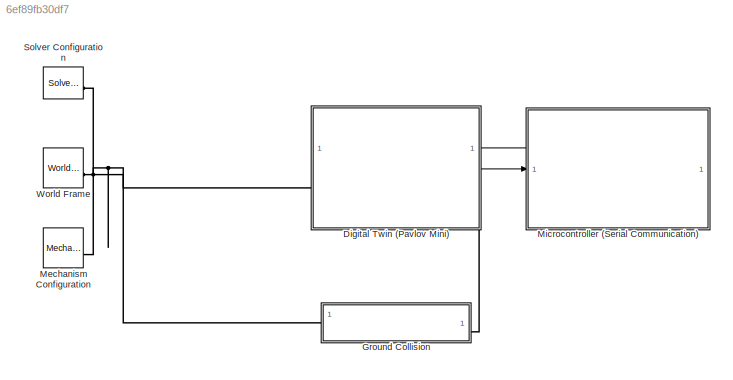
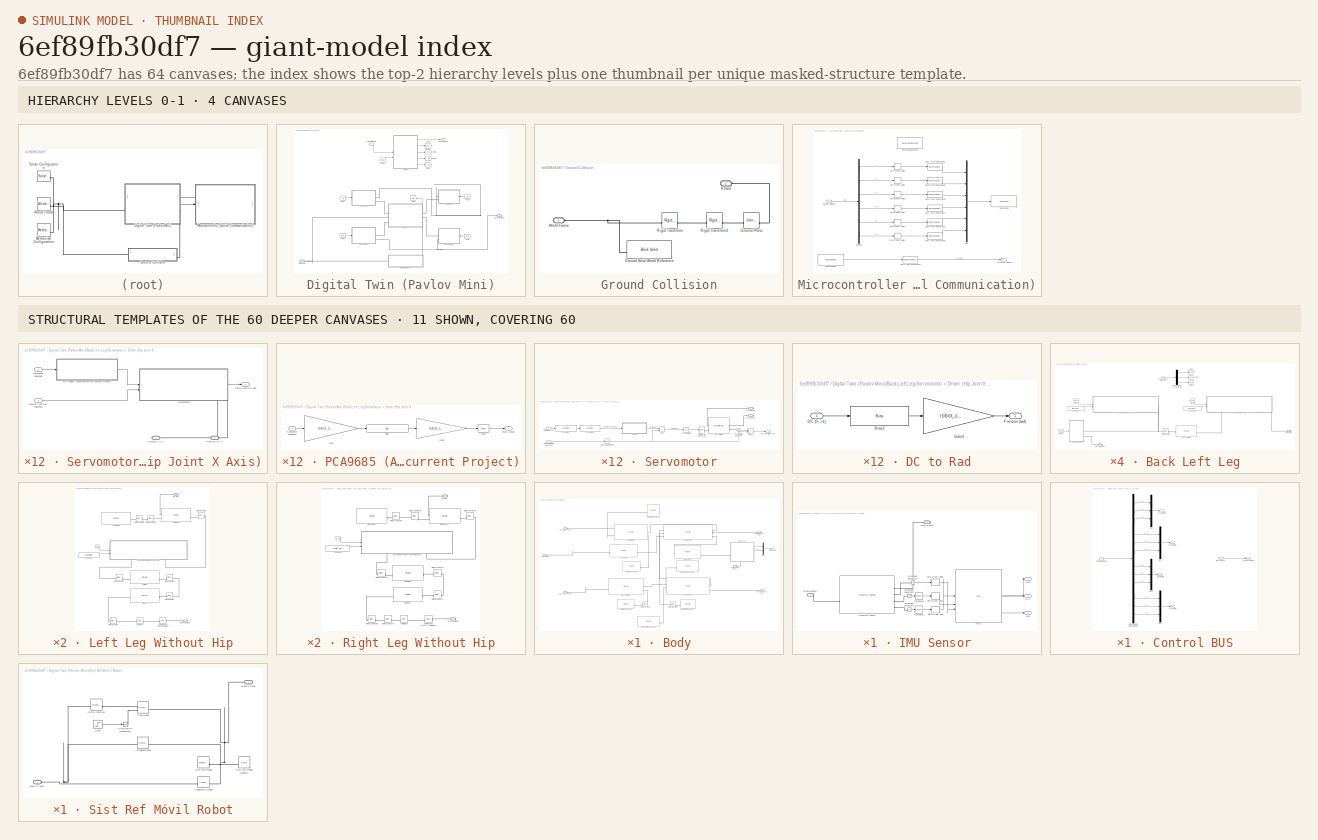
[diagram: thumbnail index - top-2 hierarchy levels (4 canvases) + 11 structural-template representatives of the remaining 60 canvases]
MODEL slx_6ef89fb30df7
KIND model
CONFIG AbsTol = 1e-3
CONFIG EnableMultiTasking = on
CONFIG FixedStep = auto
CONFIG MaxStep = auto
CONFIG MinStep = auto
CONFIG RelTol = 1e-3
CONFIG SampleTimeConstraint = Unconstrained
CONFIG SolverName = VariableStepAuto
CONFIG StartTime = 0.0
CONFIG StopTime = inf
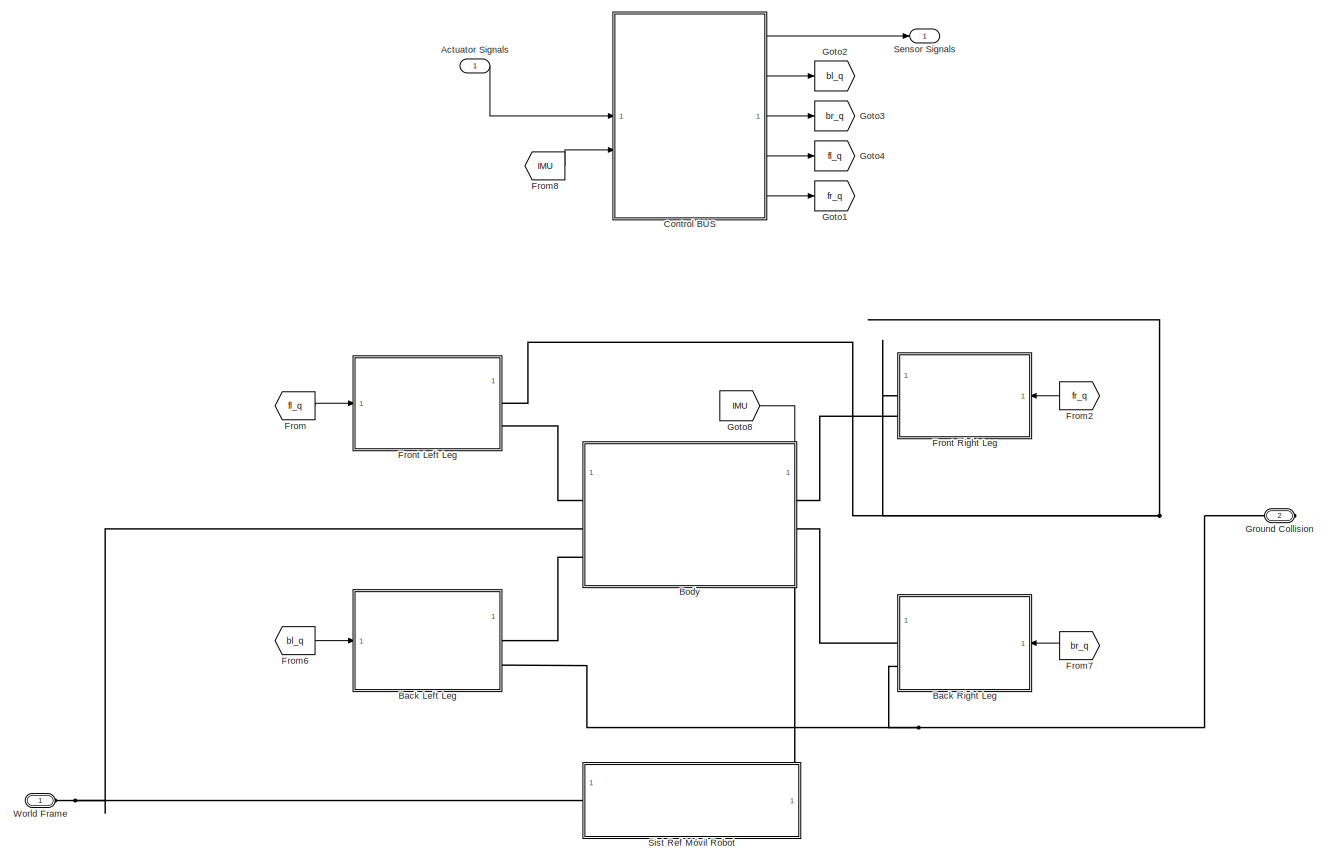
[diagram: Digital Twin (Pavlov Mini) - part 1/1, most of the canvas]
BLOCK [SubSystem] Digital Twin (Pavlov Mini)
  NameLocation = top
  PortSchema = {"entries":[{"content":{"sides":[{"content":{"connectorIds":["LConn1"]},"type":"ConnectorPlacement.EquallySpacedRectSide","uuid":"05b03349-4130-4204-a104-5e752405a26b"},{"content":{"connectorIds":["Out1","In1"],"side":"RIGHT"},"type":"ConnectorPlacement.EquallySpacedRectSide","uuid":"251716dd-6fa8-4388-bb8b-19a2f27396ac"},{"content":{"side":"TOP"},"type":"ConnectorPlacement.EquallySpacedRectSide",...<+383ch>
BLOCK [Inport] Digital Twin (Pavlov Mini)/Actuator Signals
BLOCK [SubSystem] Digital Twin (Pavlov Mini)/Back Left Leg
BLOCK [Reference] Digital Twin (Pavlov Mini)/Back Left Leg/Back Left Hip  REF=sm_lib/Body Elements/File Solid
  SourceBlock = sm_lib/Body Elements/File Solid
  SourceType = File Solid
BLOCK [Demux] Digital Twin (Pavlov Mini)/Back Left Leg/Back Left Leg Actuator Signals
  Outputs = 3
BLOCK [PMIOPort] Digital Twin (Pavlov Mini)/Back Left Leg/Body joint
  Side = Right
BLOCK [Constant] Digital Twin (Pavlov Mini)/Back Left Leg/Constant
  Value = robot_joints.q2_offset
BLOCK [Constant] Digital Twin (Pavlov Mini)/Back Left Leg/Constant2
  Value = robot_joints.q1_offset
BLOCK [From] Digital Twin (Pavlov Mini)/Back Left Leg/From1
  GotoTag = bl_q2
BLOCK [From] Digital Twin (Pavlov Mini)/Back Left Leg/From2
  GotoTag = bl_q3
BLOCK [From] Digital Twin (Pavlov Mini)/Back Left Leg/From3
  GotoTag = bl_q1
BLOCK [Goto] Digital Twin (Pavlov Mini)/Back Left Leg/Goto2
  GotoTag = bl_q1
BLOCK [Goto] Digital Twin (Pavlov Mini)/Back Left Leg/Goto3
  GotoTag = bl_q2
BLOCK [Goto] Digital Twin (Pavlov Mini)/Back Left Leg/Goto4
  GotoTag = bl_q3
BLOCK [PMIOPort] Digital Twin (Pavlov Mini)/Back Left Leg/Ground Collision
  Port = 2
  Side = Right
BLOCK [SubSystem] Digital Twin (Pavlov Mini)/Back Left Leg/Left Leg Without Hip
  NameLocation = top
BLOCK [Constant] Digital Twin (Pavlov Mini)/Back Left Leg/Left Leg Without Hip/Constant
  Value = robot_joints.q3_offset
BLOCK [PMIOPort] Digital Twin (Pavlov Mini)/Back Left Leg/Left Leg Without Hip/Ground Collision
  Port = 2
  Side = Right
BLOCK [PMIOPort] Digital Twin (Pavlov Mini)/Back Left Leg/Left Leg Without Hip/Hip_joint
  Side = Right
BLOCK [Reference] Digital Twin (Pavlov Mini)/Back Left Leg/Left Leg Without Hip/Left Femur A  REF=sm_lib/Body Elements/File Solid
  SourceBlock = sm_lib/Body Elements/File Solid
  SourceType = File Solid
BLOCK [Reference] Digital Twin (Pavlov Mini)/Back Left Leg/Left Leg Without Hip/Left Femur B  REF=sm_lib/Body Elements/File Solid
  SourceBlock = sm_lib/Body Elements/File Solid
  SourceType = File Solid
BLOCK [Reference] Digital Twin (Pavlov Mini)/Back Left Leg/Left Leg Without Hip/Left Foot  REF=sm_lib/Body Elements/File Solid
  SourceBlock = sm_lib/Body Elements/File Solid
  SourceType = File Solid
BLOCK [Reference] Digital Twin (Pavlov Mini)/Back Left Leg/Left Leg Without Hip/Left Tibia  REF=sm_lib/Body Elements/File Solid
  SourceBlock = sm_lib/Body Elements/File Solid
  SourceType = File Solid
BLOCK [Reference] Digital Twin (Pavlov Mini)/Back Left Leg/Left Leg Without Hip/Point Cloud  REF=sm_lib/Curves and Surfaces/Point Cloud
  SourceBlock = sm_lib/Curves and Surfaces/Point Cloud
  SourceType = Point Cloud
BLOCK [Reference] Digital Twin (Pavlov Mini)/Back Left Leg/Left Leg Without Hip/Rigid Transform  REF=sm_lib/Frames and
Transforms/Rigid
Transform
  SourceBlock = sm_lib/Frames and\nTransforms/Rigid\nTransform
  SourceType = Rigid\nTransform
BLOCK [Reference] Digital Twin (Pavlov Mini)/Back Left Leg/Left Leg Without Hip/Rigid Transform1  REF=sm_lib/Frames and
Transforms/Rigid
Transform
  SourceBlock = sm_lib/Frames and\nTransforms/Rigid\nTransform
  SourceType = Rigid\nTransform
BLOCK [Reference] Digital Twin (Pavlov Mini)/Back Left Leg/Left Leg Without Hip/Rigid Transform2  REF=sm_lib/Frames and
Transforms/Rigid
Transform
  SourceBlock = sm_lib/Frames and\nTransforms/Rigid\nTransform
  SourceType = Rigid\nTransform
BLOCK [Reference] Digital Twin (Pavlov Mini)/Back Left Leg/Left Leg Without Hip/Rigid Transform4  REF=sm_lib/Frames and
Transforms/Rigid
Transform
  SourceBlock = sm_lib/Frames and\nTransforms/Rigid\nTransform
  SourceType = Rigid\nTransform
BLOCK [Reference] Digital Twin (Pavlov Mini)/Back Left Leg/Left Leg Without Hip/Rigid Transform5  REF=sm_lib/Frames and
Transforms/Rigid
Transform
  SourceBlock = sm_lib/Frames and\nTransforms/Rigid\nTransform
  SourceType = Rigid\nTransform
BLOCK [Reference] Digital Twin (Pavlov Mini)/Back Left Leg/Left Leg Without Hip/Rigid Transform6  REF=sm_lib/Frames and
Transforms/Rigid
Transform
  SourceBlock = sm_lib/Frames and\nTransforms/Rigid\nTransform
  SourceType = Rigid\nTransform
BLOCK [Reference] Digital Twin (Pavlov Mini)/Back Left Leg/Left Leg Without Hip/Rigid Transform7  REF=sm_lib/Frames and
Transforms/Rigid
Transform
  SourceBlock = sm_lib/Frames and\nTransforms/Rigid\nTransform
  SourceType = Rigid\nTransform
BLOCK [SubSystem] Digital Twin (Pavlov Mini)/Back Left Leg/Left Leg Without Hip/Servomotor + Driver (Knee Joint Y Axis)
  PortSchema = {"entries":[{"content":{"sides":[{"content":{"connectorIds":["In1","In2"]},"type":"ConnectorPlacement.EquallySpacedRectSide","uuid":"34aed934-2639-4a00-aaee-cf3027466446"},{"content":{"connectorIds":["Out1"],"side":"RIGHT"},"type":"ConnectorPlacement.EquallySpacedRectSide","uuid":"6801890d-3466-4e37-90e8-6d1471e5b2c4"},{"content":{"side":"TOP"},"type":"ConnectorPlacement.EquallySpacedRectSide","uu...<+389ch>  <repeated x12 — deduplicated; at blocks: Servomotor + Driver (Knee Joint Y Axis), Servomotor + Driver (Hip Joint X Axis), Servomotor + Driver (Hip Joint Y Axis)>
BLOCK [Inport] Digital Twin (Pavlov Mini)/Back Left Leg/Left Leg Without Hip/Servomotor + Driver (Knee Joint Y Axis)/Neutral Position (degrees)
  Port = 2
BLOCK [SubSystem] Digital Twin (Pavlov Mini)/Back Left Leg/Left Leg Without Hip/Servomotor + Driver (Knee Joint Y Axis)/PCA9685 (Aproximation for current Project)
BLOCK [Bias] Digital Twin (Pavlov Mini)/Back Left Leg/Left Leg Without Hip/Servomotor + Driver (Knee Joint Y Axis)/PCA9685 (Aproximation for current Project)/Bias
  Bias = robot_conversions.steps_offset
  SaturateOnIntegerOverflow = off
BLOCK [Gain] Digital Twin (Pavlov Mini)/Back Left Leg/Left Leg Without Hip/Servomotor + Driver (Knee Joint Y Axis)/PCA9685 (Aproximation for current Project)/Gain
  Gain = robot_conversions.steps_to_degrees
BLOCK [Gain] Digital Twin (Pavlov Mini)/Back Left Leg/Left Leg Without Hip/Servomotor + Driver (Knee Joint Y Axis)/PCA9685 (Aproximation for current Project)/Gain1
  Gain = robot_conversions.degress_to_DC
BLOCK [Reference] Digital Twin (Pavlov Mini)/Back Left Leg/Left Leg Without Hip/Servomotor + Driver (Knee Joint Y Axis)/PCA9685 (Aproximation for current Project)/PWM  REF=simulink/Discontinuities/PWM
  DisableCoverage = on
  SourceBlock = simulink/Discontinuities/PWM
  SourceType = PWM
BLOCK [Outport] Digital Twin (Pavlov Mini)/Back Left Leg/Left Leg Without Hip/Servomotor + Driver (Knee Joint Y Axis)/PCA9685 (Aproximation for current Project)/PWM Output
  NameLocation = right
BLOCK [Inport] Digital Twin (Pavlov Mini)/Back Left Leg/Left Leg Without Hip/Servomotor + Driver (Knee Joint Y Axis)/PCA9685 (Aproximation for current Project)/Reference (degrees)
  NameLocation = left
BLOCK [PMIOPort] Digital Twin (Pavlov Mini)/Back Left Leg/Left Leg Without Hip/Servomotor + Driver (Knee Joint Y Axis)/Physical Art 1
  Side = Right
BLOCK [PMIOPort] Digital Twin (Pavlov Mini)/Back Left Leg/Left Leg Without Hip/Servomotor + Driver (Knee Joint Y Axis)/Physical Art 2
  Port = 2
  Side = Right
BLOCK [Inport] Digital Twin (Pavlov Mini)/Back Left Leg/Left Leg Without Hip/Servomotor + Driver (Knee Joint Y Axis)/Reference (degrees)
BLOCK [Outport] Digital Twin (Pavlov Mini)/Back Left Leg/Left Leg Without Hip/Servomotor + Driver (Knee Joint Y Axis)/Servo Position (rad)
BLOCK [SubSystem] Digital Twin (Pavlov Mini)/Back Left Leg/Left Leg Without Hip/Servomotor + Driver (Knee Joint Y Axis)/Servomotor
  PortSchema = {"entries":[{"content":{"sides":[{"content":{"connectorIds":["In1","In2"]},"type":"ConnectorPlacement.EquallySpacedRectSide","uuid":"eeff66d3-7cb0-4fe9-90b5-92935711e170"},{"content":{"connectorIds":["Out1"],"side":"RIGHT"},"type":"ConnectorPlacement.EquallySpacedRectSide","uuid":"4c1729b3-3224-4ed4-9eed-359312bd5e7e"},{"content":{"side":"TOP"},"type":"ConnectorPlacement.EquallySpacedRectSide","uu...<+389ch>  <repeated x12 — deduplicated; at blocks: Servomotor>
BLOCK [SubSystem] Digital Twin (Pavlov Mini)/Back Left Leg/Left Leg Without Hip/Servomotor + Driver (Knee Joint Y Axis)/Servomotor/DC to Rad
BLOCK [Bias] Digital Twin (Pavlov Mini)/Back Left Leg/Left Leg Without Hip/Servomotor + Driver (Knee Joint Y Axis)/Servomotor/DC to Rad/Bias2
  Bias = robot_conversions.DC_offset
  SaturateOnIntegerOverflow = off
BLOCK [Inport] Digital Twin (Pavlov Mini)/Back Left Leg/Left Leg Without Hip/Servomotor + Driver (Knee Joint Y Axis)/Servomotor/DC to Rad/DC (0 -->1)
BLOCK [Gain] Digital Twin (Pavlov Mini)/Back Left Leg/Left Leg Without Hip/Servomotor + Driver (Knee Joint Y Axis)/Servomotor/DC to Rad/Gain2
  Gain = robot_conversions.DC_to_rad
BLOCK [Outport] Digital Twin (Pavlov Mini)/Back Left Leg/Left Leg Without Hip/Servomotor + Driver (Knee Joint Y Axis)/Servomotor/DC to Rad/Position (rad)
BLOCK [Reference] Digital Twin (Pavlov Mini)/Back Left Leg/Left Leg Without Hip/Servomotor + Driver (Knee Joint Y Axis)/Servomotor/Degrees to Radians  REF=simulink_extras/Transformations/Degrees to
Radians
  SourceBlock = simulink_extras/Transformations/Degrees to\nRadians
  SourceType = DegreesToRadians
BLOCK [Reference] Digital Twin (Pavlov Mini)/Back Left Leg/Left Leg Without Hip/Servomotor + Driver (Knee Joint Y Axis)/Servomotor/LTI System  REF=cstblocks/LTI System
  SourceBlock = cstblocks/LTI System
  SourceType = LTI Block
BLOCK [Reference] Digital Twin (Pavlov Mini)/Back Left Leg/Left Leg Without Hip/Servomotor + Driver (Knee Joint Y Axis)/Servomotor/LTI System1  REF=cstblocks/LTI System
  SourceBlock = cstblocks/LTI System
  SourceType = LTI Block
BLOCK [Inport] Digital Twin (Pavlov Mini)/Back Left Leg/Left Leg Without Hip/Servomotor + Driver (Knee Joint Y Axis)/Servomotor/Neutral Position (degrees)
  NameLocation = left
  Port = 2
BLOCK [Reference] Digital Twin (Pavlov Mini)/Back Left Leg/Left Leg Without Hip/Servomotor + Driver (Knee Joint Y Axis)/Servomotor/PS-Simulink Converter  REF=nesl_utility/PS-Simulink
Converter
  SourceBlock = nesl_utility/PS-Simulink\nConverter
  SourceType = PS-Simulink\nConverter
BLOCK [Inport] Digital Twin (Pavlov Mini)/Back Left Leg/Left Leg Without Hip/Servomotor + Driver (Knee Joint Y Axis)/Servomotor/PWM Reference
  NameLocation = left
BLOCK [PMIOPort] Digital Twin (Pavlov Mini)/Back Left Leg/Left Leg Without Hip/Servomotor + Driver (Knee Joint Y Axis)/Servomotor/Physical Art 1
  Side = Right
BLOCK [PMIOPort] Digital Twin (Pavlov Mini)/Back Left Leg/Left Leg Without Hip/Servomotor + Driver (Knee Joint Y Axis)/Servomotor/Physical Art 2
  Port = 2
  Side = Right
BLOCK [Saturate] Digital Twin (Pavlov Mini)/Back Left Leg/Left Leg Without Hip/Servomotor + Driver (Knee Joint Y Axis)/Servomotor/Physical Limits
  LowerLimit = deg2rad(robot_joints.q3_offset+robot_joints.q_limits(1))
  UpperLimit = deg2rad(robot_joints.q3_offset+robot_joints.q_limits(2))
BLOCK [Sum] Digital Twin (Pavlov Mini)/Back Left Leg/Left Leg Without Hip/Servomotor + Driver (Knee Joint Y Axis)/Servomotor/Plus
  IconShape = rectangular
BLOCK [Sum] Digital Twin (Pavlov Mini)/Back Left Leg/Left Leg Without Hip/Servomotor + Driver (Knee Joint Y Axis)/Servomotor/Plus1
  IconShape = rectangular
  Inputs = +-
BLOCK [Outport] Digital Twin (Pavlov Mini)/Back Left Leg/Left Leg Without Hip/Servomotor + Driver (Knee Joint Y Axis)/Servomotor/Servo Position (rad)
  NameLocation = right
BLOCK [Reference] Digital Twin (Pavlov Mini)/Back Left Leg/Left Leg Without Hip/Servomotor + Driver (Knee Joint Y Axis)/Servomotor/Servomotor  REF=sm_lib/Joints/Revolute Joint
  SourceBlock = sm_lib/Joints/Revolute Joint
  SourceType = Revolute Joint
BLOCK [Reference] Digital Twin (Pavlov Mini)/Back Left Leg/Left Leg Without Hip/Servomotor + Driver (Knee Joint Y Axis)/Servomotor/Simulink-PS Converter  REF=nesl_utility/Simulink-PS
Converter
  SourceBlock = nesl_utility/Simulink-PS\nConverter
  SourceType = Simulink-PS\nConverter
BLOCK [Reference] Digital Twin (Pavlov Mini)/Back Left Leg/Left Leg Without Hip/Spatial Contact Force - Spring & Damper  REF=sm_lib/Forces and
Torques/Spatial
Contact Force
  SourceBlock = sm_lib/Forces and\nTorques/Spatial\nContact Force
  SourceType = Spatial\nContact Force
BLOCK [Inport] Digital Twin (Pavlov Mini)/Back Left Leg/Left Leg Without Hip/bl_q3
BLOCK [Reference] Digital Twin (Pavlov Mini)/Back Left Leg/Rigid Transform  REF=sm_lib/Frames and
Transforms/Rigid
Transform
  SourceBlock = sm_lib/Frames and\nTransforms/Rigid\nTransform
  SourceType = Rigid\nTransform
BLOCK [Inport] Digital Twin (Pavlov Mini)/Back Left Leg/Servo Actuator Signals
BLOCK [SubSystem] Digital Twin (Pavlov Mini)/Back Left Leg/Servomotor + Driver (Hip Joint X Axis)
BLOCK [Inport] Digital Twin (Pavlov Mini)/Back Left Leg/Servomotor + Driver (Hip Joint X Axis)/Neutral Position (degrees)
  Port = 2
BLOCK [SubSystem] Digital Twin (Pavlov Mini)/Back Left Leg/Servomotor + Driver (Hip Joint X Axis)/PCA9685 (Aproximation for current Project)
BLOCK [Bias] Digital Twin (Pavlov Mini)/Back Left Leg/Servomotor + Driver (Hip Joint X Axis)/PCA9685 (Aproximation for current Project)/Bias
  Bias = robot_conversions.steps_offset
  SaturateOnIntegerOverflow = off
BLOCK [Gain] Digital Twin (Pavlov Mini)/Back Left Leg/Servomotor + Driver (Hip Joint X Axis)/PCA9685 (Aproximation for current Project)/Gain
  Gain = robot_conversions.steps_to_degrees
BLOCK [Gain] Digital Twin (Pavlov Mini)/Back Left Leg/Servomotor + Driver (Hip Joint X Axis)/PCA9685 (Aproximation for current Project)/Gain1
  Gain = robot_conversions.degress_to_DC
BLOCK [Reference] Digital Twin (Pavlov Mini)/Back Left Leg/Servomotor + Driver (Hip Joint X Axis)/PCA9685 (Aproximation for current Project)/PWM  REF=simulink/Discontinuities/PWM
  DisableCoverage = on
  SourceBlock = simulink/Discontinuities/PWM
  SourceType = PWM
BLOCK [Outport] Digital Twin (Pavlov Mini)/Back Left Leg/Servomotor + Driver (Hip Joint X Axis)/PCA9685 (Aproximation for current Project)/PWM Output
  NameLocation = right
BLOCK [Inport] Digital Twin (Pavlov Mini)/Back Left Leg/Servomotor + Driver (Hip Joint X Axis)/PCA9685 (Aproximation for current Project)/Reference (degrees)
  NameLocation = left
BLOCK [PMIOPort] Digital Twin (Pavlov Mini)/Back Left Leg/Servomotor + Driver (Hip Joint X Axis)/Physical Art 1
  Side = Right
BLOCK [PMIOPort] Digital Twin (Pavlov Mini)/Back Left Leg/Servomotor + Driver (Hip Joint X Axis)/Physical Art 2
  Port = 2
  Side = Right
BLOCK [Inport] Digital Twin (Pavlov Mini)/Back Left Leg/Servomotor + Driver (Hip Joint X Axis)/Reference (degrees)
BLOCK [Outport] Digital Twin (Pavlov Mini)/Back Left Leg/Servomotor + Driver (Hip Joint X Axis)/Servo Position (rad)
BLOCK [SubSystem] Digital Twin (Pavlov Mini)/Back Left Leg/Servomotor + Driver (Hip Joint X Axis)/Servomotor
BLOCK [SubSystem] Digital Twin (Pavlov Mini)/Back Left Leg/Servomotor + Driver (Hip Joint X Axis)/Servomotor/DC to Rad
BLOCK [Bias] Digital Twin (Pavlov Mini)/Back Left Leg/Servomotor + Driver (Hip Joint X Axis)/Servomotor/DC to Rad/Bias2
  Bias = robot_conversions.DC_offset
  SaturateOnIntegerOverflow = off
BLOCK [Inport] Digital Twin (Pavlov Mini)/Back Left Leg/Servomotor + Driver (Hip Joint X Axis)/Servomotor/DC to Rad/DC (0 -->1)
BLOCK [Gain] Digital Twin (Pavlov Mini)/Back Left Leg/Servomotor + Driver (Hip Joint X Axis)/Servomotor/DC to Rad/Gain2
  Gain = robot_conversions.DC_to_rad
BLOCK [Outport] Digital Twin (Pavlov Mini)/Back Left Leg/Servomotor + Driver (Hip Joint X Axis)/Servomotor/DC to Rad/Position (rad)
BLOCK [Reference] Digital Twin (Pavlov Mini)/Back Left Leg/Servomotor + Driver (Hip Joint X Axis)/Servomotor/Degrees to Radians  REF=simulink_extras/Transformations/Degrees to
Radians
  SourceBlock = simulink_extras/Transformations/Degrees to\nRadians
  SourceType = DegreesToRadians
BLOCK [Reference] Digital Twin (Pavlov Mini)/Back Left Leg/Servomotor + Driver (Hip Joint X Axis)/Servomotor/LTI System  REF=cstblocks/LTI System
  SourceBlock = cstblocks/LTI System
  SourceType = LTI Block
BLOCK [Reference] Digital Twin (Pavlov Mini)/Back Left Leg/Servomotor + Driver (Hip Joint X Axis)/Servomotor/LTI System1  REF=cstblocks/LTI System
  SourceBlock = cstblocks/LTI System
  SourceType = LTI Block
BLOCK [Inport] Digital Twin (Pavlov Mini)/Back Left Leg/Servomotor + Driver (Hip Joint X Axis)/Servomotor/Neutral Position (degrees)
  NameLocation = left
  Port = 2
BLOCK [Reference] Digital Twin (Pavlov Mini)/Back Left Leg/Servomotor + Driver (Hip Joint X Axis)/Servomotor/PS-Simulink Converter  REF=nesl_utility/PS-Simulink
Converter
  SourceBlock = nesl_utility/PS-Simulink\nConverter
  SourceType = PS-Simulink\nConverter
BLOCK [Inport] Digital Twin (Pavlov Mini)/Back Left Leg/Servomotor + Driver (Hip Joint X Axis)/Servomotor/PWM Reference
  NameLocation = left
BLOCK [PMIOPort] Digital Twin (Pavlov Mini)/Back Left Leg/Servomotor + Driver (Hip Joint X Axis)/Servomotor/Physical Art 1
  Side = Right
BLOCK [PMIOPort] Digital Twin (Pavlov Mini)/Back Left Leg/Servomotor + Driver (Hip Joint X Axis)/Servomotor/Physical Art 2
  Port = 2
  Side = Right
BLOCK [Saturate] Digital Twin (Pavlov Mini)/Back Left Leg/Servomotor + Driver (Hip Joint X Axis)/Servomotor/Physical Limits
  LowerLimit = deg2rad(robot_joints.q1_offset+robot_joints.q_limits(1))
  UpperLimit = deg2rad(robot_joints.q1_offset+robot_joints.q_limits(2))
BLOCK [Sum] Digital Twin (Pavlov Mini)/Back Left Leg/Servomotor + Driver (Hip Joint X Axis)/Servomotor/Plus
  IconShape = rectangular
BLOCK [Sum] Digital Twin (Pavlov Mini)/Back Left Leg/Servomotor + Driver (Hip Joint X Axis)/Servomotor/Plus1
  IconShape = rectangular
  Inputs = +-
BLOCK [Outport] Digital Twin (Pavlov Mini)/Back Left Leg/Servomotor + Driver (Hip Joint X Axis)/Servomotor/Servo Position (rad)
  NameLocation = right
BLOCK [Reference] Digital Twin (Pavlov Mini)/Back Left Leg/Servomotor + Driver (Hip Joint X Axis)/Servomotor/Servomotor  REF=sm_lib/Joints/Revolute Joint
  SourceBlock = sm_lib/Joints/Revolute Joint
  SourceType = Revolute Joint
BLOCK [Reference] Digital Twin (Pavlov Mini)/Back Left Leg/Servomotor + Driver (Hip Joint X Axis)/Servomotor/Simulink-PS Converter  REF=nesl_utility/Simulink-PS
Converter
  SourceBlock = nesl_utility/Simulink-PS\nConverter
  SourceType = Simulink-PS\nConverter
BLOCK [SubSystem] Digital Twin (Pavlov Mini)/Back Left Leg/Servomotor + Driver (Hip Joint Y Axis)
BLOCK [Inport] Digital Twin (Pavlov Mini)/Back Left Leg/Servomotor + Driver (Hip Joint Y Axis)/Neutral Position (degrees)
  Port = 2
BLOCK [SubSystem] Digital Twin (Pavlov Mini)/Back Left Leg/Servomotor + Driver (Hip Joint Y Axis)/PCA9685 (Aproximation for current Project)
BLOCK [Bias] Digital Twin (Pavlov Mini)/Back Left Leg/Servomotor + Driver (Hip Joint Y Axis)/PCA9685 (Aproximation for current Project)/Bias
  Bias = robot_conversions.steps_offset
  SaturateOnIntegerOverflow = off
BLOCK [Gain] Digital Twin (Pavlov Mini)/Back Left Leg/Servomotor + Driver (Hip Joint Y Axis)/PCA9685 (Aproximation for current Project)/Gain
  Gain = robot_conversions.steps_to_degrees
BLOCK [Gain] Digital Twin (Pavlov Mini)/Back Left Leg/Servomotor + Driver (Hip Joint Y Axis)/PCA9685 (Aproximation for current Project)/Gain1
  Gain = robot_conversions.degress_to_DC
BLOCK [Reference] Digital Twin (Pavlov Mini)/Back Left Leg/Servomotor + Driver (Hip Joint Y Axis)/PCA9685 (Aproximation for current Project)/PWM  REF=simulink/Discontinuities/PWM
  DisableCoverage = on
  SourceBlock = simulink/Discontinuities/PWM
  SourceType = PWM
BLOCK [Outport] Digital Twin (Pavlov Mini)/Back Left Leg/Servomotor + Driver (Hip Joint Y Axis)/PCA9685 (Aproximation for current Project)/PWM Output
  NameLocation = right
BLOCK [Inport] Digital Twin (Pavlov Mini)/Back Left Leg/Servomotor + Driver (Hip Joint Y Axis)/PCA9685 (Aproximation for current Project)/Reference (degrees)
  NameLocation = left
BLOCK [PMIOPort] Digital Twin (Pavlov Mini)/Back Left Leg/Servomotor + Driver (Hip Joint Y Axis)/Physical Art 1
  Side = Right
BLOCK [PMIOPort] Digital Twin (Pavlov Mini)/Back Left Leg/Servomotor + Driver (Hip Joint Y Axis)/Physical Art 2
  Port = 2
  Side = Right
BLOCK [Inport] Digital Twin (Pavlov Mini)/Back Left Leg/Servomotor + Driver (Hip Joint Y Axis)/Reference (degrees)
BLOCK [Outport] Digital Twin (Pavlov Mini)/Back Left Leg/Servomotor + Driver (Hip Joint Y Axis)/Servo Position (rad)
BLOCK [SubSystem] Digital Twin (Pavlov Mini)/Back Left Leg/Servomotor + Driver (Hip Joint Y Axis)/Servomotor
BLOCK [SubSystem] Digital Twin (Pavlov Mini)/Back Left Leg/Servomotor + Driver (Hip Joint Y Axis)/Servomotor/DC to Rad
BLOCK [Bias] Digital Twin (Pavlov Mini)/Back Left Leg/Servomotor + Driver (Hip Joint Y Axis)/Servomotor/DC to Rad/Bias2
  Bias = robot_conversions.DC_offset
  SaturateOnIntegerOverflow = off
BLOCK [Inport] Digital Twin (Pavlov Mini)/Back Left Leg/Servomotor + Driver (Hip Joint Y Axis)/Servomotor/DC to Rad/DC (0 -->1)
BLOCK [Gain] Digital Twin (Pavlov Mini)/Back Left Leg/Servomotor + Driver (Hip Joint Y Axis)/Servomotor/DC to Rad/Gain2
  Gain = robot_conversions.DC_to_rad
BLOCK [Outport] Digital Twin (Pavlov Mini)/Back Left Leg/Servomotor + Driver (Hip Joint Y Axis)/Servomotor/DC to Rad/Position (rad)
BLOCK [Reference] Digital Twin (Pavlov Mini)/Back Left Leg/Servomotor + Driver (Hip Joint Y Axis)/Servomotor/Degrees to Radians  REF=simulink_extras/Transformations/Degrees to
Radians
  SourceBlock = simulink_extras/Transformations/Degrees to\nRadians
  SourceType = DegreesToRadians
BLOCK [Reference] Digital Twin (Pavlov Mini)/Back Left Leg/Servomotor + Driver (Hip Joint Y Axis)/Servomotor/LTI System  REF=cstblocks/LTI System
  SourceBlock = cstblocks/LTI System
  SourceType = LTI Block
BLOCK [Reference] Digital Twin (Pavlov Mini)/Back Left Leg/Servomotor + Driver (Hip Joint Y Axis)/Servomotor/LTI System1  REF=cstblocks/LTI System
  SourceBlock = cstblocks/LTI System
  SourceType = LTI Block
BLOCK [Inport] Digital Twin (Pavlov Mini)/Back Left Leg/Servomotor + Driver (Hip Joint Y Axis)/Servomotor/Neutral Position (degrees)
  NameLocation = left
  Port = 2
BLOCK [Reference] Digital Twin (Pavlov Mini)/Back Left Leg/Servomotor + Driver (Hip Joint Y Axis)/Servomotor/PS-Simulink Converter  REF=nesl_utility/PS-Simulink
Converter
  SourceBlock = nesl_utility/PS-Simulink\nConverter
  SourceType = PS-Simulink\nConverter
BLOCK [Inport] Digital Twin (Pavlov Mini)/Back Left Leg/Servomotor + Driver (Hip Joint Y Axis)/Servomotor/PWM Reference
  NameLocation = left
BLOCK [PMIOPort] Digital Twin (Pavlov Mini)/Back Left Leg/Servomotor + Driver (Hip Joint Y Axis)/Servomotor/Physical Art 1
  Side = Right
BLOCK [PMIOPort] Digital Twin (Pavlov Mini)/Back Left Leg/Servomotor + Driver (Hip Joint Y Axis)/Servomotor/Physical Art 2
  Port = 2
  Side = Right
BLOCK [Saturate] Digital Twin (Pavlov Mini)/Back Left Leg/Servomotor + Driver (Hip Joint Y Axis)/Servomotor/Physical Limits
  LowerLimit = deg2rad(robot_joints.q2_offset+robot_joints.q_limits(1))
  UpperLimit = deg2rad(robot_joints.q2_offset+robot_joints.q_limits(2))
BLOCK [Sum] Digital Twin (Pavlov Mini)/Back Left Leg/Servomotor + Driver (Hip Joint Y Axis)/Servomotor/Plus
  IconShape = rectangular
BLOCK [Sum] Digital Twin (Pavlov Mini)/Back Left Leg/Servomotor + Driver (Hip Joint Y Axis)/Servomotor/Plus1
  IconShape = rectangular
  Inputs = +-
BLOCK [Outport] Digital Twin (Pavlov Mini)/Back Left Leg/Servomotor + Driver (Hip Joint Y Axis)/Servomotor/Servo Position (rad)
  NameLocation = right
BLOCK [Reference] Digital Twin (Pavlov Mini)/Back Left Leg/Servomotor + Driver (Hip Joint Y Axis)/Servomotor/Servomotor  REF=sm_lib/Joints/Revolute Joint
  SourceBlock = sm_lib/Joints/Revolute Joint
  SourceType = Revolute Joint
BLOCK [Reference] Digital Twin (Pavlov Mini)/Back Left Leg/Servomotor + Driver (Hip Joint Y Axis)/Servomotor/Simulink-PS Converter  REF=nesl_utility/Simulink-PS
Converter
  SourceBlock = nesl_utility/Simulink-PS\nConverter
  SourceType = Simulink-PS\nConverter
BLOCK [SubSystem] Digital Twin (Pavlov Mini)/Back Right Leg
BLOCK [Reference] Digital Twin (Pavlov Mini)/Back Right Leg/Back Right Hip  REF=sm_lib/Body Elements/File Solid
  SourceBlock = sm_lib/Body Elements/File Solid
  SourceType = File Solid
BLOCK [Demux] Digital Twin (Pavlov Mini)/Back Right Leg/Back Right Leg Actuator Signals
  Outputs = 3
BLOCK [PMIOPort] Digital Twin (Pavlov Mini)/Back Right Leg/Body joint
  Side = Right
BLOCK [Constant] Digital Twin (Pavlov Mini)/Back Right Leg/Constant1
  Value = -robot_joints.q2_offset
BLOCK [Constant] Digital Twin (Pavlov Mini)/Back Right Leg/Constant2
  Value = -robot_joints.q1_offset
BLOCK [From] Digital Twin (Pavlov Mini)/Back Right Leg/From1
  GotoTag = br_q2
BLOCK [From] Digital Twin (Pavlov Mini)/Back Right Leg/From2
  GotoTag = br_q3
BLOCK [From] Digital Twin (Pavlov Mini)/Back Right Leg/From3
  GotoTag = br_q1
BLOCK [Goto] Digital Twin (Pavlov Mini)/Back Right Leg/Goto2
  GotoTag = br_q1
BLOCK [Goto] Digital Twin (Pavlov Mini)/Back Right Leg/Goto3
  GotoTag = br_q2
BLOCK [Goto] Digital Twin (Pavlov Mini)/Back Right Leg/Goto4
  GotoTag = br_q3
BLOCK [PMIOPort] Digital Twin (Pavlov Mini)/Back Right Leg/Ground Collision
  Port = 2
  Side = Right
BLOCK [SubSystem] Digital Twin (Pavlov Mini)/Back Right Leg/Right Leg Without Hip
BLOCK [Constant] Digital Twin (Pavlov Mini)/Back Right Leg/Right Leg Without Hip/Constant1
  Value = -robot_joints.q3_offset
BLOCK [PMIOPort] Digital Twin (Pavlov Mini)/Back Right Leg/Right Leg Without Hip/Ground Collision
  Port = 2
  Side = Right
BLOCK [PMIOPort] Digital Twin (Pavlov Mini)/Back Right Leg/Right Leg Without Hip/Hip_joint
  Side = Right
BLOCK [Reference] Digital Twin (Pavlov Mini)/Back Right Leg/Right Leg Without Hip/Point Cloud  REF=sm_lib/Curves and Surfaces/Point Cloud
  SourceBlock = sm_lib/Curves and Surfaces/Point Cloud
  SourceType = Point Cloud
BLOCK [Reference] Digital Twin (Pavlov Mini)/Back Right Leg/Right Leg Without Hip/Right Femur A  REF=sm_lib/Body Elements/File Solid
  SourceBlock = sm_lib/Body Elements/File Solid
  SourceType = File Solid
BLOCK [Reference] Digital Twin (Pavlov Mini)/Back Right Leg/Right Leg Without Hip/Right Femur B  REF=sm_lib/Body Elements/File Solid
  SourceBlock = sm_lib/Body Elements/File Solid
  SourceType = File Solid
BLOCK [Reference] Digital Twin (Pavlov Mini)/Back Right Leg/Right Leg Without Hip/Right Foot  REF=sm_lib/Body Elements/File Solid
  SourceBlock = sm_lib/Body Elements/File Solid
  SourceType = File Solid
BLOCK [Reference] Digital Twin (Pavlov Mini)/Back Right Leg/Right Leg Without Hip/Right Tibia  REF=sm_lib/Body Elements/File Solid
  SourceBlock = sm_lib/Body Elements/File Solid
  SourceType = File Solid
BLOCK [Reference] Digital Twin (Pavlov Mini)/Back Right Leg/Right Leg Without Hip/Rigid Transform  REF=sm_lib/Frames and
Transforms/Rigid
Transform
  SourceBlock = sm_lib/Frames and\nTransforms/Rigid\nTransform
  SourceType = Rigid\nTransform
BLOCK [Reference] Digital Twin (Pavlov Mini)/Back Right Leg/Right Leg Without Hip/Rigid Transform1  REF=sm_lib/Frames and
Transforms/Rigid
Transform
  SourceBlock = sm_lib/Frames and\nTransforms/Rigid\nTransform
  SourceType = Rigid\nTransform
BLOCK [Reference] Digital Twin (Pavlov Mini)/Back Right Leg/Right Leg Without Hip/Rigid Transform2  REF=sm_lib/Frames and
Transforms/Rigid
Transform
  SourceBlock = sm_lib/Frames and\nTransforms/Rigid\nTransform
  SourceType = Rigid\nTransform
BLOCK [Reference] Digital Twin (Pavlov Mini)/Back Right Leg/Right Leg Without Hip/Rigid Transform4  REF=sm_lib/Frames and
Transforms/Rigid
Transform
  SourceBlock = sm_lib/Frames and\nTransforms/Rigid\nTransform
  SourceType = Rigid\nTransform
BLOCK [Reference] Digital Twin (Pavlov Mini)/Back Right Leg/Right Leg Without Hip/Rigid Transform5  REF=sm_lib/Frames and
Transforms/Rigid
Transform
  SourceBlock = sm_lib/Frames and\nTransforms/Rigid\nTransform
  SourceType = Rigid\nTransform
BLOCK [Reference] Digital Twin (Pavlov Mini)/Back Right Leg/Right Leg Without Hip/Rigid Transform6  REF=sm_lib/Frames and
Transforms/Rigid
Transform
  NameLocation = right
  SourceBlock = sm_lib/Frames and\nTransforms/Rigid\nTransform
  SourceType = Rigid\nTransform
BLOCK [Reference] Digital Twin (Pavlov Mini)/Back Right Leg/Right Leg Without Hip/Rigid Transform7  REF=sm_lib/Frames and
Transforms/Rigid
Transform
  SourceBlock = sm_lib/Frames and\nTransforms/Rigid\nTransform
  SourceType = Rigid\nTransform
BLOCK [Reference] Digital Twin (Pavlov Mini)/Back Right Leg/Right Leg Without Hip/Rigid Transform8  REF=sm_lib/Frames and
Transforms/Rigid
Transform
  SourceBlock = sm_lib/Frames and\nTransforms/Rigid\nTransform
  SourceType = Rigid\nTransform
BLOCK [SubSystem] Digital Twin (Pavlov Mini)/Back Right Leg/Right Leg Without Hip/Servomotor + Driver (Knee Joint Y Axis)
BLOCK [Inport] Digital Twin (Pavlov Mini)/Back Right Leg/Right Leg Without Hip/Servomotor + Driver (Knee Joint Y Axis)/Neutral Position (degrees)
  Port = 2
BLOCK [SubSystem] Digital Twin (Pavlov Mini)/Back Right Leg/Right Leg Without Hip/Servomotor + Driver (Knee Joint Y Axis)/PCA9685 (Aproximation for current Project)
BLOCK [Bias] Digital Twin (Pavlov Mini)/Back Right Leg/Right Leg Without Hip/Servomotor + Driver (Knee Joint Y Axis)/PCA9685 (Aproximation for current Project)/Bias
  Bias = robot_conversions.steps_offset
  SaturateOnIntegerOverflow = off
BLOCK [Gain] Digital Twin (Pavlov Mini)/Back Right Leg/Right Leg Without Hip/Servomotor + Driver (Knee Joint Y Axis)/PCA9685 (Aproximation for current Project)/Gain
  Gain = robot_conversions.steps_to_degrees
BLOCK [Gain] Digital Twin (Pavlov Mini)/Back Right Leg/Right Leg Without Hip/Servomotor + Driver (Knee Joint Y Axis)/PCA9685 (Aproximation for current Project)/Gain1
  Gain = robot_conversions.degress_to_DC
BLOCK [Reference] Digital Twin (Pavlov Mini)/Back Right Leg/Right Leg Without Hip/Servomotor + Driver (Knee Joint Y Axis)/PCA9685 (Aproximation for current Project)/PWM  REF=simulink/Discontinuities/PWM
  DisableCoverage = on
  SourceBlock = simulink/Discontinuities/PWM
  SourceType = PWM
BLOCK [Outport] Digital Twin (Pavlov Mini)/Back Right Leg/Right Leg Without Hip/Servomotor + Driver (Knee Joint Y Axis)/PCA9685 (Aproximation for current Project)/PWM Output
  NameLocation = right
BLOCK [Inport] Digital Twin (Pavlov Mini)/Back Right Leg/Right Leg Without Hip/Servomotor + Driver (Knee Joint Y Axis)/PCA9685 (Aproximation for current Project)/Reference (degrees)
  NameLocation = left
BLOCK [PMIOPort] Digital Twin (Pavlov Mini)/Back Right Leg/Right Leg Without Hip/Servomotor + Driver (Knee Joint Y Axis)/Physical Art 1
  Side = Right
BLOCK [PMIOPort] Digital Twin (Pavlov Mini)/Back Right Leg/Right Leg Without Hip/Servomotor + Driver (Knee Joint Y Axis)/Physical Art 2
  Port = 2
  Side = Right
BLOCK [Inport] Digital Twin (Pavlov Mini)/Back Right Leg/Right Leg Without Hip/Servomotor + Driver (Knee Joint Y Axis)/Reference (degrees)
BLOCK [Outport] Digital Twin (Pavlov Mini)/Back Right Leg/Right Leg Without Hip/Servomotor + Driver (Knee Joint Y Axis)/Servo Position (rad)
BLOCK [SubSystem] Digital Twin (Pavlov Mini)/Back Right Leg/Right Leg Without Hip/Servomotor + Driver (Knee Joint Y Axis)/Servomotor
BLOCK [SubSystem] Digital Twin (Pavlov Mini)/Back Right Leg/Right Leg Without Hip/Servomotor + Driver (Knee Joint Y Axis)/Servomotor/DC to Rad
BLOCK [Bias] Digital Twin (Pavlov Mini)/Back Right Leg/Right Leg Without Hip/Servomotor + Driver (Knee Joint Y Axis)/Servomotor/DC to Rad/Bias2
  Bias = robot_conversions.DC_offset
  SaturateOnIntegerOverflow = off
BLOCK [Inport] Digital Twin (Pavlov Mini)/Back Right Leg/Right Leg Without Hip/Servomotor + Driver (Knee Joint Y Axis)/Servomotor/DC to Rad/DC (0 -->1)
BLOCK [Gain] Digital Twin (Pavlov Mini)/Back Right Leg/Right Leg Without Hip/Servomotor + Driver (Knee Joint Y Axis)/Servomotor/DC to Rad/Gain2
  Gain = robot_conversions.DC_to_rad
BLOCK [Outport] Digital Twin (Pavlov Mini)/Back Right Leg/Right Leg Without Hip/Servomotor + Driver (Knee Joint Y Axis)/Servomotor/DC to Rad/Position (rad)
BLOCK [Reference] Digital Twin (Pavlov Mini)/Back Right Leg/Right Leg Without Hip/Servomotor + Driver (Knee Joint Y Axis)/Servomotor/Degrees to Radians  REF=simulink_extras/Transformations/Degrees to
Radians
  SourceBlock = simulink_extras/Transformations/Degrees to\nRadians
  SourceType = DegreesToRadians
BLOCK [Reference] Digital Twin (Pavlov Mini)/Back Right Leg/Right Leg Without Hip/Servomotor + Driver (Knee Joint Y Axis)/Servomotor/LTI System  REF=cstblocks/LTI System
  SourceBlock = cstblocks/LTI System
  SourceType = LTI Block
BLOCK [Reference] Digital Twin (Pavlov Mini)/Back Right Leg/Right Leg Without Hip/Servomotor + Driver (Knee Joint Y Axis)/Servomotor/LTI System1  REF=cstblocks/LTI System
  SourceBlock = cstblocks/LTI System
  SourceType = LTI Block
BLOCK [Inport] Digital Twin (Pavlov Mini)/Back Right Leg/Right Leg Without Hip/Servomotor + Driver (Knee Joint Y Axis)/Servomotor/Neutral Position (degrees)
  NameLocation = left
  Port = 2
BLOCK [Reference] Digital Twin (Pavlov Mini)/Back Right Leg/Right Leg Without Hip/Servomotor + Driver (Knee Joint Y Axis)/Servomotor/PS-Simulink Converter  REF=nesl_utility/PS-Simulink
Converter
  SourceBlock = nesl_utility/PS-Simulink\nConverter
  SourceType = PS-Simulink\nConverter
BLOCK [Inport] Digital Twin (Pavlov Mini)/Back Right Leg/Right Leg Without Hip/Servomotor + Driver (Knee Joint Y Axis)/Servomotor/PWM Reference
  NameLocation = left
BLOCK [PMIOPort] Digital Twin (Pavlov Mini)/Back Right Leg/Right Leg Without Hip/Servomotor + Driver (Knee Joint Y Axis)/Servomotor/Physical Art 1
  Side = Right
BLOCK [PMIOPort] Digital Twin (Pavlov Mini)/Back Right Leg/Right Leg Without Hip/Servomotor + Driver (Knee Joint Y Axis)/Servomotor/Physical Art 2
  Port = 2
  Side = Right
BLOCK [Saturate] Digital Twin (Pavlov Mini)/Back Right Leg/Right Leg Without Hip/Servomotor + Driver (Knee Joint Y Axis)/Servomotor/Physical Limits
  LowerLimit = deg2rad(-robot_joints.q3_offset+robot_joints.q_limits(1))
  UpperLimit = deg2rad(-robot_joints.q3_offset+robot_joints.q_limits(2))
BLOCK [Sum] Digital Twin (Pavlov Mini)/Back Right Leg/Right Leg Without Hip/Servomotor + Driver (Knee Joint Y Axis)/Servomotor/Plus
  IconShape = rectangular
BLOCK [Sum] Digital Twin (Pavlov Mini)/Back Right Leg/Right Leg Without Hip/Servomotor + Driver (Knee Joint Y Axis)/Servomotor/Plus1
  IconShape = rectangular
  Inputs = +-
BLOCK [Outport] Digital Twin (Pavlov Mini)/Back Right Leg/Right Leg Without Hip/Servomotor + Driver (Knee Joint Y Axis)/Servomotor/Servo Position (rad)
  NameLocation = right
BLOCK [Reference] Digital Twin (Pavlov Mini)/Back Right Leg/Right Leg Without Hip/Servomotor + Driver (Knee Joint Y Axis)/Servomotor/Servomotor  REF=sm_lib/Joints/Revolute Joint
  SourceBlock = sm_lib/Joints/Revolute Joint
  SourceType = Revolute Joint
BLOCK [Reference] Digital Twin (Pavlov Mini)/Back Right Leg/Right Leg Without Hip/Servomotor + Driver (Knee Joint Y Axis)/Servomotor/Simulink-PS Converter  REF=nesl_utility/Simulink-PS
Converter
  SourceBlock = nesl_utility/Simulink-PS\nConverter
  SourceType = Simulink-PS\nConverter
BLOCK [Reference] Digital Twin (Pavlov Mini)/Back Right Leg/Right Leg Without Hip/Spatial Contact Force - Spring & Damper  REF=sm_lib/Forces and
Torques/Spatial
Contact Force
  SourceBlock = sm_lib/Forces and\nTorques/Spatial\nContact Force
  SourceType = Spatial\nContact Force
BLOCK [Inport] Digital Twin (Pavlov Mini)/Back Right Leg/Right Leg Without Hip/br_q3
BLOCK [Reference] Digital Twin (Pavlov Mini)/Back Right Leg/Rigid Transform  REF=sm_lib/Frames and
Transforms/Rigid
Transform
  SourceBlock = sm_lib/Frames and\nTransforms/Rigid\nTransform
  SourceType = Rigid\nTransform
BLOCK [Inport] Digital Twin (Pavlov Mini)/Back Right Leg/Servo Actuator Signals
BLOCK [SubSystem] Digital Twin (Pavlov Mini)/Back Right Leg/Servomotor + Driver (Hip Joint X Axis)
BLOCK [Inport] Digital Twin (Pavlov Mini)/Back Right Leg/Servomotor + Driver (Hip Joint X Axis)/Neutral Position (degrees)
  Port = 2
BLOCK [SubSystem] Digital Twin (Pavlov Mini)/Back Right Leg/Servomotor + Driver (Hip Joint X Axis)/PCA9685 (Aproximation for current Project)
BLOCK [Bias] Digital Twin (Pavlov Mini)/Back Right Leg/Servomotor + Driver (Hip Joint X Axis)/PCA9685 (Aproximation for current Project)/Bias
  Bias = robot_conversions.steps_offset
  SaturateOnIntegerOverflow = off
BLOCK [Gain] Digital Twin (Pavlov Mini)/Back Right Leg/Servomotor + Driver (Hip Joint X Axis)/PCA9685 (Aproximation for current Project)/Gain
  Gain = robot_conversions.steps_to_degrees
BLOCK [Gain] Digital Twin (Pavlov Mini)/Back Right Leg/Servomotor + Driver (Hip Joint X Axis)/PCA9685 (Aproximation for current Project)/Gain1
  Gain = robot_conversions.degress_to_DC
BLOCK [Reference] Digital Twin (Pavlov Mini)/Back Right Leg/Servomotor + Driver (Hip Joint X Axis)/PCA9685 (Aproximation for current Project)/PWM  REF=simulink/Discontinuities/PWM
  DisableCoverage = on
  SourceBlock = simulink/Discontinuities/PWM
  SourceType = PWM
BLOCK [Outport] Digital Twin (Pavlov Mini)/Back Right Leg/Servomotor + Driver (Hip Joint X Axis)/PCA9685 (Aproximation for current Project)/PWM Output
  NameLocation = right
BLOCK [Inport] Digital Twin (Pavlov Mini)/Back Right Leg/Servomotor + Driver (Hip Joint X Axis)/PCA9685 (Aproximation for current Project)/Reference (degrees)
  NameLocation = left
BLOCK [PMIOPort] Digital Twin (Pavlov Mini)/Back Right Leg/Servomotor + Driver (Hip Joint X Axis)/Physical Art 1
  Side = Right
BLOCK [PMIOPort] Digital Twin (Pavlov Mini)/Back Right Leg/Servomotor + Driver (Hip Joint X Axis)/Physical Art 2
  Port = 2
  Side = Right
BLOCK [Inport] Digital Twin (Pavlov Mini)/Back Right Leg/Servomotor + Driver (Hip Joint X Axis)/Reference (degrees)
BLOCK [Outport] Digital Twin (Pavlov Mini)/Back Right Leg/Servomotor + Driver (Hip Joint X Axis)/Servo Position (rad)
BLOCK [SubSystem] Digital Twin (Pavlov Mini)/Back Right Leg/Servomotor + Driver (Hip Joint X Axis)/Servomotor
BLOCK [SubSystem] Digital Twin (Pavlov Mini)/Back Right Leg/Servomotor + Driver (Hip Joint X Axis)/Servomotor/DC to Rad
BLOCK [Bias] Digital Twin (Pavlov Mini)/Back Right Leg/Servomotor + Driver (Hip Joint X Axis)/Servomotor/DC to Rad/Bias2
  Bias = robot_conversions.DC_offset
  SaturateOnIntegerOverflow = off
BLOCK [Inport] Digital Twin (Pavlov Mini)/Back Right Leg/Servomotor + Driver (Hip Joint X Axis)/Servomotor/DC to Rad/DC (0 -->1)
BLOCK [Gain] Digital Twin (Pavlov Mini)/Back Right Leg/Servomotor + Driver (Hip Joint X Axis)/Servomotor/DC to Rad/Gain2
  Gain = robot_conversions.DC_to_rad
BLOCK [Outport] Digital Twin (Pavlov Mini)/Back Right Leg/Servomotor + Driver (Hip Joint X Axis)/Servomotor/DC to Rad/Position (rad)
BLOCK [Reference] Digital Twin (Pavlov Mini)/Back Right Leg/Servomotor + Driver (Hip Joint X Axis)/Servomotor/Degrees to Radians  REF=simulink_extras/Transformations/Degrees to
Radians
  SourceBlock = simulink_extras/Transformations/Degrees to\nRadians
  SourceType = DegreesToRadians
BLOCK [Reference] Digital Twin (Pavlov Mini)/Back Right Leg/Servomotor + Driver (Hip Joint X Axis)/Servomotor/LTI System  REF=cstblocks/LTI System
  SourceBlock = cstblocks/LTI System
  SourceType = LTI Block
BLOCK [Reference] Digital Twin (Pavlov Mini)/Back Right Leg/Servomotor + Driver (Hip Joint X Axis)/Servomotor/LTI System1  REF=cstblocks/LTI System
  SourceBlock = cstblocks/LTI System
  SourceType = LTI Block
BLOCK [Inport] Digital Twin (Pavlov Mini)/Back Right Leg/Servomotor + Driver (Hip Joint X Axis)/Servomotor/Neutral Position (degrees)
  NameLocation = left
  Port = 2
BLOCK [Reference] Digital Twin (Pavlov Mini)/Back Right Leg/Servomotor + Driver (Hip Joint X Axis)/Servomotor/PS-Simulink Converter  REF=nesl_utility/PS-Simulink
Converter
  SourceBlock = nesl_utility/PS-Simulink\nConverter
  SourceType = PS-Simulink\nConverter
BLOCK [Inport] Digital Twin (Pavlov Mini)/Back Right Leg/Servomotor + Driver (Hip Joint X Axis)/Servomotor/PWM Reference
  NameLocation = left
BLOCK [PMIOPort] Digital Twin (Pavlov Mini)/Back Right Leg/Servomotor + Driver (Hip Joint X Axis)/Servomotor/Physical Art 1
  Side = Right
BLOCK [PMIOPort] Digital Twin (Pavlov Mini)/Back Right Leg/Servomotor + Driver (Hip Joint X Axis)/Servomotor/Physical Art 2
  Port = 2
  Side = Right
BLOCK [Saturate] Digital Twin (Pavlov Mini)/Back Right Leg/Servomotor + Driver (Hip Joint X Axis)/Servomotor/Physical Limits
  LowerLimit = deg2rad(-robot_joints.q1_offset+robot_joints.q_limits(1))
  UpperLimit = deg2rad(-robot_joints.q1_offset+robot_joints.q_limits(2))
BLOCK [Sum] Digital Twin (Pavlov Mini)/Back Right Leg/Servomotor + Driver (Hip Joint X Axis)/Servomotor/Plus
  IconShape = rectangular
BLOCK [Sum] Digital Twin (Pavlov Mini)/Back Right Leg/Servomotor + Driver (Hip Joint X Axis)/Servomotor/Plus1
  IconShape = rectangular
  Inputs = +-
BLOCK [Outport] Digital Twin (Pavlov Mini)/Back Right Leg/Servomotor + Driver (Hip Joint X Axis)/Servomotor/Servo Position (rad)
  NameLocation = right
BLOCK [Reference] Digital Twin (Pavlov Mini)/Back Right Leg/Servomotor + Driver (Hip Joint X Axis)/Servomotor/Servomotor  REF=sm_lib/Joints/Revolute Joint
  SourceBlock = sm_lib/Joints/Revolute Joint
  SourceType = Revolute Joint
BLOCK [Reference] Digital Twin (Pavlov Mini)/Back Right Leg/Servomotor + Driver (Hip Joint X Axis)/Servomotor/Simulink-PS Converter  REF=nesl_utility/Simulink-PS
Converter
  SourceBlock = nesl_utility/Simulink-PS\nConverter
  SourceType = Simulink-PS\nConverter
BLOCK [SubSystem] Digital Twin (Pavlov Mini)/Back Right Leg/Servomotor + Driver (Hip Joint Y Axis)
BLOCK [Inport] Digital Twin (Pavlov Mini)/Back Right Leg/Servomotor + Driver (Hip Joint Y Axis)/Neutral Position (degrees)
  Port = 2
BLOCK [SubSystem] Digital Twin (Pavlov Mini)/Back Right Leg/Servomotor + Driver (Hip Joint Y Axis)/PCA9685 (Aproximation for current Project)
BLOCK [Bias] Digital Twin (Pavlov Mini)/Back Right Leg/Servomotor + Driver (Hip Joint Y Axis)/PCA9685 (Aproximation for current Project)/Bias
  Bias = robot_conversions.steps_offset
  SaturateOnIntegerOverflow = off
BLOCK [Gain] Digital Twin (Pavlov Mini)/Back Right Leg/Servomotor + Driver (Hip Joint Y Axis)/PCA9685 (Aproximation for current Project)/Gain
  Gain = robot_conversions.steps_to_degrees
BLOCK [Gain] Digital Twin (Pavlov Mini)/Back Right Leg/Servomotor + Driver (Hip Joint Y Axis)/PCA9685 (Aproximation for current Project)/Gain1
  Gain = robot_conversions.degress_to_DC
BLOCK [Reference] Digital Twin (Pavlov Mini)/Back Right Leg/Servomotor + Driver (Hip Joint Y Axis)/PCA9685 (Aproximation for current Project)/PWM  REF=simulink/Discontinuities/PWM
  DisableCoverage = on
  SourceBlock = simulink/Discontinuities/PWM
  SourceType = PWM
BLOCK [Outport] Digital Twin (Pavlov Mini)/Back Right Leg/Servomotor + Driver (Hip Joint Y Axis)/PCA9685 (Aproximation for current Project)/PWM Output
  NameLocation = right
BLOCK [Inport] Digital Twin (Pavlov Mini)/Back Right Leg/Servomotor + Driver (Hip Joint Y Axis)/PCA9685 (Aproximation for current Project)/Reference (degrees)
  NameLocation = left
BLOCK [PMIOPort] Digital Twin (Pavlov Mini)/Back Right Leg/Servomotor + Driver (Hip Joint Y Axis)/Physical Art 1
  Side = Right
BLOCK [PMIOPort] Digital Twin (Pavlov Mini)/Back Right Leg/Servomotor + Driver (Hip Joint Y Axis)/Physical Art 2
  Port = 2
  Side = Right
BLOCK [Inport] Digital Twin (Pavlov Mini)/Back Right Leg/Servomotor + Driver (Hip Joint Y Axis)/Reference (degrees)
BLOCK [Outport] Digital Twin (Pavlov Mini)/Back Right Leg/Servomotor + Driver (Hip Joint Y Axis)/Servo Position (rad)
BLOCK [SubSystem] Digital Twin (Pavlov Mini)/Back Right Leg/Servomotor + Driver (Hip Joint Y Axis)/Servomotor
BLOCK [SubSystem] Digital Twin (Pavlov Mini)/Back Right Leg/Servomotor + Driver (Hip Joint Y Axis)/Servomotor/DC to Rad
BLOCK [Bias] Digital Twin (Pavlov Mini)/Back Right Leg/Servomotor + Driver (Hip Joint Y Axis)/Servomotor/DC to Rad/Bias2
  Bias = robot_conversions.DC_offset
  SaturateOnIntegerOverflow = off
BLOCK [Inport] Digital Twin (Pavlov Mini)/Back Right Leg/Servomotor + Driver (Hip Joint Y Axis)/Servomotor/DC to Rad/DC (0 -->1)
BLOCK [Gain] Digital Twin (Pavlov Mini)/Back Right Leg/Servomotor + Driver (Hip Joint Y Axis)/Servomotor/DC to Rad/Gain2
  Gain = robot_conversions.DC_to_rad
BLOCK [Outport] Digital Twin (Pavlov Mini)/Back Right Leg/Servomotor + Driver (Hip Joint Y Axis)/Servomotor/DC to Rad/Position (rad)
BLOCK [Reference] Digital Twin (Pavlov Mini)/Back Right Leg/Servomotor + Driver (Hip Joint Y Axis)/Servomotor/Degrees to Radians  REF=simulink_extras/Transformations/Degrees to
Radians
  SourceBlock = simulink_extras/Transformations/Degrees to\nRadians
  SourceType = DegreesToRadians
BLOCK [Reference] Digital Twin (Pavlov Mini)/Back Right Leg/Servomotor + Driver (Hip Joint Y Axis)/Servomotor/LTI System  REF=cstblocks/LTI System
  SourceBlock = cstblocks/LTI System
  SourceType = LTI Block
BLOCK [Reference] Digital Twin (Pavlov Mini)/Back Right Leg/Servomotor + Driver (Hip Joint Y Axis)/Servomotor/LTI System1  REF=cstblocks/LTI System
  SourceBlock = cstblocks/LTI System
  SourceType = LTI Block
BLOCK [Inport] Digital Twin (Pavlov Mini)/Back Right Leg/Servomotor + Driver (Hip Joint Y Axis)/Servomotor/Neutral Position (degrees)
  NameLocation = left
  Port = 2
BLOCK [Reference] Digital Twin (Pavlov Mini)/Back Right Leg/Servomotor + Driver (Hip Joint Y Axis)/Servomotor/PS-Simulink Converter  REF=nesl_utility/PS-Simulink
Converter
  SourceBlock = nesl_utility/PS-Simulink\nConverter
  SourceType = PS-Simulink\nConverter
BLOCK [Inport] Digital Twin (Pavlov Mini)/Back Right Leg/Servomotor + Driver (Hip Joint Y Axis)/Servomotor/PWM Reference
  NameLocation = left
BLOCK [PMIOPort] Digital Twin (Pavlov Mini)/Back Right Leg/Servomotor + Driver (Hip Joint Y Axis)/Servomotor/Physical Art 1
  Side = Right
BLOCK [PMIOPort] Digital Twin (Pavlov Mini)/Back Right Leg/Servomotor + Driver (Hip Joint Y Axis)/Servomotor/Physical Art 2
  Port = 2
  Side = Right
BLOCK [Saturate] Digital Twin (Pavlov Mini)/Back Right Leg/Servomotor + Driver (Hip Joint Y Axis)/Servomotor/Physical Limits
  LowerLimit = deg2rad(-robot_joints.q2_offset+robot_joints.q_limits(1))
  UpperLimit = deg2rad(-robot_joints.q2_offset+robot_joints.q_limits(2))
BLOCK [Sum] Digital Twin (Pavlov Mini)/Back Right Leg/Servomotor + Driver (Hip Joint Y Axis)/Servomotor/Plus
  IconShape = rectangular
BLOCK [Sum] Digital Twin (Pavlov Mini)/Back Right Leg/Servomotor + Driver (Hip Joint Y Axis)/Servomotor/Plus1
  IconShape = rectangular
  Inputs = +-
BLOCK [Outport] Digital Twin (Pavlov Mini)/Back Right Leg/Servomotor + Driver (Hip Joint Y Axis)/Servomotor/Servo Position (rad)
  NameLocation = right
BLOCK [Reference] Digital Twin (Pavlov Mini)/Back Right Leg/Servomotor + Driver (Hip Joint Y Axis)/Servomotor/Servomotor  REF=sm_lib/Joints/Revolute Joint
  SourceBlock = sm_lib/Joints/Revolute Joint
  SourceType = Revolute Joint
BLOCK [Reference] Digital Twin (Pavlov Mini)/Back Right Leg/Servomotor + Driver (Hip Joint Y Axis)/Servomotor/Simulink-PS Converter  REF=nesl_utility/Simulink-PS
Converter
  SourceBlock = nesl_utility/Simulink-PS\nConverter
  SourceType = Simulink-PS\nConverter
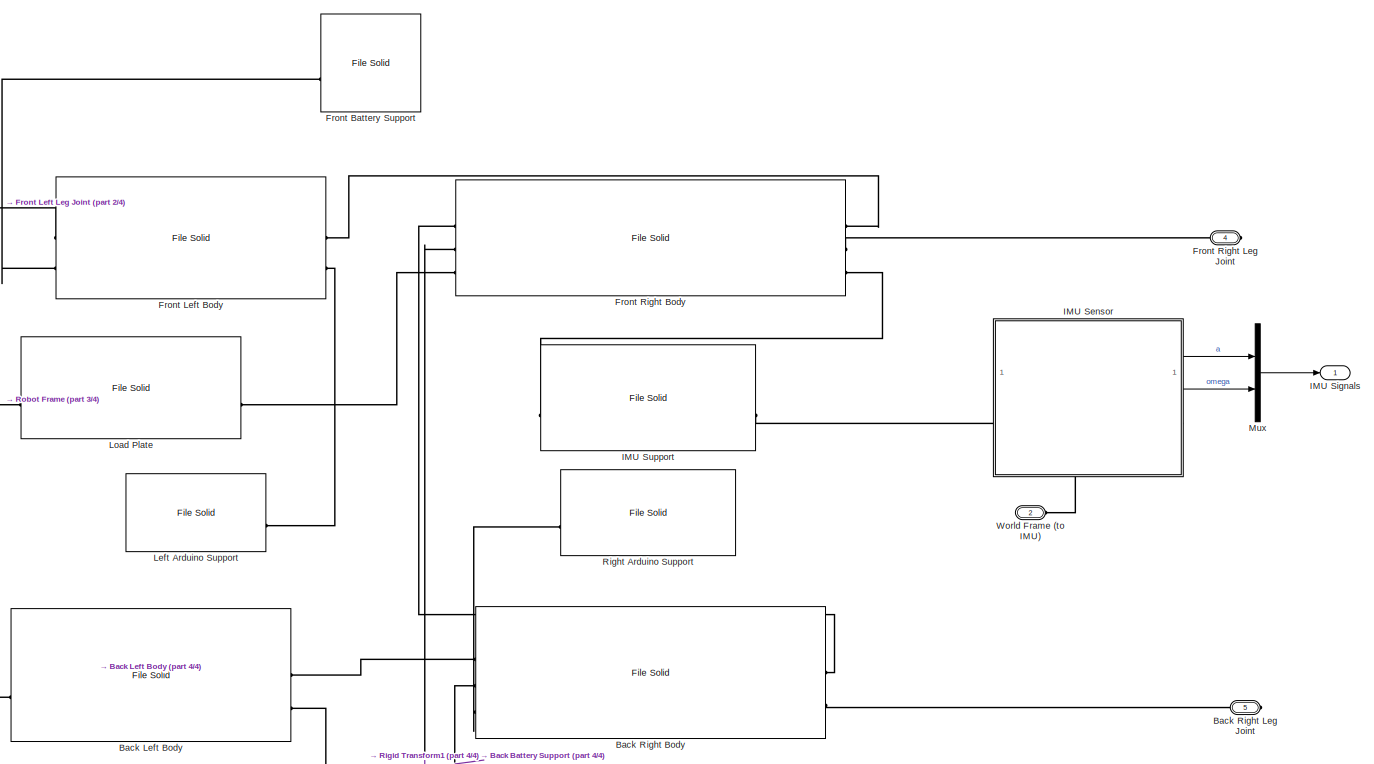
[diagram: Digital Twin (Pavlov Mini)/Body - part 1/4, central region]
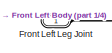
[diagram: Digital Twin (Pavlov Mini)/Body - part 2/4, top left region]
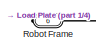
[diagram: Digital Twin (Pavlov Mini)/Body - part 3/4, middle left region]
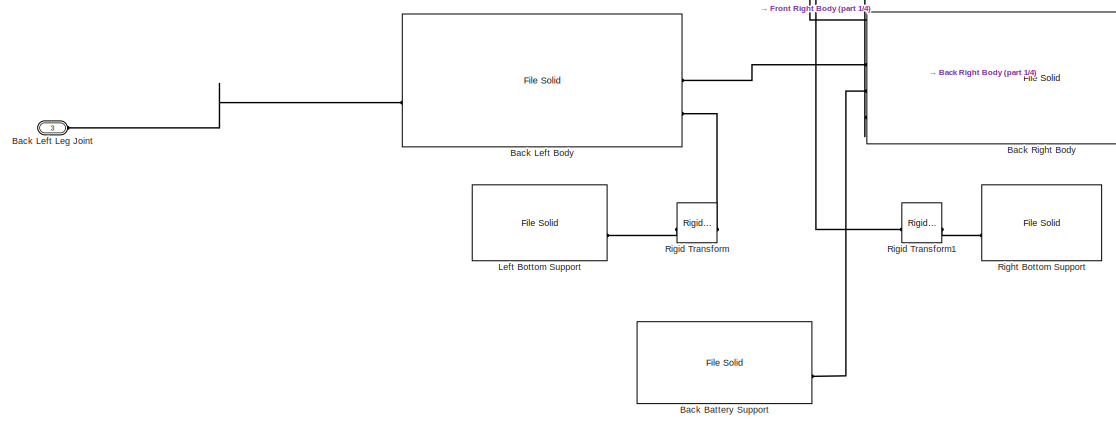
[diagram: Digital Twin (Pavlov Mini)/Body - part 4/4, bottom center region]
BLOCK [SubSystem] Digital Twin (Pavlov Mini)/Body
  PortSchema = {"entries":[{"content":{"sides":[{"content":{"connectorIds":["LConn1","LConn2","LConn3"]},"type":"ConnectorPlacement.EquallySpacedRectSide","uuid":"7e571d79-ae97-4142-b841-f21338aaaca3"},{"content":{"connectorIds":["RConn1","RConn2"],"side":"RIGHT"},"type":"ConnectorPlacement.EquallySpacedRectSide","uuid":"6f97dc1d-ab4d-418b-a488-8d905cc2dabb"},{"content":{"connectorIds":["Out1"],"side":"TOP"},"ty...<+430ch>
BLOCK [Reference] Digital Twin (Pavlov Mini)/Body/Back Battery Support  REF=sm_lib/Body Elements/File Solid
  SourceBlock = sm_lib/Body Elements/File Solid
  SourceType = File Solid
BLOCK [Reference] Digital Twin (Pavlov Mini)/Body/Back Left Body  REF=sm_lib/Body Elements/File Solid
  SourceBlock = sm_lib/Body Elements/File Solid
  SourceType = File Solid
BLOCK [PMIOPort] Digital Twin (Pavlov Mini)/Body/Back Left Leg Joint
  Port = 3
  Side = Left
BLOCK [Reference] Digital Twin (Pavlov Mini)/Body/Back Right Body  REF=sm_lib/Body Elements/File Solid
  SourceBlock = sm_lib/Body Elements/File Solid
  SourceType = File Solid
BLOCK [PMIOPort] Digital Twin (Pavlov Mini)/Body/Back Right Leg Joint
  Port = 5
  Side = Right
BLOCK [Reference] Digital Twin (Pavlov Mini)/Body/Front Battery Support  REF=sm_lib/Body Elements/File Solid
  SourceBlock = sm_lib/Body Elements/File Solid
  SourceType = File Solid
BLOCK [Reference] Digital Twin (Pavlov Mini)/Body/Front Left Body  REF=sm_lib/Body Elements/File Solid
  SourceBlock = sm_lib/Body Elements/File Solid
  SourceType = File Solid
BLOCK [PMIOPort] Digital Twin (Pavlov Mini)/Body/Front Left Leg Joint
  Side = Left
BLOCK [Reference] Digital Twin (Pavlov Mini)/Body/Front Right Body  REF=sm_lib/Body Elements/File Solid
  SourceBlock = sm_lib/Body Elements/File Solid
  SourceType = File Solid
BLOCK [PMIOPort] Digital Twin (Pavlov Mini)/Body/Front Right Leg Joint
  Port = 4
  Side = Right
BLOCK [SubSystem] Digital Twin (Pavlov Mini)/Body/IMU Sensor
  NameLocation = top
  PortSchema = {"entries":[{"content":{"sides":[{"content":{"connectorIds":["LConn1"]},"type":"ConnectorPlacement.EquallySpacedRectSide","uuid":"dae2ad05-71ba-4132-9b15-0cc6d2d60768"},{"content":{"connectorIds":["Out1","Out2","Out3"],"side":"RIGHT"},"type":"ConnectorPlacement.EquallySpacedRectSide","uuid":"f8307d31-a29c-4bb7-9273-c56291743a90"},{"content":{"side":"TOP"},"type":"ConnectorPlacement.EquallySpacedRe...<+391ch>
BLOCK [Outport] Digital Twin (Pavlov Mini)/Body/IMU Sensor/Accel
BLOCK [Outport] Digital Twin (Pavlov Mini)/Body/IMU Sensor/Gyro
  Port = 2
BLOCK [Reference] Digital Twin (Pavlov Mini)/Body/IMU Sensor/IMU1  REF=mspsensorlib/IMU
  SourceBlock = mspsensorlib/IMU
  SourceType = fusion.simulink.imuSensor
BLOCK [Outport] Digital Twin (Pavlov Mini)/Body/IMU Sensor/Mag
  Port = 3
BLOCK [Reference] Digital Twin (Pavlov Mini)/Body/IMU Sensor/PS-Simulink Converter3  REF=nesl_utility/PS-Simulink
Converter
  SourceBlock = nesl_utility/PS-Simulink\nConverter
  SourceType = PS-Simulink\nConverter
BLOCK [Reference] Digital Twin (Pavlov Mini)/Body/IMU Sensor/PS-Simulink Converter4  REF=nesl_utility/PS-Simulink
Converter
  SourceBlock = nesl_utility/PS-Simulink\nConverter
  SourceType = PS-Simulink\nConverter
BLOCK [Reference] Digital Twin (Pavlov Mini)/Body/IMU Sensor/PS-Simulink Converter5  REF=nesl_utility/PS-Simulink
Converter
  SourceBlock = nesl_utility/PS-Simulink\nConverter
  SourceType = PS-Simulink\nConverter
BLOCK [PMIOPort] Digital Twin (Pavlov Mini)/Body/IMU Sensor/Physical Support
  Side = Left
BLOCK [Reference] Digital Twin (Pavlov Mini)/Body/IMU Sensor/Transform Sensor  REF=sm_lib/Frames and
Transforms/Transform
Sensor
  SourceBlock = sm_lib/Frames and\nTransforms/Transform\nSensor
  SourceType = Transform\nSensor
BLOCK [Math] Digital Twin (Pavlov Mini)/Body/IMU Sensor/Transpose
  Operator = transpose
BLOCK [Math] Digital Twin (Pavlov Mini)/Body/IMU Sensor/Transpose1
  Operator = transpose
BLOCK [PMIOPort] Digital Twin (Pavlov Mini)/Body/IMU Sensor/World Frame
  Port = 2
  Side = Right
BLOCK [ZeroOrderHold] Digital Twin (Pavlov Mini)/Body/IMU Sensor/Zero-Order Hold
  SampleTime = deltaT
BLOCK [ZeroOrderHold] Digital Twin (Pavlov Mini)/Body/IMU Sensor/Zero-Order Hold1
  SampleTime = deltaT
BLOCK [ZeroOrderHold] Digital Twin (Pavlov Mini)/Body/IMU Sensor/Zero-Order Hold2
  SampleTime = deltaT
BLOCK [Outport] Digital Twin (Pavlov Mini)/Body/IMU Signals
BLOCK [Reference] Digital Twin (Pavlov Mini)/Body/IMU Support  REF=sm_lib/Body Elements/File Solid
  SourceBlock = sm_lib/Body Elements/File Solid
  SourceType = File Solid
BLOCK [Reference] Digital Twin (Pavlov Mini)/Body/Left Arduino Support  REF=sm_lib/Body Elements/File Solid
  SourceBlock = sm_lib/Body Elements/File Solid
  SourceType = File Solid
BLOCK [Reference] Digital Twin (Pavlov Mini)/Body/Left Bottom Support  REF=sm_lib/Body Elements/File Solid
  SourceBlock = sm_lib/Body Elements/File Solid
  SourceType = File Solid
BLOCK [Reference] Digital Twin (Pavlov Mini)/Body/Load Plate  REF=sm_lib/Body Elements/File Solid
  SourceBlock = sm_lib/Body Elements/File Solid
  SourceType = File Solid
BLOCK [Mux] Digital Twin (Pavlov Mini)/Body/Mux
  DisplayOption = bar
  Inputs = 2
BLOCK [Reference] Digital Twin (Pavlov Mini)/Body/Right Arduino Support  REF=sm_lib/Body Elements/File Solid
  SourceBlock = sm_lib/Body Elements/File Solid
  SourceType = File Solid
BLOCK [Reference] Digital Twin (Pavlov Mini)/Body/Right Bottom Support  REF=sm_lib/Body Elements/File Solid
  SourceBlock = sm_lib/Body Elements/File Solid
  SourceType = File Solid
BLOCK [Reference] Digital Twin (Pavlov Mini)/Body/Rigid Transform  REF=sm_lib/Frames and
Transforms/Rigid
Transform
  SourceBlock = sm_lib/Frames and\nTransforms/Rigid\nTransform
  SourceType = Rigid\nTransform
BLOCK [Reference] Digital Twin (Pavlov Mini)/Body/Rigid Transform1  REF=sm_lib/Frames and
Transforms/Rigid
Transform
  SourceBlock = sm_lib/Frames and\nTransforms/Rigid\nTransform
  SourceType = Rigid\nTransform
BLOCK [PMIOPort] Digital Twin (Pavlov Mini)/Body/Robot Frame
  Port = 6
  Side = Right
BLOCK [PMIOPort] Digital Twin (Pavlov Mini)/Body/World Frame (to IMU)
  Port = 2
  Side = Left
BLOCK [SubSystem] Digital Twin (Pavlov Mini)/Control BUS
BLOCK [Inport] Digital Twin (Pavlov Mini)/Control BUS/IMU_sensor
  Port = 2
BLOCK [Demux] Digital Twin (Pavlov Mini)/Control BUS/Legs Actuator Servos Signals
  NameLocation = top
  Outputs = 12
BLOCK [Mux] Digital Twin (Pavlov Mini)/Control BUS/Mux
  DisplayOption = bar
  Inputs = 3
BLOCK [Mux] Digital Twin (Pavlov Mini)/Control BUS/Mux1
  DisplayOption = bar
  Inputs = 3
BLOCK [Mux] Digital Twin (Pavlov Mini)/Control BUS/Mux2
  DisplayOption = bar
  Inputs = 3
BLOCK [Mux] Digital Twin (Pavlov Mini)/Control BUS/Mux3
  DisplayOption = bar
  Inputs = 3
BLOCK [Inport] Digital Twin (Pavlov Mini)/Control BUS/actuator_signals
BLOCK [Outport] Digital Twin (Pavlov Mini)/Control BUS/bl_actuators
  Port = 2
BLOCK [Outport] Digital Twin (Pavlov Mini)/Control BUS/br_actuators
  Port = 3
BLOCK [Outport] Digital Twin (Pavlov Mini)/Control BUS/fl_actuators
  Port = 4
BLOCK [Outport] Digital Twin (Pavlov Mini)/Control BUS/fr_actuators
  Port = 5
BLOCK [Outport] Digital Twin (Pavlov Mini)/Control BUS/sensor_signals
BLOCK [From] Digital Twin (Pavlov Mini)/From
  GotoTag = fl_q
BLOCK [From] Digital Twin (Pavlov Mini)/From2
  GotoTag = fr_q
BLOCK [From] Digital Twin (Pavlov Mini)/From6
  GotoTag = bl_q
BLOCK [From] Digital Twin (Pavlov Mini)/From7
  GotoTag = br_q
BLOCK [From] Digital Twin (Pavlov Mini)/From8
  GotoTag = IMU
BLOCK [SubSystem] Digital Twin (Pavlov Mini)/Front Left Leg
BLOCK [PMIOPort] Digital Twin (Pavlov Mini)/Front Left Leg/Body joint
  Port = 2
  Side = Right
BLOCK [Constant] Digital Twin (Pavlov Mini)/Front Left Leg/Constant
  Value = robot_joints.q2_offset
BLOCK [Constant] Digital Twin (Pavlov Mini)/Front Left Leg/Constant1
  Value = robot_joints.q1_offset
BLOCK [From] Digital Twin (Pavlov Mini)/Front Left Leg/From1
  GotoTag = fl_q2
BLOCK [From] Digital Twin (Pavlov Mini)/Front Left Leg/From2
  GotoTag = fl_q1
BLOCK [From] Digital Twin (Pavlov Mini)/Front Left Leg/From3
  GotoTag = fl_q3
BLOCK [Reference] Digital Twin (Pavlov Mini)/Front Left Leg/Front Left Hip  REF=sm_lib/Body Elements/File Solid
  SourceBlock = sm_lib/Body Elements/File Solid
  SourceType = File Solid
BLOCK [Demux] Digital Twin (Pavlov Mini)/Front Left Leg/Front Left Leg Actuator Signals
  Outputs = 3
BLOCK [Goto] Digital Twin (Pavlov Mini)/Front Left Leg/Goto2
  GotoTag = fl_q1
BLOCK [Goto] Digital Twin (Pavlov Mini)/Front Left Leg/Goto3
  GotoTag = fl_q2
BLOCK [Goto] Digital Twin (Pavlov Mini)/Front Left Leg/Goto4
  GotoTag = fl_q3
BLOCK [PMIOPort] Digital Twin (Pavlov Mini)/Front Left Leg/Ground Collision
  Side = Right
BLOCK [SubSystem] Digital Twin (Pavlov Mini)/Front Left Leg/Left Leg Without Hip
BLOCK [Constant] Digital Twin (Pavlov Mini)/Front Left Leg/Left Leg Without Hip/Constant
  Value = robot_joints.q3_offset
BLOCK [PMIOPort] Digital Twin (Pavlov Mini)/Front Left Leg/Left Leg Without Hip/Ground Collision
  Port = 2
  Side = Right
BLOCK [PMIOPort] Digital Twin (Pavlov Mini)/Front Left Leg/Left Leg Without Hip/Hip_joint
  Side = Right
BLOCK [Reference] Digital Twin (Pavlov Mini)/Front Left Leg/Left Leg Without Hip/Left Femur A  REF=sm_lib/Body Elements/File Solid
  SourceBlock = sm_lib/Body Elements/File Solid
  SourceType = File Solid
BLOCK [Reference] Digital Twin (Pavlov Mini)/Front Left Leg/Left Leg Without Hip/Left Femur B  REF=sm_lib/Body Elements/File Solid
  SourceBlock = sm_lib/Body Elements/File Solid
  SourceType = File Solid
BLOCK [Reference] Digital Twin (Pavlov Mini)/Front Left Leg/Left Leg Without Hip/Left Foot  REF=sm_lib/Body Elements/File Solid
  SourceBlock = sm_lib/Body Elements/File Solid
  SourceType = File Solid
BLOCK [Reference] Digital Twin (Pavlov Mini)/Front Left Leg/Left Leg Without Hip/Left Tibia  REF=sm_lib/Body Elements/File Solid
  SourceBlock = sm_lib/Body Elements/File Solid
  SourceType = File Solid
BLOCK [Reference] Digital Twin (Pavlov Mini)/Front Left Leg/Left Leg Without Hip/Point Cloud  REF=sm_lib/Curves and Surfaces/Point Cloud
  SourceBlock = sm_lib/Curves and Surfaces/Point Cloud
  SourceType = Point Cloud
BLOCK [Reference] Digital Twin (Pavlov Mini)/Front Left Leg/Left Leg Without Hip/Rigid Transform  REF=sm_lib/Frames and
Transforms/Rigid
Transform
  SourceBlock = sm_lib/Frames and\nTransforms/Rigid\nTransform
  SourceType = Rigid\nTransform
BLOCK [Reference] Digital Twin (Pavlov Mini)/Front Left Leg/Left Leg Without Hip/Rigid Transform1  REF=sm_lib/Frames and
Transforms/Rigid
Transform
  SourceBlock = sm_lib/Frames and\nTransforms/Rigid\nTransform
  SourceType = Rigid\nTransform
BLOCK [Reference] Digital Twin (Pavlov Mini)/Front Left Leg/Left Leg Without Hip/Rigid Transform2  REF=sm_lib/Frames and
Transforms/Rigid
Transform
  SourceBlock = sm_lib/Frames and\nTransforms/Rigid\nTransform
  SourceType = Rigid\nTransform
BLOCK [Reference] Digital Twin (Pavlov Mini)/Front Left Leg/Left Leg Without Hip/Rigid Transform4  REF=sm_lib/Frames and
Transforms/Rigid
Transform
  SourceBlock = sm_lib/Frames and\nTransforms/Rigid\nTransform
  SourceType = Rigid\nTransform
BLOCK [Reference] Digital Twin (Pavlov Mini)/Front Left Leg/Left Leg Without Hip/Rigid Transform5  REF=sm_lib/Frames and
Transforms/Rigid
Transform
  SourceBlock = sm_lib/Frames and\nTransforms/Rigid\nTransform
  SourceType = Rigid\nTransform
BLOCK [Reference] Digital Twin (Pavlov Mini)/Front Left Leg/Left Leg Without Hip/Rigid Transform6  REF=sm_lib/Frames and
Transforms/Rigid
Transform
  SourceBlock = sm_lib/Frames and\nTransforms/Rigid\nTransform
  SourceType = Rigid\nTransform
BLOCK [Reference] Digital Twin (Pavlov Mini)/Front Left Leg/Left Leg Without Hip/Rigid Transform7  REF=sm_lib/Frames and
Transforms/Rigid
Transform
  SourceBlock = sm_lib/Frames and\nTransforms/Rigid\nTransform
  SourceType = Rigid\nTransform
BLOCK [SubSystem] Digital Twin (Pavlov Mini)/Front Left Leg/Left Leg Without Hip/Servomotor + Driver (Knee Joint Y Axis)
BLOCK [Inport] Digital Twin (Pavlov Mini)/Front Left Leg/Left Leg Without Hip/Servomotor + Driver (Knee Joint Y Axis)/Neutral Position (degrees)
  Port = 2
BLOCK [SubSystem] Digital Twin (Pavlov Mini)/Front Left Leg/Left Leg Without Hip/Servomotor + Driver (Knee Joint Y Axis)/PCA9685 (Aproximation for current Project)
BLOCK [Bias] Digital Twin (Pavlov Mini)/Front Left Leg/Left Leg Without Hip/Servomotor + Driver (Knee Joint Y Axis)/PCA9685 (Aproximation for current Project)/Bias
  Bias = robot_conversions.steps_offset
  SaturateOnIntegerOverflow = off
BLOCK [Gain] Digital Twin (Pavlov Mini)/Front Left Leg/Left Leg Without Hip/Servomotor + Driver (Knee Joint Y Axis)/PCA9685 (Aproximation for current Project)/Gain
  Gain = robot_conversions.steps_to_degrees
BLOCK [Gain] Digital Twin (Pavlov Mini)/Front Left Leg/Left Leg Without Hip/Servomotor + Driver (Knee Joint Y Axis)/PCA9685 (Aproximation for current Project)/Gain1
  Gain = robot_conversions.degress_to_DC
BLOCK [Reference] Digital Twin (Pavlov Mini)/Front Left Leg/Left Leg Without Hip/Servomotor + Driver (Knee Joint Y Axis)/PCA9685 (Aproximation for current Project)/PWM  REF=simulink/Discontinuities/PWM
  DisableCoverage = on
  SourceBlock = simulink/Discontinuities/PWM
  SourceType = PWM
BLOCK [Outport] Digital Twin (Pavlov Mini)/Front Left Leg/Left Leg Without Hip/Servomotor + Driver (Knee Joint Y Axis)/PCA9685 (Aproximation for current Project)/PWM Output
  NameLocation = right
BLOCK [Inport] Digital Twin (Pavlov Mini)/Front Left Leg/Left Leg Without Hip/Servomotor + Driver (Knee Joint Y Axis)/PCA9685 (Aproximation for current Project)/Reference (degrees)
  NameLocation = left
BLOCK [PMIOPort] Digital Twin (Pavlov Mini)/Front Left Leg/Left Leg Without Hip/Servomotor + Driver (Knee Joint Y Axis)/Physical Art 1
  Side = Right
BLOCK [PMIOPort] Digital Twin (Pavlov Mini)/Front Left Leg/Left Leg Without Hip/Servomotor + Driver (Knee Joint Y Axis)/Physical Art 2
  Port = 2
  Side = Right
BLOCK [Inport] Digital Twin (Pavlov Mini)/Front Left Leg/Left Leg Without Hip/Servomotor + Driver (Knee Joint Y Axis)/Reference (degrees)
BLOCK [Outport] Digital Twin (Pavlov Mini)/Front Left Leg/Left Leg Without Hip/Servomotor + Driver (Knee Joint Y Axis)/Servo Position (rad)
BLOCK [SubSystem] Digital Twin (Pavlov Mini)/Front Left Leg/Left Leg Without Hip/Servomotor + Driver (Knee Joint Y Axis)/Servomotor
BLOCK [SubSystem] Digital Twin (Pavlov Mini)/Front Left Leg/Left Leg Without Hip/Servomotor + Driver (Knee Joint Y Axis)/Servomotor/DC to Rad
BLOCK [Bias] Digital Twin (Pavlov Mini)/Front Left Leg/Left Leg Without Hip/Servomotor + Driver (Knee Joint Y Axis)/Servomotor/DC to Rad/Bias2
  Bias = robot_conversions.DC_offset
  SaturateOnIntegerOverflow = off
BLOCK [Inport] Digital Twin (Pavlov Mini)/Front Left Leg/Left Leg Without Hip/Servomotor + Driver (Knee Joint Y Axis)/Servomotor/DC to Rad/DC (0 -->1)
BLOCK [Gain] Digital Twin (Pavlov Mini)/Front Left Leg/Left Leg Without Hip/Servomotor + Driver (Knee Joint Y Axis)/Servomotor/DC to Rad/Gain2
  Gain = robot_conversions.DC_to_rad
BLOCK [Outport] Digital Twin (Pavlov Mini)/Front Left Leg/Left Leg Without Hip/Servomotor + Driver (Knee Joint Y Axis)/Servomotor/DC to Rad/Position (rad)
BLOCK [Reference] Digital Twin (Pavlov Mini)/Front Left Leg/Left Leg Without Hip/Servomotor + Driver (Knee Joint Y Axis)/Servomotor/Degrees to Radians  REF=simulink_extras/Transformations/Degrees to
Radians
  SourceBlock = simulink_extras/Transformations/Degrees to\nRadians
  SourceType = DegreesToRadians
BLOCK [Reference] Digital Twin (Pavlov Mini)/Front Left Leg/Left Leg Without Hip/Servomotor + Driver (Knee Joint Y Axis)/Servomotor/LTI System  REF=cstblocks/LTI System
  SourceBlock = cstblocks/LTI System
  SourceType = LTI Block
BLOCK [Reference] Digital Twin (Pavlov Mini)/Front Left Leg/Left Leg Without Hip/Servomotor + Driver (Knee Joint Y Axis)/Servomotor/LTI System1  REF=cstblocks/LTI System
  SourceBlock = cstblocks/LTI System
  SourceType = LTI Block
BLOCK [Inport] Digital Twin (Pavlov Mini)/Front Left Leg/Left Leg Without Hip/Servomotor + Driver (Knee Joint Y Axis)/Servomotor/Neutral Position (degrees)
  NameLocation = left
  Port = 2
BLOCK [Reference] Digital Twin (Pavlov Mini)/Front Left Leg/Left Leg Without Hip/Servomotor + Driver (Knee Joint Y Axis)/Servomotor/PS-Simulink Converter  REF=nesl_utility/PS-Simulink
Converter
  SourceBlock = nesl_utility/PS-Simulink\nConverter
  SourceType = PS-Simulink\nConverter
BLOCK [Inport] Digital Twin (Pavlov Mini)/Front Left Leg/Left Leg Without Hip/Servomotor + Driver (Knee Joint Y Axis)/Servomotor/PWM Reference
  NameLocation = left
BLOCK [PMIOPort] Digital Twin (Pavlov Mini)/Front Left Leg/Left Leg Without Hip/Servomotor + Driver (Knee Joint Y Axis)/Servomotor/Physical Art 1
  Side = Right
BLOCK [PMIOPort] Digital Twin (Pavlov Mini)/Front Left Leg/Left Leg Without Hip/Servomotor + Driver (Knee Joint Y Axis)/Servomotor/Physical Art 2
  Port = 2
  Side = Right
BLOCK [Saturate] Digital Twin (Pavlov Mini)/Front Left Leg/Left Leg Without Hip/Servomotor + Driver (Knee Joint Y Axis)/Servomotor/Physical Limits
  LowerLimit = deg2rad(robot_joints.q3_offset+robot_joints.q_limits(1))
  UpperLimit = deg2rad(robot_joints.q3_offset+robot_joints.q_limits(2))
BLOCK [Sum] Digital Twin (Pavlov Mini)/Front Left Leg/Left Leg Without Hip/Servomotor + Driver (Knee Joint Y Axis)/Servomotor/Plus
  IconShape = rectangular
BLOCK [Sum] Digital Twin (Pavlov Mini)/Front Left Leg/Left Leg Without Hip/Servomotor + Driver (Knee Joint Y Axis)/Servomotor/Plus1
  IconShape = rectangular
  Inputs = +-
BLOCK [Outport] Digital Twin (Pavlov Mini)/Front Left Leg/Left Leg Without Hip/Servomotor + Driver (Knee Joint Y Axis)/Servomotor/Servo Position (rad)
  NameLocation = right
BLOCK [Reference] Digital Twin (Pavlov Mini)/Front Left Leg/Left Leg Without Hip/Servomotor + Driver (Knee Joint Y Axis)/Servomotor/Servomotor  REF=sm_lib/Joints/Revolute Joint
  SourceBlock = sm_lib/Joints/Revolute Joint
  SourceType = Revolute Joint
BLOCK [Reference] Digital Twin (Pavlov Mini)/Front Left Leg/Left Leg Without Hip/Servomotor + Driver (Knee Joint Y Axis)/Servomotor/Simulink-PS Converter  REF=nesl_utility/Simulink-PS
Converter
  SourceBlock = nesl_utility/Simulink-PS\nConverter
  SourceType = Simulink-PS\nConverter
BLOCK [Reference] Digital Twin (Pavlov Mini)/Front Left Leg/Left Leg Without Hip/Spatial Contact Force - Spring & Damper  REF=sm_lib/Forces and
Torques/Spatial
Contact Force
  SourceBlock = sm_lib/Forces and\nTorques/Spatial\nContact Force
  SourceType = Spatial\nContact Force
BLOCK [Inport] Digital Twin (Pavlov Mini)/Front Left Leg/Left Leg Without Hip/fl_q3
BLOCK [Reference] Digital Twin (Pavlov Mini)/Front Left Leg/Rigid Transform  REF=sm_lib/Frames and
Transforms/Rigid
Transform
  SourceBlock = sm_lib/Frames and\nTransforms/Rigid\nTransform
  SourceType = Rigid\nTransform
BLOCK [Inport] Digital Twin (Pavlov Mini)/Front Left Leg/Servo Actuator Signals
BLOCK [SubSystem] Digital Twin (Pavlov Mini)/Front Left Leg/Servomotor + Driver (Hip Joint X Axis)
BLOCK [Inport] Digital Twin (Pavlov Mini)/Front Left Leg/Servomotor + Driver (Hip Joint X Axis)/Neutral Position (degrees)
  Port = 2
BLOCK [SubSystem] Digital Twin (Pavlov Mini)/Front Left Leg/Servomotor + Driver (Hip Joint X Axis)/PCA9685 (Aproximation for current Project)
BLOCK [Bias] Digital Twin (Pavlov Mini)/Front Left Leg/Servomotor + Driver (Hip Joint X Axis)/PCA9685 (Aproximation for current Project)/Bias
  Bias = robot_conversions.steps_offset
  SaturateOnIntegerOverflow = off
BLOCK [Gain] Digital Twin (Pavlov Mini)/Front Left Leg/Servomotor + Driver (Hip Joint X Axis)/PCA9685 (Aproximation for current Project)/Gain
  Gain = robot_conversions.steps_to_degrees
BLOCK [Gain] Digital Twin (Pavlov Mini)/Front Left Leg/Servomotor + Driver (Hip Joint X Axis)/PCA9685 (Aproximation for current Project)/Gain1
  Gain = robot_conversions.degress_to_DC
BLOCK [Reference] Digital Twin (Pavlov Mini)/Front Left Leg/Servomotor + Driver (Hip Joint X Axis)/PCA9685 (Aproximation for current Project)/PWM  REF=simulink/Discontinuities/PWM
  DisableCoverage = on
  SourceBlock = simulink/Discontinuities/PWM
  SourceType = PWM
BLOCK [Outport] Digital Twin (Pavlov Mini)/Front Left Leg/Servomotor + Driver (Hip Joint X Axis)/PCA9685 (Aproximation for current Project)/PWM Output
  NameLocation = right
BLOCK [Inport] Digital Twin (Pavlov Mini)/Front Left Leg/Servomotor + Driver (Hip Joint X Axis)/PCA9685 (Aproximation for current Project)/Reference (degrees)
  NameLocation = left
BLOCK [PMIOPort] Digital Twin (Pavlov Mini)/Front Left Leg/Servomotor + Driver (Hip Joint X Axis)/Physical Art 1
  Side = Right
BLOCK [PMIOPort] Digital Twin (Pavlov Mini)/Front Left Leg/Servomotor + Driver (Hip Joint X Axis)/Physical Art 2
  Port = 2
  Side = Right
BLOCK [Inport] Digital Twin (Pavlov Mini)/Front Left Leg/Servomotor + Driver (Hip Joint X Axis)/Reference (degrees)
BLOCK [Outport] Digital Twin (Pavlov Mini)/Front Left Leg/Servomotor + Driver (Hip Joint X Axis)/Servo Position (rad)
BLOCK [SubSystem] Digital Twin (Pavlov Mini)/Front Left Leg/Servomotor + Driver (Hip Joint X Axis)/Servomotor
BLOCK [SubSystem] Digital Twin (Pavlov Mini)/Front Left Leg/Servomotor + Driver (Hip Joint X Axis)/Servomotor/DC to Rad
BLOCK [Bias] Digital Twin (Pavlov Mini)/Front Left Leg/Servomotor + Driver (Hip Joint X Axis)/Servomotor/DC to Rad/Bias2
  Bias = robot_conversions.DC_offset
  SaturateOnIntegerOverflow = off
BLOCK [Inport] Digital Twin (Pavlov Mini)/Front Left Leg/Servomotor + Driver (Hip Joint X Axis)/Servomotor/DC to Rad/DC (0 -->1)
BLOCK [Gain] Digital Twin (Pavlov Mini)/Front Left Leg/Servomotor + Driver (Hip Joint X Axis)/Servomotor/DC to Rad/Gain2
  Gain = robot_conversions.DC_to_rad
BLOCK [Outport] Digital Twin (Pavlov Mini)/Front Left Leg/Servomotor + Driver (Hip Joint X Axis)/Servomotor/DC to Rad/Position (rad)
BLOCK [Reference] Digital Twin (Pavlov Mini)/Front Left Leg/Servomotor + Driver (Hip Joint X Axis)/Servomotor/Degrees to Radians  REF=simulink_extras/Transformations/Degrees to
Radians
  SourceBlock = simulink_extras/Transformations/Degrees to\nRadians
  SourceType = DegreesToRadians
BLOCK [Reference] Digital Twin (Pavlov Mini)/Front Left Leg/Servomotor + Driver (Hip Joint X Axis)/Servomotor/LTI System  REF=cstblocks/LTI System
  SourceBlock = cstblocks/LTI System
  SourceType = LTI Block
BLOCK [Reference] Digital Twin (Pavlov Mini)/Front Left Leg/Servomotor + Driver (Hip Joint X Axis)/Servomotor/LTI System1  REF=cstblocks/LTI System
  SourceBlock = cstblocks/LTI System
  SourceType = LTI Block
BLOCK [Inport] Digital Twin (Pavlov Mini)/Front Left Leg/Servomotor + Driver (Hip Joint X Axis)/Servomotor/Neutral Position (degrees)
  NameLocation = left
  Port = 2
BLOCK [Reference] Digital Twin (Pavlov Mini)/Front Left Leg/Servomotor + Driver (Hip Joint X Axis)/Servomotor/PS-Simulink Converter  REF=nesl_utility/PS-Simulink
Converter
  SourceBlock = nesl_utility/PS-Simulink\nConverter
  SourceType = PS-Simulink\nConverter
BLOCK [Inport] Digital Twin (Pavlov Mini)/Front Left Leg/Servomotor + Driver (Hip Joint X Axis)/Servomotor/PWM Reference
  NameLocation = left
BLOCK [PMIOPort] Digital Twin (Pavlov Mini)/Front Left Leg/Servomotor + Driver (Hip Joint X Axis)/Servomotor/Physical Art 1
  Side = Right
BLOCK [PMIOPort] Digital Twin (Pavlov Mini)/Front Left Leg/Servomotor + Driver (Hip Joint X Axis)/Servomotor/Physical Art 2
  Port = 2
  Side = Right
BLOCK [Saturate] Digital Twin (Pavlov Mini)/Front Left Leg/Servomotor + Driver (Hip Joint X Axis)/Servomotor/Physical Limits
  LowerLimit = deg2rad(robot_joints.q1_offset+robot_joints.q_limits(1))
  UpperLimit = deg2rad(robot_joints.q1_offset+robot_joints.q_limits(2))
BLOCK [Sum] Digital Twin (Pavlov Mini)/Front Left Leg/Servomotor + Driver (Hip Joint X Axis)/Servomotor/Plus
  IconShape = rectangular
BLOCK [Sum] Digital Twin (Pavlov Mini)/Front Left Leg/Servomotor + Driver (Hip Joint X Axis)/Servomotor/Plus1
  IconShape = rectangular
  Inputs = +-
BLOCK [Outport] Digital Twin (Pavlov Mini)/Front Left Leg/Servomotor + Driver (Hip Joint X Axis)/Servomotor/Servo Position (rad)
  NameLocation = right
BLOCK [Reference] Digital Twin (Pavlov Mini)/Front Left Leg/Servomotor + Driver (Hip Joint X Axis)/Servomotor/Servomotor  REF=sm_lib/Joints/Revolute Joint
  SourceBlock = sm_lib/Joints/Revolute Joint
  SourceType = Revolute Joint
BLOCK [Reference] Digital Twin (Pavlov Mini)/Front Left Leg/Servomotor + Driver (Hip Joint X Axis)/Servomotor/Simulink-PS Converter  REF=nesl_utility/Simulink-PS
Converter
  SourceBlock = nesl_utility/Simulink-PS\nConverter
  SourceType = Simulink-PS\nConverter
BLOCK [SubSystem] Digital Twin (Pavlov Mini)/Front Left Leg/Servomotor + Driver (Hip Joint Y Axis)
BLOCK [Inport] Digital Twin (Pavlov Mini)/Front Left Leg/Servomotor + Driver (Hip Joint Y Axis)/Neutral Position (degrees)
  Port = 2
BLOCK [SubSystem] Digital Twin (Pavlov Mini)/Front Left Leg/Servomotor + Driver (Hip Joint Y Axis)/PCA9685 (Aproximation for current Project)
BLOCK [Bias] Digital Twin (Pavlov Mini)/Front Left Leg/Servomotor + Driver (Hip Joint Y Axis)/PCA9685 (Aproximation for current Project)/Bias
  Bias = robot_conversions.steps_offset
  SaturateOnIntegerOverflow = off
BLOCK [Gain] Digital Twin (Pavlov Mini)/Front Left Leg/Servomotor + Driver (Hip Joint Y Axis)/PCA9685 (Aproximation for current Project)/Gain
  Gain = robot_conversions.steps_to_degrees
BLOCK [Gain] Digital Twin (Pavlov Mini)/Front Left Leg/Servomotor + Driver (Hip Joint Y Axis)/PCA9685 (Aproximation for current Project)/Gain1
  Gain = robot_conversions.degress_to_DC
BLOCK [Reference] Digital Twin (Pavlov Mini)/Front Left Leg/Servomotor + Driver (Hip Joint Y Axis)/PCA9685 (Aproximation for current Project)/PWM  REF=simulink/Discontinuities/PWM
  DisableCoverage = on
  SourceBlock = simulink/Discontinuities/PWM
  SourceType = PWM
BLOCK [Outport] Digital Twin (Pavlov Mini)/Front Left Leg/Servomotor + Driver (Hip Joint Y Axis)/PCA9685 (Aproximation for current Project)/PWM Output
  NameLocation = right
BLOCK [Inport] Digital Twin (Pavlov Mini)/Front Left Leg/Servomotor + Driver (Hip Joint Y Axis)/PCA9685 (Aproximation for current Project)/Reference (degrees)
  NameLocation = left
BLOCK [PMIOPort] Digital Twin (Pavlov Mini)/Front Left Leg/Servomotor + Driver (Hip Joint Y Axis)/Physical Art 1
  Side = Right
BLOCK [PMIOPort] Digital Twin (Pavlov Mini)/Front Left Leg/Servomotor + Driver (Hip Joint Y Axis)/Physical Art 2
  Port = 2
  Side = Right
BLOCK [Inport] Digital Twin (Pavlov Mini)/Front Left Leg/Servomotor + Driver (Hip Joint Y Axis)/Reference (degrees)
BLOCK [Outport] Digital Twin (Pavlov Mini)/Front Left Leg/Servomotor + Driver (Hip Joint Y Axis)/Servo Position (rad)
BLOCK [SubSystem] Digital Twin (Pavlov Mini)/Front Left Leg/Servomotor + Driver (Hip Joint Y Axis)/Servomotor
BLOCK [SubSystem] Digital Twin (Pavlov Mini)/Front Left Leg/Servomotor + Driver (Hip Joint Y Axis)/Servomotor/DC to Rad
BLOCK [Bias] Digital Twin (Pavlov Mini)/Front Left Leg/Servomotor + Driver (Hip Joint Y Axis)/Servomotor/DC to Rad/Bias2
  Bias = robot_conversions.DC_offset
  SaturateOnIntegerOverflow = off
BLOCK [Inport] Digital Twin (Pavlov Mini)/Front Left Leg/Servomotor + Driver (Hip Joint Y Axis)/Servomotor/DC to Rad/DC (0 -->1)
BLOCK [Gain] Digital Twin (Pavlov Mini)/Front Left Leg/Servomotor + Driver (Hip Joint Y Axis)/Servomotor/DC to Rad/Gain2
  Gain = robot_conversions.DC_to_rad
BLOCK [Outport] Digital Twin (Pavlov Mini)/Front Left Leg/Servomotor + Driver (Hip Joint Y Axis)/Servomotor/DC to Rad/Position (rad)
BLOCK [Reference] Digital Twin (Pavlov Mini)/Front Left Leg/Servomotor + Driver (Hip Joint Y Axis)/Servomotor/Degrees to Radians  REF=simulink_extras/Transformations/Degrees to
Radians
  SourceBlock = simulink_extras/Transformations/Degrees to\nRadians
  SourceType = DegreesToRadians
BLOCK [Reference] Digital Twin (Pavlov Mini)/Front Left Leg/Servomotor + Driver (Hip Joint Y Axis)/Servomotor/LTI System  REF=cstblocks/LTI System
  SourceBlock = cstblocks/LTI System
  SourceType = LTI Block
BLOCK [Reference] Digital Twin (Pavlov Mini)/Front Left Leg/Servomotor + Driver (Hip Joint Y Axis)/Servomotor/LTI System1  REF=cstblocks/LTI System
  SourceBlock = cstblocks/LTI System
  SourceType = LTI Block
BLOCK [Inport] Digital Twin (Pavlov Mini)/Front Left Leg/Servomotor + Driver (Hip Joint Y Axis)/Servomotor/Neutral Position (degrees)
  NameLocation = left
  Port = 2
BLOCK [Reference] Digital Twin (Pavlov Mini)/Front Left Leg/Servomotor + Driver (Hip Joint Y Axis)/Servomotor/PS-Simulink Converter  REF=nesl_utility/PS-Simulink
Converter
  SourceBlock = nesl_utility/PS-Simulink\nConverter
  SourceType = PS-Simulink\nConverter
BLOCK [Inport] Digital Twin (Pavlov Mini)/Front Left Leg/Servomotor + Driver (Hip Joint Y Axis)/Servomotor/PWM Reference
  NameLocation = left
BLOCK [PMIOPort] Digital Twin (Pavlov Mini)/Front Left Leg/Servomotor + Driver (Hip Joint Y Axis)/Servomotor/Physical Art 1
  Side = Right
BLOCK [PMIOPort] Digital Twin (Pavlov Mini)/Front Left Leg/Servomotor + Driver (Hip Joint Y Axis)/Servomotor/Physical Art 2
  Port = 2
  Side = Right
BLOCK [Saturate] Digital Twin (Pavlov Mini)/Front Left Leg/Servomotor + Driver (Hip Joint Y Axis)/Servomotor/Physical Limits
  LowerLimit = deg2rad(robot_joints.q2_offset+robot_joints.q_limits(1))
  UpperLimit = deg2rad(robot_joints.q2_offset+robot_joints.q_limits(2))
BLOCK [Sum] Digital Twin (Pavlov Mini)/Front Left Leg/Servomotor + Driver (Hip Joint Y Axis)/Servomotor/Plus
  IconShape = rectangular
BLOCK [Sum] Digital Twin (Pavlov Mini)/Front Left Leg/Servomotor + Driver (Hip Joint Y Axis)/Servomotor/Plus1
  IconShape = rectangular
  Inputs = +-
BLOCK [Outport] Digital Twin (Pavlov Mini)/Front Left Leg/Servomotor + Driver (Hip Joint Y Axis)/Servomotor/Servo Position (rad)
  NameLocation = right
BLOCK [Reference] Digital Twin (Pavlov Mini)/Front Left Leg/Servomotor + Driver (Hip Joint Y Axis)/Servomotor/Servomotor  REF=sm_lib/Joints/Revolute Joint
  SourceBlock = sm_lib/Joints/Revolute Joint
  SourceType = Revolute Joint
BLOCK [Reference] Digital Twin (Pavlov Mini)/Front Left Leg/Servomotor + Driver (Hip Joint Y Axis)/Servomotor/Simulink-PS Converter  REF=nesl_utility/Simulink-PS
Converter
  SourceBlock = nesl_utility/Simulink-PS\nConverter
  SourceType = Simulink-PS\nConverter
BLOCK [SubSystem] Digital Twin (Pavlov Mini)/Front Right Leg
BLOCK [PMIOPort] Digital Twin (Pavlov Mini)/Front Right Leg/Body joint
  Port = 2
  Side = Right
BLOCK [Constant] Digital Twin (Pavlov Mini)/Front Right Leg/Constant
  Value = -robot_joints.q2_offset
BLOCK [Constant] Digital Twin (Pavlov Mini)/Front Right Leg/Constant1
  Value = -robot_joints.q1_offset
BLOCK [From] Digital Twin (Pavlov Mini)/Front Right Leg/From1
  GotoTag = fr_q2
BLOCK [From] Digital Twin (Pavlov Mini)/Front Right Leg/From2
  GotoTag = fr_q1
BLOCK [From] Digital Twin (Pavlov Mini)/Front Right Leg/From3
  GotoTag = fr_q3
BLOCK [Reference] Digital Twin (Pavlov Mini)/Front Right Leg/Front Right Hip  REF=sm_lib/Body Elements/File Solid
  SourceBlock = sm_lib/Body Elements/File Solid
  SourceType = File Solid
BLOCK [Demux] Digital Twin (Pavlov Mini)/Front Right Leg/Front Right Leg Actuator Signals
  Outputs = 3
BLOCK [Goto] Digital Twin (Pavlov Mini)/Front Right Leg/Goto2
  GotoTag = fr_q1
BLOCK [Goto] Digital Twin (Pavlov Mini)/Front Right Leg/Goto3
  GotoTag = fr_q2
BLOCK [Goto] Digital Twin (Pavlov Mini)/Front Right Leg/Goto4
  GotoTag = fr_q3
BLOCK [PMIOPort] Digital Twin (Pavlov Mini)/Front Right Leg/Ground Collision
  Side = Right
BLOCK [SubSystem] Digital Twin (Pavlov Mini)/Front Right Leg/Right Leg Without Hip
BLOCK [Constant] Digital Twin (Pavlov Mini)/Front Right Leg/Right Leg Without Hip/Constant
  Value = -robot_joints.q3_offset
BLOCK [PMIOPort] Digital Twin (Pavlov Mini)/Front Right Leg/Right Leg Without Hip/Ground Collision
  Port = 2
  Side = Right
BLOCK [PMIOPort] Digital Twin (Pavlov Mini)/Front Right Leg/Right Leg Without Hip/Hip_joint
  Side = Right
BLOCK [Reference] Digital Twin (Pavlov Mini)/Front Right Leg/Right Leg Without Hip/Point Cloud1  REF=sm_lib/Curves and Surfaces/Point Cloud
  SourceBlock = sm_lib/Curves and Surfaces/Point Cloud
  SourceType = Point Cloud
BLOCK [Reference] Digital Twin (Pavlov Mini)/Front Right Leg/Right Leg Without Hip/Right Femur A  REF=sm_lib/Body Elements/File Solid
  SourceBlock = sm_lib/Body Elements/File Solid
  SourceType = File Solid
BLOCK [Reference] Digital Twin (Pavlov Mini)/Front Right Leg/Right Leg Without Hip/Right Femur B  REF=sm_lib/Body Elements/File Solid
  SourceBlock = sm_lib/Body Elements/File Solid
  SourceType = File Solid
BLOCK [Reference] Digital Twin (Pavlov Mini)/Front Right Leg/Right Leg Without Hip/Right Foot  REF=sm_lib/Body Elements/File Solid
  SourceBlock = sm_lib/Body Elements/File Solid
  SourceType = File Solid
BLOCK [Reference] Digital Twin (Pavlov Mini)/Front Right Leg/Right Leg Without Hip/Right Tibia  REF=sm_lib/Body Elements/File Solid
  SourceBlock = sm_lib/Body Elements/File Solid
  SourceType = File Solid
BLOCK [Reference] Digital Twin (Pavlov Mini)/Front Right Leg/Right Leg Without Hip/Rigid Transform  REF=sm_lib/Frames and
Transforms/Rigid
Transform
  SourceBlock = sm_lib/Frames and\nTransforms/Rigid\nTransform
  SourceType = Rigid\nTransform
BLOCK [Reference] Digital Twin (Pavlov Mini)/Front Right Leg/Right Leg Without Hip/Rigid Transform1  REF=sm_lib/Frames and
Transforms/Rigid
Transform
  SourceBlock = sm_lib/Frames and\nTransforms/Rigid\nTransform
  SourceType = Rigid\nTransform
BLOCK [Reference] Digital Twin (Pavlov Mini)/Front Right Leg/Right Leg Without Hip/Rigid Transform2  REF=sm_lib/Frames and
Transforms/Rigid
Transform
  SourceBlock = sm_lib/Frames and\nTransforms/Rigid\nTransform
  SourceType = Rigid\nTransform
BLOCK [Reference] Digital Twin (Pavlov Mini)/Front Right Leg/Right Leg Without Hip/Rigid Transform4  REF=sm_lib/Frames and
Transforms/Rigid
Transform
  SourceBlock = sm_lib/Frames and\nTransforms/Rigid\nTransform
  SourceType = Rigid\nTransform
BLOCK [Reference] Digital Twin (Pavlov Mini)/Front Right Leg/Right Leg Without Hip/Rigid Transform5  REF=sm_lib/Frames and
Transforms/Rigid
Transform
  SourceBlock = sm_lib/Frames and\nTransforms/Rigid\nTransform
  SourceType = Rigid\nTransform
BLOCK [Reference] Digital Twin (Pavlov Mini)/Front Right Leg/Right Leg Without Hip/Rigid Transform6  REF=sm_lib/Frames and
Transforms/Rigid
Transform
  NameLocation = right
  SourceBlock = sm_lib/Frames and\nTransforms/Rigid\nTransform
  SourceType = Rigid\nTransform
BLOCK [Reference] Digital Twin (Pavlov Mini)/Front Right Leg/Right Leg Without Hip/Rigid Transform7  REF=sm_lib/Frames and
Transforms/Rigid
Transform
  SourceBlock = sm_lib/Frames and\nTransforms/Rigid\nTransform
  SourceType = Rigid\nTransform
BLOCK [Reference] Digital Twin (Pavlov Mini)/Front Right Leg/Right Leg Without Hip/Rigid Transform8  REF=sm_lib/Frames and
Transforms/Rigid
Transform
  SourceBlock = sm_lib/Frames and\nTransforms/Rigid\nTransform
  SourceType = Rigid\nTransform
BLOCK [SubSystem] Digital Twin (Pavlov Mini)/Front Right Leg/Right Leg Without Hip/Servomotor + Driver (Knee Joint Y Axis)
BLOCK [Inport] Digital Twin (Pavlov Mini)/Front Right Leg/Right Leg Without Hip/Servomotor + Driver (Knee Joint Y Axis)/Neutral Position (degrees)
  Port = 2
BLOCK [SubSystem] Digital Twin (Pavlov Mini)/Front Right Leg/Right Leg Without Hip/Servomotor + Driver (Knee Joint Y Axis)/PCA9685 (Aproximation for current Project)
BLOCK [Bias] Digital Twin (Pavlov Mini)/Front Right Leg/Right Leg Without Hip/Servomotor + Driver (Knee Joint Y Axis)/PCA9685 (Aproximation for current Project)/Bias
  Bias = robot_conversions.steps_offset
  SaturateOnIntegerOverflow = off
BLOCK [Gain] Digital Twin (Pavlov Mini)/Front Right Leg/Right Leg Without Hip/Servomotor + Driver (Knee Joint Y Axis)/PCA9685 (Aproximation for current Project)/Gain
  Gain = robot_conversions.steps_to_degrees
BLOCK [Gain] Digital Twin (Pavlov Mini)/Front Right Leg/Right Leg Without Hip/Servomotor + Driver (Knee Joint Y Axis)/PCA9685 (Aproximation for current Project)/Gain1
  Gain = robot_conversions.degress_to_DC
BLOCK [Reference] Digital Twin (Pavlov Mini)/Front Right Leg/Right Leg Without Hip/Servomotor + Driver (Knee Joint Y Axis)/PCA9685 (Aproximation for current Project)/PWM  REF=simulink/Discontinuities/PWM
  DisableCoverage = on
  SourceBlock = simulink/Discontinuities/PWM
  SourceType = PWM
BLOCK [Outport] Digital Twin (Pavlov Mini)/Front Right Leg/Right Leg Without Hip/Servomotor + Driver (Knee Joint Y Axis)/PCA9685 (Aproximation for current Project)/PWM Output
  NameLocation = right
BLOCK [Inport] Digital Twin (Pavlov Mini)/Front Right Leg/Right Leg Without Hip/Servomotor + Driver (Knee Joint Y Axis)/PCA9685 (Aproximation for current Project)/Reference (degrees)
  NameLocation = left
BLOCK [PMIOPort] Digital Twin (Pavlov Mini)/Front Right Leg/Right Leg Without Hip/Servomotor + Driver (Knee Joint Y Axis)/Physical Art 1
  Side = Right
BLOCK [PMIOPort] Digital Twin (Pavlov Mini)/Front Right Leg/Right Leg Without Hip/Servomotor + Driver (Knee Joint Y Axis)/Physical Art 2
  Port = 2
  Side = Right
BLOCK [Inport] Digital Twin (Pavlov Mini)/Front Right Leg/Right Leg Without Hip/Servomotor + Driver (Knee Joint Y Axis)/Reference (degrees)
BLOCK [Outport] Digital Twin (Pavlov Mini)/Front Right Leg/Right Leg Without Hip/Servomotor + Driver (Knee Joint Y Axis)/Servo Position (rad)
BLOCK [SubSystem] Digital Twin (Pavlov Mini)/Front Right Leg/Right Leg Without Hip/Servomotor + Driver (Knee Joint Y Axis)/Servomotor
BLOCK [SubSystem] Digital Twin (Pavlov Mini)/Front Right Leg/Right Leg Without Hip/Servomotor + Driver (Knee Joint Y Axis)/Servomotor/DC to Rad
BLOCK [Bias] Digital Twin (Pavlov Mini)/Front Right Leg/Right Leg Without Hip/Servomotor + Driver (Knee Joint Y Axis)/Servomotor/DC to Rad/Bias2
  Bias = robot_conversions.DC_offset
  SaturateOnIntegerOverflow = off
BLOCK [Inport] Digital Twin (Pavlov Mini)/Front Right Leg/Right Leg Without Hip/Servomotor + Driver (Knee Joint Y Axis)/Servomotor/DC to Rad/DC (0 -->1)
BLOCK [Gain] Digital Twin (Pavlov Mini)/Front Right Leg/Right Leg Without Hip/Servomotor + Driver (Knee Joint Y Axis)/Servomotor/DC to Rad/Gain2
  Gain = robot_conversions.DC_to_rad
BLOCK [Outport] Digital Twin (Pavlov Mini)/Front Right Leg/Right Leg Without Hip/Servomotor + Driver (Knee Joint Y Axis)/Servomotor/DC to Rad/Position (rad)
BLOCK [Reference] Digital Twin (Pavlov Mini)/Front Right Leg/Right Leg Without Hip/Servomotor + Driver (Knee Joint Y Axis)/Servomotor/Degrees to Radians  REF=simulink_extras/Transformations/Degrees to
Radians
  SourceBlock = simulink_extras/Transformations/Degrees to\nRadians
  SourceType = DegreesToRadians
BLOCK [Reference] Digital Twin (Pavlov Mini)/Front Right Leg/Right Leg Without Hip/Servomotor + Driver (Knee Joint Y Axis)/Servomotor/LTI System  REF=cstblocks/LTI System
  SourceBlock = cstblocks/LTI System
  SourceType = LTI Block
BLOCK [Reference] Digital Twin (Pavlov Mini)/Front Right Leg/Right Leg Without Hip/Servomotor + Driver (Knee Joint Y Axis)/Servomotor/LTI System1  REF=cstblocks/LTI System
  SourceBlock = cstblocks/LTI System
  SourceType = LTI Block
BLOCK [Inport] Digital Twin (Pavlov Mini)/Front Right Leg/Right Leg Without Hip/Servomotor + Driver (Knee Joint Y Axis)/Servomotor/Neutral Position (degrees)
  NameLocation = left
  Port = 2
BLOCK [Reference] Digital Twin (Pavlov Mini)/Front Right Leg/Right Leg Without Hip/Servomotor + Driver (Knee Joint Y Axis)/Servomotor/PS-Simulink Converter  REF=nesl_utility/PS-Simulink
Converter
  SourceBlock = nesl_utility/PS-Simulink\nConverter
  SourceType = PS-Simulink\nConverter
BLOCK [Inport] Digital Twin (Pavlov Mini)/Front Right Leg/Right Leg Without Hip/Servomotor + Driver (Knee Joint Y Axis)/Servomotor/PWM Reference
  NameLocation = left
BLOCK [PMIOPort] Digital Twin (Pavlov Mini)/Front Right Leg/Right Leg Without Hip/Servomotor + Driver (Knee Joint Y Axis)/Servomotor/Physical Art 1
  Side = Right
BLOCK [PMIOPort] Digital Twin (Pavlov Mini)/Front Right Leg/Right Leg Without Hip/Servomotor + Driver (Knee Joint Y Axis)/Servomotor/Physical Art 2
  Port = 2
  Side = Right
BLOCK [Saturate] Digital Twin (Pavlov Mini)/Front Right Leg/Right Leg Without Hip/Servomotor + Driver (Knee Joint Y Axis)/Servomotor/Physical Limits
  LowerLimit = deg2rad(-robot_joints.q3_offset+robot_joints.q_limits(1))
  UpperLimit = deg2rad(-robot_joints.q3_offset+robot_joints.q_limits(2))
BLOCK [Sum] Digital Twin (Pavlov Mini)/Front Right Leg/Right Leg Without Hip/Servomotor + Driver (Knee Joint Y Axis)/Servomotor/Plus
  IconShape = rectangular
BLOCK [Sum] Digital Twin (Pavlov Mini)/Front Right Leg/Right Leg Without Hip/Servomotor + Driver (Knee Joint Y Axis)/Servomotor/Plus1
  IconShape = rectangular
  Inputs = +-
BLOCK [Outport] Digital Twin (Pavlov Mini)/Front Right Leg/Right Leg Without Hip/Servomotor + Driver (Knee Joint Y Axis)/Servomotor/Servo Position (rad)
  NameLocation = right
BLOCK [Reference] Digital Twin (Pavlov Mini)/Front Right Leg/Right Leg Without Hip/Servomotor + Driver (Knee Joint Y Axis)/Servomotor/Servomotor  REF=sm_lib/Joints/Revolute Joint
  SourceBlock = sm_lib/Joints/Revolute Joint
  SourceType = Revolute Joint
BLOCK [Reference] Digital Twin (Pavlov Mini)/Front Right Leg/Right Leg Without Hip/Servomotor + Driver (Knee Joint Y Axis)/Servomotor/Simulink-PS Converter  REF=nesl_utility/Simulink-PS
Converter
  SourceBlock = nesl_utility/Simulink-PS\nConverter
  SourceType = Simulink-PS\nConverter
BLOCK [Reference] Digital Twin (Pavlov Mini)/Front Right Leg/Right Leg Without Hip/Spatial Contact Force - Spring & Damper  REF=sm_lib/Forces and
Torques/Spatial
Contact Force
  SourceBlock = sm_lib/Forces and\nTorques/Spatial\nContact Force
  SourceType = Spatial\nContact Force
BLOCK [Inport] Digital Twin (Pavlov Mini)/Front Right Leg/Right Leg Without Hip/fr_q3
BLOCK [Reference] Digital Twin (Pavlov Mini)/Front Right Leg/Rigid Transform  REF=sm_lib/Frames and
Transforms/Rigid
Transform
  SourceBlock = sm_lib/Frames and\nTransforms/Rigid\nTransform
  SourceType = Rigid\nTransform
BLOCK [Inport] Digital Twin (Pavlov Mini)/Front Right Leg/Servo Actuator Signals
BLOCK [SubSystem] Digital Twin (Pavlov Mini)/Front Right Leg/Servomotor + Driver (Hip Joint X Axis)
BLOCK [Inport] Digital Twin (Pavlov Mini)/Front Right Leg/Servomotor + Driver (Hip Joint X Axis)/Neutral Position (degrees)
  Port = 2
BLOCK [SubSystem] Digital Twin (Pavlov Mini)/Front Right Leg/Servomotor + Driver (Hip Joint X Axis)/PCA9685 (Aproximation for current Project)
BLOCK [Bias] Digital Twin (Pavlov Mini)/Front Right Leg/Servomotor + Driver (Hip Joint X Axis)/PCA9685 (Aproximation for current Project)/Bias
  Bias = robot_conversions.steps_offset
  SaturateOnIntegerOverflow = off
BLOCK [Gain] Digital Twin (Pavlov Mini)/Front Right Leg/Servomotor + Driver (Hip Joint X Axis)/PCA9685 (Aproximation for current Project)/Gain
  Gain = robot_conversions.steps_to_degrees
BLOCK [Gain] Digital Twin (Pavlov Mini)/Front Right Leg/Servomotor + Driver (Hip Joint X Axis)/PCA9685 (Aproximation for current Project)/Gain1
  Gain = robot_conversions.degress_to_DC
BLOCK [Reference] Digital Twin (Pavlov Mini)/Front Right Leg/Servomotor + Driver (Hip Joint X Axis)/PCA9685 (Aproximation for current Project)/PWM  REF=simulink/Discontinuities/PWM
  DisableCoverage = on
  SourceBlock = simulink/Discontinuities/PWM
  SourceType = PWM
BLOCK [Outport] Digital Twin (Pavlov Mini)/Front Right Leg/Servomotor + Driver (Hip Joint X Axis)/PCA9685 (Aproximation for current Project)/PWM Output
  NameLocation = right
BLOCK [Inport] Digital Twin (Pavlov Mini)/Front Right Leg/Servomotor + Driver (Hip Joint X Axis)/PCA9685 (Aproximation for current Project)/Reference (degrees)
  NameLocation = left
BLOCK [PMIOPort] Digital Twin (Pavlov Mini)/Front Right Leg/Servomotor + Driver (Hip Joint X Axis)/Physical Art 1
  Side = Right
BLOCK [PMIOPort] Digital Twin (Pavlov Mini)/Front Right Leg/Servomotor + Driver (Hip Joint X Axis)/Physical Art 2
  Port = 2
  Side = Right
BLOCK [Inport] Digital Twin (Pavlov Mini)/Front Right Leg/Servomotor + Driver (Hip Joint X Axis)/Reference (degrees)
BLOCK [Outport] Digital Twin (Pavlov Mini)/Front Right Leg/Servomotor + Driver (Hip Joint X Axis)/Servo Position (rad)
BLOCK [SubSystem] Digital Twin (Pavlov Mini)/Front Right Leg/Servomotor + Driver (Hip Joint X Axis)/Servomotor
BLOCK [SubSystem] Digital Twin (Pavlov Mini)/Front Right Leg/Servomotor + Driver (Hip Joint X Axis)/Servomotor/DC to Rad
BLOCK [Bias] Digital Twin (Pavlov Mini)/Front Right Leg/Servomotor + Driver (Hip Joint X Axis)/Servomotor/DC to Rad/Bias2
  Bias = robot_conversions.DC_offset
  SaturateOnIntegerOverflow = off
BLOCK [Inport] Digital Twin (Pavlov Mini)/Front Right Leg/Servomotor + Driver (Hip Joint X Axis)/Servomotor/DC to Rad/DC (0 -->1)
BLOCK [Gain] Digital Twin (Pavlov Mini)/Front Right Leg/Servomotor + Driver (Hip Joint X Axis)/Servomotor/DC to Rad/Gain2
  Gain = robot_conversions.DC_to_rad
BLOCK [Outport] Digital Twin (Pavlov Mini)/Front Right Leg/Servomotor + Driver (Hip Joint X Axis)/Servomotor/DC to Rad/Position (rad)
BLOCK [Reference] Digital Twin (Pavlov Mini)/Front Right Leg/Servomotor + Driver (Hip Joint X Axis)/Servomotor/Degrees to Radians  REF=simulink_extras/Transformations/Degrees to
Radians
  SourceBlock = simulink_extras/Transformations/Degrees to\nRadians
  SourceType = DegreesToRadians
BLOCK [Reference] Digital Twin (Pavlov Mini)/Front Right Leg/Servomotor + Driver (Hip Joint X Axis)/Servomotor/LTI System  REF=cstblocks/LTI System
  SourceBlock = cstblocks/LTI System
  SourceType = LTI Block
BLOCK [Reference] Digital Twin (Pavlov Mini)/Front Right Leg/Servomotor + Driver (Hip Joint X Axis)/Servomotor/LTI System1  REF=cstblocks/LTI System
  SourceBlock = cstblocks/LTI System
  SourceType = LTI Block
BLOCK [Inport] Digital Twin (Pavlov Mini)/Front Right Leg/Servomotor + Driver (Hip Joint X Axis)/Servomotor/Neutral Position (degrees)
  NameLocation = left
  Port = 2
BLOCK [Reference] Digital Twin (Pavlov Mini)/Front Right Leg/Servomotor + Driver (Hip Joint X Axis)/Servomotor/PS-Simulink Converter  REF=nesl_utility/PS-Simulink
Converter
  SourceBlock = nesl_utility/PS-Simulink\nConverter
  SourceType = PS-Simulink\nConverter
BLOCK [Inport] Digital Twin (Pavlov Mini)/Front Right Leg/Servomotor + Driver (Hip Joint X Axis)/Servomotor/PWM Reference
  NameLocation = left
BLOCK [PMIOPort] Digital Twin (Pavlov Mini)/Front Right Leg/Servomotor + Driver (Hip Joint X Axis)/Servomotor/Physical Art 1
  Side = Right
BLOCK [PMIOPort] Digital Twin (Pavlov Mini)/Front Right Leg/Servomotor + Driver (Hip Joint X Axis)/Servomotor/Physical Art 2
  Port = 2
  Side = Right
BLOCK [Saturate] Digital Twin (Pavlov Mini)/Front Right Leg/Servomotor + Driver (Hip Joint X Axis)/Servomotor/Physical Limits
  LowerLimit = deg2rad(-robot_joints.q1_offset+robot_joints.q_limits(1))
  UpperLimit = deg2rad(-robot_joints.q1_offset+robot_joints.q_limits(2))
BLOCK [Sum] Digital Twin (Pavlov Mini)/Front Right Leg/Servomotor + Driver (Hip Joint X Axis)/Servomotor/Plus
  IconShape = rectangular
BLOCK [Sum] Digital Twin (Pavlov Mini)/Front Right Leg/Servomotor + Driver (Hip Joint X Axis)/Servomotor/Plus1
  IconShape = rectangular
  Inputs = +-
BLOCK [Outport] Digital Twin (Pavlov Mini)/Front Right Leg/Servomotor + Driver (Hip Joint X Axis)/Servomotor/Servo Position (rad)
  NameLocation = right
BLOCK [Reference] Digital Twin (Pavlov Mini)/Front Right Leg/Servomotor + Driver (Hip Joint X Axis)/Servomotor/Servomotor  REF=sm_lib/Joints/Revolute Joint
  SourceBlock = sm_lib/Joints/Revolute Joint
  SourceType = Revolute Joint
BLOCK [Reference] Digital Twin (Pavlov Mini)/Front Right Leg/Servomotor + Driver (Hip Joint X Axis)/Servomotor/Simulink-PS Converter  REF=nesl_utility/Simulink-PS
Converter
  SourceBlock = nesl_utility/Simulink-PS\nConverter
  SourceType = Simulink-PS\nConverter
BLOCK [SubSystem] Digital Twin (Pavlov Mini)/Front Right Leg/Servomotor + Driver (Hip Joint Y Axis)
BLOCK [Inport] Digital Twin (Pavlov Mini)/Front Right Leg/Servomotor + Driver (Hip Joint Y Axis)/Neutral Position (degrees)
  Port = 2
BLOCK [SubSystem] Digital Twin (Pavlov Mini)/Front Right Leg/Servomotor + Driver (Hip Joint Y Axis)/PCA9685 (Aproximation for current Project)
BLOCK [Bias] Digital Twin (Pavlov Mini)/Front Right Leg/Servomotor + Driver (Hip Joint Y Axis)/PCA9685 (Aproximation for current Project)/Bias
  Bias = robot_conversions.steps_offset
  SaturateOnIntegerOverflow = off
BLOCK [Gain] Digital Twin (Pavlov Mini)/Front Right Leg/Servomotor + Driver (Hip Joint Y Axis)/PCA9685 (Aproximation for current Project)/Gain
  Gain = robot_conversions.steps_to_degrees
BLOCK [Gain] Digital Twin (Pavlov Mini)/Front Right Leg/Servomotor + Driver (Hip Joint Y Axis)/PCA9685 (Aproximation for current Project)/Gain1
  Gain = robot_conversions.degress_to_DC
BLOCK [Reference] Digital Twin (Pavlov Mini)/Front Right Leg/Servomotor + Driver (Hip Joint Y Axis)/PCA9685 (Aproximation for current Project)/PWM  REF=simulink/Discontinuities/PWM
  DisableCoverage = on
  SourceBlock = simulink/Discontinuities/PWM
  SourceType = PWM
BLOCK [Outport] Digital Twin (Pavlov Mini)/Front Right Leg/Servomotor + Driver (Hip Joint Y Axis)/PCA9685 (Aproximation for current Project)/PWM Output
  NameLocation = right
BLOCK [Inport] Digital Twin (Pavlov Mini)/Front Right Leg/Servomotor + Driver (Hip Joint Y Axis)/PCA9685 (Aproximation for current Project)/Reference (degrees)
  NameLocation = left
BLOCK [PMIOPort] Digital Twin (Pavlov Mini)/Front Right Leg/Servomotor + Driver (Hip Joint Y Axis)/Physical Art 1
  Side = Right
BLOCK [PMIOPort] Digital Twin (Pavlov Mini)/Front Right Leg/Servomotor + Driver (Hip Joint Y Axis)/Physical Art 2
  Port = 2
  Side = Right
BLOCK [Inport] Digital Twin (Pavlov Mini)/Front Right Leg/Servomotor + Driver (Hip Joint Y Axis)/Reference (degrees)
BLOCK [Outport] Digital Twin (Pavlov Mini)/Front Right Leg/Servomotor + Driver (Hip Joint Y Axis)/Servo Position (rad)
BLOCK [SubSystem] Digital Twin (Pavlov Mini)/Front Right Leg/Servomotor + Driver (Hip Joint Y Axis)/Servomotor
BLOCK [SubSystem] Digital Twin (Pavlov Mini)/Front Right Leg/Servomotor + Driver (Hip Joint Y Axis)/Servomotor/DC to Rad
BLOCK [Bias] Digital Twin (Pavlov Mini)/Front Right Leg/Servomotor + Driver (Hip Joint Y Axis)/Servomotor/DC to Rad/Bias2
  Bias = robot_conversions.DC_offset
  SaturateOnIntegerOverflow = off
BLOCK [Inport] Digital Twin (Pavlov Mini)/Front Right Leg/Servomotor + Driver (Hip Joint Y Axis)/Servomotor/DC to Rad/DC (0 -->1)
BLOCK [Gain] Digital Twin (Pavlov Mini)/Front Right Leg/Servomotor + Driver (Hip Joint Y Axis)/Servomotor/DC to Rad/Gain2
  Gain = robot_conversions.DC_to_rad
BLOCK [Outport] Digital Twin (Pavlov Mini)/Front Right Leg/Servomotor + Driver (Hip Joint Y Axis)/Servomotor/DC to Rad/Position (rad)
BLOCK [Reference] Digital Twin (Pavlov Mini)/Front Right Leg/Servomotor + Driver (Hip Joint Y Axis)/Servomotor/Degrees to Radians  REF=simulink_extras/Transformations/Degrees to
Radians
  SourceBlock = simulink_extras/Transformations/Degrees to\nRadians
  SourceType = DegreesToRadians
BLOCK [Reference] Digital Twin (Pavlov Mini)/Front Right Leg/Servomotor + Driver (Hip Joint Y Axis)/Servomotor/LTI System  REF=cstblocks/LTI System
  SourceBlock = cstblocks/LTI System
  SourceType = LTI Block
BLOCK [Reference] Digital Twin (Pavlov Mini)/Front Right Leg/Servomotor + Driver (Hip Joint Y Axis)/Servomotor/LTI System1  REF=cstblocks/LTI System
  SourceBlock = cstblocks/LTI System
  SourceType = LTI Block
BLOCK [Inport] Digital Twin (Pavlov Mini)/Front Right Leg/Servomotor + Driver (Hip Joint Y Axis)/Servomotor/Neutral Position (degrees)
  NameLocation = left
  Port = 2
BLOCK [Reference] Digital Twin (Pavlov Mini)/Front Right Leg/Servomotor + Driver (Hip Joint Y Axis)/Servomotor/PS-Simulink Converter  REF=nesl_utility/PS-Simulink
Converter
  SourceBlock = nesl_utility/PS-Simulink\nConverter
  SourceType = PS-Simulink\nConverter
BLOCK [Inport] Digital Twin (Pavlov Mini)/Front Right Leg/Servomotor + Driver (Hip Joint Y Axis)/Servomotor/PWM Reference
  NameLocation = left
BLOCK [PMIOPort] Digital Twin (Pavlov Mini)/Front Right Leg/Servomotor + Driver (Hip Joint Y Axis)/Servomotor/Physical Art 1
  Side = Right
BLOCK [PMIOPort] Digital Twin (Pavlov Mini)/Front Right Leg/Servomotor + Driver (Hip Joint Y Axis)/Servomotor/Physical Art 2
  Port = 2
  Side = Right
BLOCK [Saturate] Digital Twin (Pavlov Mini)/Front Right Leg/Servomotor + Driver (Hip Joint Y Axis)/Servomotor/Physical Limits
  LowerLimit = deg2rad(-robot_joints.q2_offset+robot_joints.q_limits(1))
  UpperLimit = deg2rad(-robot_joints.q2_offset+robot_joints.q_limits(2))
BLOCK [Sum] Digital Twin (Pavlov Mini)/Front Right Leg/Servomotor + Driver (Hip Joint Y Axis)/Servomotor/Plus
  IconShape = rectangular
BLOCK [Sum] Digital Twin (Pavlov Mini)/Front Right Leg/Servomotor + Driver (Hip Joint Y Axis)/Servomotor/Plus1
  IconShape = rectangular
  Inputs = +-
BLOCK [Outport] Digital Twin (Pavlov Mini)/Front Right Leg/Servomotor + Driver (Hip Joint Y Axis)/Servomotor/Servo Position (rad)
  NameLocation = right
BLOCK [Reference] Digital Twin (Pavlov Mini)/Front Right Leg/Servomotor + Driver (Hip Joint Y Axis)/Servomotor/Servomotor  REF=sm_lib/Joints/Revolute Joint
  SourceBlock = sm_lib/Joints/Revolute Joint
  SourceType = Revolute Joint
BLOCK [Reference] Digital Twin (Pavlov Mini)/Front Right Leg/Servomotor + Driver (Hip Joint Y Axis)/Servomotor/Simulink-PS Converter  REF=nesl_utility/Simulink-PS
Converter
  SourceBlock = nesl_utility/Simulink-PS\nConverter
  SourceType = Simulink-PS\nConverter
BLOCK [Goto] Digital Twin (Pavlov Mini)/Goto1
  GotoTag = fr_q
BLOCK [Goto] Digital Twin (Pavlov Mini)/Goto2
  GotoTag = bl_q
BLOCK [Goto] Digital Twin (Pavlov Mini)/Goto3
  GotoTag = br_q
BLOCK [Goto] Digital Twin (Pavlov Mini)/Goto4
  GotoTag = fl_q
BLOCK [Goto] Digital Twin (Pavlov Mini)/Goto8
  GotoTag = IMU
BLOCK [PMIOPort] Digital Twin (Pavlov Mini)/Ground Collision
  Port = 2
  Side = Right
BLOCK [Outport] Digital Twin (Pavlov Mini)/Sensor Signals
BLOCK [SubSystem] Digital Twin (Pavlov Mini)/Sist Ref Móvil Robot
  PortSchema = {"entries":[{"content":{"sides":[{"content":{"connectorIds":["LConn1"]},"type":"ConnectorPlacement.EquallySpacedRectSide","uuid":"e126f716-fb50-414b-aa8e-b4f56f78a53d"},{"content":{"side":"RIGHT"},"type":"ConnectorPlacement.EquallySpacedRectSide","uuid":"0aab1e5a-fb3d-4e65-ad49-0d3ae0916264"},{"content":{"connectorIds":["LConn2"],"side":"TOP"},"type":"ConnectorPlacement.EquallySpacedRectSide","uui...<+227ch>
BLOCK [Reference] Digital Twin (Pavlov Mini)/Sist Ref Móvil Robot/Attached Robot  REF=sm_lib/Frames and
Transforms/Rigid
Transform
  Commented = on
  SourceBlock = sm_lib/Frames and\nTransforms/Rigid\nTransform
  SourceType = Rigid\nTransform
BLOCK [Reference] Digital Twin (Pavlov Mini)/Sist Ref Móvil Robot/Free Robot  REF=sm_lib/Joints/Prismatic
Joint
  SourceBlock = sm_lib/Joints/Prismatic\nJoint
  SourceType = Prismatic\nJoint
BLOCK [Reference] Digital Twin (Pavlov Mini)/Sist Ref Móvil Robot/Initial Position  REF=sm_lib/Frames and
Transforms/Rigid
Transform
  SourceBlock = sm_lib/Frames and\nTransforms/Rigid\nTransform
  SourceType = Rigid\nTransform
BLOCK [PMIOPort] Digital Twin (Pavlov Mini)/Sist Ref Móvil Robot/Robot Frame
  Port = 2
  Side = Left
BLOCK [Reference] Digital Twin (Pavlov Mini)/Sist Ref Móvil Robot/Simulink-PS Converter2  REF=nesl_utility/Simulink-PS
Converter
  SourceBlock = nesl_utility/Simulink-PS\nConverter
  SourceType = Simulink-PS\nConverter
BLOCK [Reference] Digital Twin (Pavlov Mini)/Sist Ref Móvil Robot/Sist Ref Robot  REF=sm_lib/Frames and
Transforms/Reference
Frame
  SourceBlock = sm_lib/Frames and\nTransforms/Reference\nFrame
  SourceType = Reference\nFrame
BLOCK [Reference] Digital Twin (Pavlov Mini)/Sist Ref Móvil Robot/Sist Ref Robot Graphic  REF=sm_lib/Curves and Surfaces/Point
  SourceBlock = sm_lib/Curves and Surfaces/Point
  SourceType = Point
BLOCK [Step] Digital Twin (Pavlov Mini)/Sist Ref Móvil Robot/Step
  After = -1
  SampleTime = 0
BLOCK [Reference] Digital Twin (Pavlov Mini)/Sist Ref Móvil Robot/Transform Sensor  REF=sm_lib/Frames and
Transforms/Transform
Sensor
  SourceBlock = sm_lib/Frames and\nTransforms/Transform\nSensor
  SourceType = Transform\nSensor
BLOCK [PMIOPort] Digital Twin (Pavlov Mini)/Sist Ref Móvil Robot/World Frame
  Side = Left
BLOCK [PMIOPort] Digital Twin (Pavlov Mini)/World Frame
  Side = Left
BLOCK [SubSystem] Ground Collision
  PortSchema = {"entries":[{"content":{"sides":[{"content":{"connectorIds":["LConn1"]},"type":"ConnectorPlacement.EquallySpacedRectSide","uuid":"47460202-66f8-4239-abaf-866458d8de2b"},{"content":{"side":"RIGHT"},"type":"ConnectorPlacement.EquallySpacedRectSide","uuid":"0a62e7a4-49ad-45f4-9fbf-7fe6878e22bf"},{"content":{"connectorIds":["LConn2"],"side":"TOP"},"type":"ConnectorPlacement.EquallySpacedRectSide","uui...<+227ch>
BLOCK [Reference] Ground Collision/Ground Plane  REF=sm_lib/Curves and Surfaces/Infinite Plane
  SourceBlock = sm_lib/Curves and Surfaces/Infinite Plane
  SourceType = Infinite Plane
BLOCK [Reference] Ground Collision/Ground Solid World Reference  REF=sm_lib/Body Elements/Brick Solid
  SourceBlock = sm_lib/Body Elements/Brick Solid
  SourceType = Brick Solid
BLOCK [Reference] Ground Collision/Rigid Transform  REF=sm_lib/Frames and
Transforms/Rigid
Transform
  SourceBlock = sm_lib/Frames and\nTransforms/Rigid\nTransform
  SourceType = Rigid\nTransform
BLOCK [Reference] Ground Collision/Rigid Transform1  REF=sm_lib/Frames and
Transforms/Rigid
Transform
  SourceBlock = sm_lib/Frames and\nTransforms/Rigid\nTransform
  SourceType = Rigid\nTransform
BLOCK [PMIOPort] Ground Collision/Robot
  Port = 2
  Side = Left
BLOCK [PMIOPort] Ground Collision/World Frame
  Side = Left
BLOCK [Reference] Mechanism Configuration  REF=sm_lib/Utilities/Mechanism
Configuration
  SourceBlock = sm_lib/Utilities/Mechanism\nConfiguration
  SourceType = Mechanism\nConfiguration
BLOCK [SubSystem] Microcontroller (Serial Communication)
  NameLocation = top
  PortSchema = {"entries":[{"content":{"sides":[{"content":{"connectorIds":["In1","Out1"]},"type":"ConnectorPlacement.EquallySpacedRectSide","uuid":"cdf2e4cd-13b6-44e1-9a4a-ae75c6ce0563"},{"content":{"side":"RIGHT"},"type":"ConnectorPlacement.EquallySpacedRectSide","uuid":"9558d82c-56f6-4cca-b8e6-771c973bf9b1"},{"content":{"side":"TOP"},"type":"ConnectorPlacement.EquallySpacedRectSide","uuid":"5cb77439-7419-4cf6...<+205ch>
BLOCK [Outport] Microcontroller (Serial Communication)/Actuators Signals
BLOCK [DataTypeConversion] Microcontroller (Serial Communication)/Data Type Conversion1
  OutDataTypeStr = single
  RndMeth = Floor
  SaturateOnIntegerOverflow = off
BLOCK [DataTypeConversion] Microcontroller (Serial Communication)/Data Type Conversion2
  OutDataTypeStr = single
  RndMeth = Floor
  SaturateOnIntegerOverflow = off
BLOCK [DataTypeConversion] Microcontroller (Serial Communication)/Data Type Conversion3
  OutDataTypeStr = single
  RndMeth = Floor
  SaturateOnIntegerOverflow = off
BLOCK [DataTypeConversion] Microcontroller (Serial Communication)/Data Type Conversion4
  OutDataTypeStr = single
  RndMeth = Floor
  SaturateOnIntegerOverflow = off
BLOCK [DataTypeConversion] Microcontroller (Serial Communication)/Data Type Conversion5
  OutDataTypeStr = single
  RndMeth = Floor
  SaturateOnIntegerOverflow = off
BLOCK [DataTypeConversion] Microcontroller (Serial Communication)/Data Type Conversion6
  OutDataTypeStr = single
  RndMeth = Floor
  SaturateOnIntegerOverflow = off
BLOCK [DataTypeConversion] Microcontroller (Serial Communication)/Data Type Conversion8
  OutDataTypeStr = double
  RndMeth = Floor
  SaturateOnIntegerOverflow = off
BLOCK [Demux] Microcontroller (Serial Communication)/Demux1
  Outputs = 6
BLOCK [Mux] Microcontroller (Serial Communication)/Mux
  DisplayOption = bar
  Inputs = 6
BLOCK [Inport] Microcontroller (Serial Communication)/Sensor Signals
BLOCK [Reference] Microcontroller (Serial Communication)/Serial Configuration  REF=instrumentseriallib/Serial Configuration
  LibrarySourceBlock = instrumentlib/Serial Configuration
  Priority = -200000
  SourceBlock = instrumentseriallib/Serial Configuration
  SourceType = system.SerialConfiguration
BLOCK [Reference] Microcontroller (Serial Communication)/Serial Receive  REF=instrumentseriallib/Serial Receive
  LibrarySourceBlock = instrumentlib/Serial Receive
  Priority = 1
  SourceBlock = instrumentseriallib/Serial Receive
  SourceType = system.SerialReceive
BLOCK [Reference] Microcontroller (Serial Communication)/Serial Send  REF=instrumentseriallib/Serial Send
  LibrarySourceBlock = instrumentlib/Serial Send
  Priority = 1
  SourceBlock = instrumentseriallib/Serial Send
  SourceType = system.SerialSend
BLOCK [ZeroOrderHold] Microcontroller (Serial Communication)/Zero-Order Hold
  SampleTime = 0.01
BLOCK [ZeroOrderHold] Microcontroller (Serial Communication)/Zero-Order Hold1
  SampleTime = 0.01
BLOCK [ZeroOrderHold] Microcontroller (Serial Communication)/Zero-Order Hold2
  SampleTime = 0.01
BLOCK [ZeroOrderHold] Microcontroller (Serial Communication)/Zero-Order Hold3
  SampleTime = 0.01
BLOCK [ZeroOrderHold] Microcontroller (Serial Communication)/Zero-Order Hold4
  SampleTime = 0.01
BLOCK [ZeroOrderHold] Microcontroller (Serial Communication)/Zero-Order Hold5
  SampleTime = 0.01
BLOCK [Reference] Solver Configuration  REF=nesl_utility/Solver
Configuration
  SourceBlock = nesl_utility/Solver\nConfiguration
  SourceType = Solver\nConfiguration
BLOCK [Reference] World Frame  REF=sm_lib/Frames and
Transforms/World Frame
  SourceBlock = sm_lib/Frames and\nTransforms/World Frame
  SourceType = World Frame
LINE Digital Twin (Pavlov Mini)/Actuator Signals:1 -> Digital Twin (Pavlov Mini)/Control BUS:1
LINE Digital Twin (Pavlov Mini)/Back Left Leg/Back Left Leg Actuator Signals:1 -> Digital Twin (Pavlov Mini)/Back Left Leg/Goto2:1
LINE Digital Twin (Pavlov Mini)/Back Left Leg/Back Left Leg Actuator Signals:2 -> Digital Twin (Pavlov Mini)/Back Left Leg/Goto3:1
LINE Digital Twin (Pavlov Mini)/Back Left Leg/Back Left Leg Actuator Signals:3 -> Digital Twin (Pavlov Mini)/Back Left Leg/Goto4:1
LINE Digital Twin (Pavlov Mini)/Back Left Leg/Constant2:1 -> Digital Twin (Pavlov Mini)/Back Left Leg/Servomotor + Driver (Hip Joint X Axis):2
LINE Digital Twin (Pavlov Mini)/Back Left Leg/Constant:1 -> Digital Twin (Pavlov Mini)/Back Left Leg/Servomotor + Driver (Hip Joint Y Axis):2
LINE Digital Twin (Pavlov Mini)/Back Left Leg/From1:1 -> Digital Twin (Pavlov Mini)/Back Left Leg/Servomotor + Driver (Hip Joint Y Axis):1
LINE Digital Twin (Pavlov Mini)/Back Left Leg/From2:1 -> Digital Twin (Pavlov Mini)/Back Left Leg/Left Leg Without Hip:1
LINE Digital Twin (Pavlov Mini)/Back Left Leg/From3:1 -> Digital Twin (Pavlov Mini)/Back Left Leg/Servomotor + Driver (Hip Joint X Axis):1
LINE Digital Twin (Pavlov Mini)/Back Left Leg/Left Leg Without Hip/Constant:1 -> Digital Twin (Pavlov Mini)/Back Left Leg/Left Leg Without Hip/Servomotor + Driver (Knee Joint Y Axis):2
LINE Digital Twin (Pavlov Mini)/Back Left Leg/Left Leg Without Hip/Servomotor + Driver (Knee Joint Y Axis)/Neutral Position (degrees):1 -> Digital Twin (Pavlov Mini)/Back Left Leg/Left Leg Without Hip/Servomotor + Driver (Knee Joint Y Axis)/Servomotor:2
LINE Digital Twin (Pavlov Mini)/Back Left Leg/Left Leg Without Hip/Servomotor + Driver (Knee Joint Y Axis)/PCA9685 (Aproximation for current Project)/Bias:1 -> Digital Twin (Pavlov Mini)/Back Left Leg/Left Leg Without Hip/Servomotor + Driver (Knee Joint Y Axis)/PCA9685 (Aproximation for current Project)/Gain1:1
LINE Digital Twin (Pavlov Mini)/Back Left Leg/Left Leg Without Hip/Servomotor + Driver (Knee Joint Y Axis)/PCA9685 (Aproximation for current Project)/Gain1:1 -> Digital Twin (Pavlov Mini)/Back Left Leg/Left Leg Without Hip/Servomotor + Driver (Knee Joint Y Axis)/PCA9685 (Aproximation for current Project)/PWM:1
LINE Digital Twin (Pavlov Mini)/Back Left Leg/Left Leg Without Hip/Servomotor + Driver (Knee Joint Y Axis)/PCA9685 (Aproximation for current Project)/Gain:1 -> Digital Twin (Pavlov Mini)/Back Left Leg/Left Leg Without Hip/Servomotor + Driver (Knee Joint Y Axis)/PCA9685 (Aproximation for current Project)/Bias:1
LINE Digital Twin (Pavlov Mini)/Back Left Leg/Left Leg Without Hip/Servomotor + Driver (Knee Joint Y Axis)/PCA9685 (Aproximation for current Project)/PWM:1 -> Digital Twin (Pavlov Mini)/Back Left Leg/Left Leg Without Hip/Servomotor + Driver (Knee Joint Y Axis)/PCA9685 (Aproximation for current Project)/PWM Output:1
LINE Digital Twin (Pavlov Mini)/Back Left Leg/Left Leg Without Hip/Servomotor + Driver (Knee Joint Y Axis)/PCA9685 (Aproximation for current Project)/Reference (degrees):1 -> Digital Twin (Pavlov Mini)/Back Left Leg/Left Leg Without Hip/Servomotor + Driver (Knee Joint Y Axis)/PCA9685 (Aproximation for current Project)/Gain:1
LINE Digital Twin (Pavlov Mini)/Back Left Leg/Left Leg Without Hip/Servomotor + Driver (Knee Joint Y Axis)/PCA9685 (Aproximation for current Project):1 -> Digital Twin (Pavlov Mini)/Back Left Leg/Left Leg Without Hip/Servomotor + Driver (Knee Joint Y Axis)/Servomotor:1
LINE Digital Twin (Pavlov Mini)/Back Left Leg/Left Leg Without Hip/Servomotor + Driver (Knee Joint Y Axis)/Reference (degrees):1 -> Digital Twin (Pavlov Mini)/Back Left Leg/Left Leg Without Hip/Servomotor + Driver (Knee Joint Y Axis)/PCA9685 (Aproximation for current Project):1
LINE Digital Twin (Pavlov Mini)/Back Left Leg/Left Leg Without Hip/Servomotor + Driver (Knee Joint Y Axis)/Servomotor/DC to Rad/Bias2:1 -> Digital Twin (Pavlov Mini)/Back Left Leg/Left Leg Without Hip/Servomotor + Driver (Knee Joint Y Axis)/Servomotor/DC to Rad/Gain2:1
LINE Digital Twin (Pavlov Mini)/Back Left Leg/Left Leg Without Hip/Servomotor + Driver (Knee Joint Y Axis)/Servomotor/DC to Rad/DC (0 -->1):1 -> Digital Twin (Pavlov Mini)/Back Left Leg/Left Leg Without Hip/Servomotor + Driver (Knee Joint Y Axis)/Servomotor/DC to Rad/Bias2:1
LINE Digital Twin (Pavlov Mini)/Back Left Leg/Left Leg Without Hip/Servomotor + Driver (Knee Joint Y Axis)/Servomotor/DC to Rad/Gain2:1 -> Digital Twin (Pavlov Mini)/Back Left Leg/Left Leg Without Hip/Servomotor + Driver (Knee Joint Y Axis)/Servomotor/DC to Rad/Position (rad):1
LINE Digital Twin (Pavlov Mini)/Back Left Leg/Left Leg Without Hip/Servomotor + Driver (Knee Joint Y Axis)/Servomotor/DC to Rad:1 -> Digital Twin (Pavlov Mini)/Back Left Leg/Left Leg Without Hip/Servomotor + Driver (Knee Joint Y Axis)/Servomotor/Plus:1
NET Digital Twin (Pavlov Mini)/Back Left Leg/Left Leg Without Hip/Servomotor + Driver (Knee Joint Y Axis)/Servomotor/Degrees to Radians:1 -> Digital Twin (Pavlov Mini)/Back Left Leg/Left Leg Without Hip/Servomotor + Driver (Knee Joint Y Axis)/Servomotor/Plus1:2, Digital Twin (Pavlov Mini)/Back Left Leg/Left Leg Without Hip/Servomotor + Driver (Knee Joint Y Axis)/Servomotor/Plus:2
LINE Digital Twin (Pavlov Mini)/Back Left Leg/Left Leg Without Hip/Servomotor + Driver (Knee Joint Y Axis)/Servomotor/LTI System1:1 -> Digital Twin (Pavlov Mini)/Back Left Leg/Left Leg Without Hip/Servomotor + Driver (Knee Joint Y Axis)/Servomotor/DC to Rad:1
LINE Digital Twin (Pavlov Mini)/Back Left Leg/Left Leg Without Hip/Servomotor + Driver (Knee Joint Y Axis)/Servomotor/LTI System:1 -> Digital Twin (Pavlov Mini)/Back Left Leg/Left Leg Without Hip/Servomotor + Driver (Knee Joint Y Axis)/Servomotor/LTI System1:1
LINE Digital Twin (Pavlov Mini)/Back Left Leg/Left Leg Without Hip/Servomotor + Driver (Knee Joint Y Axis)/Servomotor/Neutral Position (degrees):1 -> Digital Twin (Pavlov Mini)/Back Left Leg/Left Leg Without Hip/Servomotor + Driver (Knee Joint Y Axis)/Servomotor/Degrees to Radians:1
LINE Digital Twin (Pavlov Mini)/Back Left Leg/Left Leg Without Hip/Servomotor + Driver (Knee Joint Y Axis)/Servomotor/PS-Simulink Converter:1 -> Digital Twin (Pavlov Mini)/Back Left Leg/Left Leg Without Hip/Servomotor + Driver (Knee Joint Y Axis)/Servomotor/Plus1:1
LINE Digital Twin (Pavlov Mini)/Back Left Leg/Left Leg Without Hip/Servomotor + Driver (Knee Joint Y Axis)/Servomotor/PWM Reference:1 -> Digital Twin (Pavlov Mini)/Back Left Leg/Left Leg Without Hip/Servomotor + Driver (Knee Joint Y Axis)/Servomotor/LTI System:1
LINE Digital Twin (Pavlov Mini)/Back Left Leg/Left Leg Without Hip/Servomotor + Driver (Knee Joint Y Axis)/Servomotor/Physical Limits:1 -> Digital Twin (Pavlov Mini)/Back Left Leg/Left Leg Without Hip/Servomotor + Driver (Knee Joint Y Axis)/Servomotor/Simulink-PS Converter:1
LINE Digital Twin (Pavlov Mini)/Back Left Leg/Left Leg Without Hip/Servomotor + Driver (Knee Joint Y Axis)/Servomotor/Plus1:1 -> Digital Twin (Pavlov Mini)/Back Left Leg/Left Leg Without Hip/Servomotor + Driver (Knee Joint Y Axis)/Servomotor/Servo Position (rad):1
LINE Digital Twin (Pavlov Mini)/Back Left Leg/Left Leg Without Hip/Servomotor + Driver (Knee Joint Y Axis)/Servomotor/Plus:1 -> Digital Twin (Pavlov Mini)/Back Left Leg/Left Leg Without Hip/Servomotor + Driver (Knee Joint Y Axis)/Servomotor/Physical Limits:1
LINE Digital Twin (Pavlov Mini)/Back Left Leg/Left Leg Without Hip/Servomotor + Driver (Knee Joint Y Axis)/Servomotor:1 -> Digital Twin (Pavlov Mini)/Back Left Leg/Left Leg Without Hip/Servomotor + Driver (Knee Joint Y Axis)/Servo Position (rad):1
LINE Digital Twin (Pavlov Mini)/Back Left Leg/Left Leg Without Hip/bl_q3:1 -> Digital Twin (Pavlov Mini)/Back Left Leg/Left Leg Without Hip/Servomotor + Driver (Knee Joint Y Axis):1
LINE Digital Twin (Pavlov Mini)/Back Left Leg/Servo Actuator Signals:1 -> Digital Twin (Pavlov Mini)/Back Left Leg/Back Left Leg Actuator Signals:1
LINE Digital Twin (Pavlov Mini)/Back Left Leg/Servomotor + Driver (Hip Joint X Axis)/Neutral Position (degrees):1 -> Digital Twin (Pavlov Mini)/Back Left Leg/Servomotor + Driver (Hip Joint X Axis)/Servomotor:2
LINE Digital Twin (Pavlov Mini)/Back Left Leg/Servomotor + Driver (Hip Joint X Axis)/PCA9685 (Aproximation for current Project)/Bias:1 -> Digital Twin (Pavlov Mini)/Back Left Leg/Servomotor + Driver (Hip Joint X Axis)/PCA9685 (Aproximation for current Project)/Gain1:1
LINE Digital Twin (Pavlov Mini)/Back Left Leg/Servomotor + Driver (Hip Joint X Axis)/PCA9685 (Aproximation for current Project)/Gain1:1 -> Digital Twin (Pavlov Mini)/Back Left Leg/Servomotor + Driver (Hip Joint X Axis)/PCA9685 (Aproximation for current Project)/PWM:1
LINE Digital Twin (Pavlov Mini)/Back Left Leg/Servomotor + Driver (Hip Joint X Axis)/PCA9685 (Aproximation for current Project)/Gain:1 -> Digital Twin (Pavlov Mini)/Back Left Leg/Servomotor + Driver (Hip Joint X Axis)/PCA9685 (Aproximation for current Project)/Bias:1
LINE Digital Twin (Pavlov Mini)/Back Left Leg/Servomotor + Driver (Hip Joint X Axis)/PCA9685 (Aproximation for current Project)/PWM:1 -> Digital Twin (Pavlov Mini)/Back Left Leg/Servomotor + Driver (Hip Joint X Axis)/PCA9685 (Aproximation for current Project)/PWM Output:1
LINE Digital Twin (Pavlov Mini)/Back Left Leg/Servomotor + Driver (Hip Joint X Axis)/PCA9685 (Aproximation for current Project)/Reference (degrees):1 -> Digital Twin (Pavlov Mini)/Back Left Leg/Servomotor + Driver (Hip Joint X Axis)/PCA9685 (Aproximation for current Project)/Gain:1
LINE Digital Twin (Pavlov Mini)/Back Left Leg/Servomotor + Driver (Hip Joint X Axis)/PCA9685 (Aproximation for current Project):1 -> Digital Twin (Pavlov Mini)/Back Left Leg/Servomotor + Driver (Hip Joint X Axis)/Servomotor:1
LINE Digital Twin (Pavlov Mini)/Back Left Leg/Servomotor + Driver (Hip Joint X Axis)/Reference (degrees):1 -> Digital Twin (Pavlov Mini)/Back Left Leg/Servomotor + Driver (Hip Joint X Axis)/PCA9685 (Aproximation for current Project):1
LINE Digital Twin (Pavlov Mini)/Back Left Leg/Servomotor + Driver (Hip Joint X Axis)/Servomotor/DC to Rad/Bias2:1 -> Digital Twin (Pavlov Mini)/Back Left Leg/Servomotor + Driver (Hip Joint X Axis)/Servomotor/DC to Rad/Gain2:1
LINE Digital Twin (Pavlov Mini)/Back Left Leg/Servomotor + Driver (Hip Joint X Axis)/Servomotor/DC to Rad/DC (0 -->1):1 -> Digital Twin (Pavlov Mini)/Back Left Leg/Servomotor + Driver (Hip Joint X Axis)/Servomotor/DC to Rad/Bias2:1
LINE Digital Twin (Pavlov Mini)/Back Left Leg/Servomotor + Driver (Hip Joint X Axis)/Servomotor/DC to Rad/Gain2:1 -> Digital Twin (Pavlov Mini)/Back Left Leg/Servomotor + Driver (Hip Joint X Axis)/Servomotor/DC to Rad/Position (rad):1
LINE Digital Twin (Pavlov Mini)/Back Left Leg/Servomotor + Driver (Hip Joint X Axis)/Servomotor/DC to Rad:1 -> Digital Twin (Pavlov Mini)/Back Left Leg/Servomotor + Driver (Hip Joint X Axis)/Servomotor/Plus:1
NET Digital Twin (Pavlov Mini)/Back Left Leg/Servomotor + Driver (Hip Joint X Axis)/Servomotor/Degrees to Radians:1 -> Digital Twin (Pavlov Mini)/Back Left Leg/Servomotor + Driver (Hip Joint X Axis)/Servomotor/Plus1:2, Digital Twin (Pavlov Mini)/Back Left Leg/Servomotor + Driver (Hip Joint X Axis)/Servomotor/Plus:2
LINE Digital Twin (Pavlov Mini)/Back Left Leg/Servomotor + Driver (Hip Joint X Axis)/Servomotor/LTI System1:1 -> Digital Twin (Pavlov Mini)/Back Left Leg/Servomotor + Driver (Hip Joint X Axis)/Servomotor/DC to Rad:1
LINE Digital Twin (Pavlov Mini)/Back Left Leg/Servomotor + Driver (Hip Joint X Axis)/Servomotor/LTI System:1 -> Digital Twin (Pavlov Mini)/Back Left Leg/Servomotor + Driver (Hip Joint X Axis)/Servomotor/LTI System1:1
LINE Digital Twin (Pavlov Mini)/Back Left Leg/Servomotor + Driver (Hip Joint X Axis)/Servomotor/Neutral Position (degrees):1 -> Digital Twin (Pavlov Mini)/Back Left Leg/Servomotor + Driver (Hip Joint X Axis)/Servomotor/Degrees to Radians:1
LINE Digital Twin (Pavlov Mini)/Back Left Leg/Servomotor + Driver (Hip Joint X Axis)/Servomotor/PS-Simulink Converter:1 -> Digital Twin (Pavlov Mini)/Back Left Leg/Servomotor + Driver (Hip Joint X Axis)/Servomotor/Plus1:1
LINE Digital Twin (Pavlov Mini)/Back Left Leg/Servomotor + Driver (Hip Joint X Axis)/Servomotor/PWM Reference:1 -> Digital Twin (Pavlov Mini)/Back Left Leg/Servomotor + Driver (Hip Joint X Axis)/Servomotor/LTI System:1
LINE Digital Twin (Pavlov Mini)/Back Left Leg/Servomotor + Driver (Hip Joint X Axis)/Servomotor/Physical Limits:1 -> Digital Twin (Pavlov Mini)/Back Left Leg/Servomotor + Driver (Hip Joint X Axis)/Servomotor/Simulink-PS Converter:1
LINE Digital Twin (Pavlov Mini)/Back Left Leg/Servomotor + Driver (Hip Joint X Axis)/Servomotor/Plus1:1 -> Digital Twin (Pavlov Mini)/Back Left Leg/Servomotor + Driver (Hip Joint X Axis)/Servomotor/Servo Position (rad):1
LINE Digital Twin (Pavlov Mini)/Back Left Leg/Servomotor + Driver (Hip Joint X Axis)/Servomotor/Plus:1 -> Digital Twin (Pavlov Mini)/Back Left Leg/Servomotor + Driver (Hip Joint X Axis)/Servomotor/Physical Limits:1
LINE Digital Twin (Pavlov Mini)/Back Left Leg/Servomotor + Driver (Hip Joint X Axis)/Servomotor:1 -> Digital Twin (Pavlov Mini)/Back Left Leg/Servomotor + Driver (Hip Joint X Axis)/Servo Position (rad):1
LINE Digital Twin (Pavlov Mini)/Back Left Leg/Servomotor + Driver (Hip Joint Y Axis)/Neutral Position (degrees):1 -> Digital Twin (Pavlov Mini)/Back Left Leg/Servomotor + Driver (Hip Joint Y Axis)/Servomotor:2
LINE Digital Twin (Pavlov Mini)/Back Left Leg/Servomotor + Driver (Hip Joint Y Axis)/PCA9685 (Aproximation for current Project)/Bias:1 -> Digital Twin (Pavlov Mini)/Back Left Leg/Servomotor + Driver (Hip Joint Y Axis)/PCA9685 (Aproximation for current Project)/Gain1:1
LINE Digital Twin (Pavlov Mini)/Back Left Leg/Servomotor + Driver (Hip Joint Y Axis)/PCA9685 (Aproximation for current Project)/Gain1:1 -> Digital Twin (Pavlov Mini)/Back Left Leg/Servomotor + Driver (Hip Joint Y Axis)/PCA9685 (Aproximation for current Project)/PWM:1
LINE Digital Twin (Pavlov Mini)/Back Left Leg/Servomotor + Driver (Hip Joint Y Axis)/PCA9685 (Aproximation for current Project)/Gain:1 -> Digital Twin (Pavlov Mini)/Back Left Leg/Servomotor + Driver (Hip Joint Y Axis)/PCA9685 (Aproximation for current Project)/Bias:1
LINE Digital Twin (Pavlov Mini)/Back Left Leg/Servomotor + Driver (Hip Joint Y Axis)/PCA9685 (Aproximation for current Project)/PWM:1 -> Digital Twin (Pavlov Mini)/Back Left Leg/Servomotor + Driver (Hip Joint Y Axis)/PCA9685 (Aproximation for current Project)/PWM Output:1
LINE Digital Twin (Pavlov Mini)/Back Left Leg/Servomotor + Driver (Hip Joint Y Axis)/PCA9685 (Aproximation for current Project)/Reference (degrees):1 -> Digital Twin (Pavlov Mini)/Back Left Leg/Servomotor + Driver (Hip Joint Y Axis)/PCA9685 (Aproximation for current Project)/Gain:1
LINE Digital Twin (Pavlov Mini)/Back Left Leg/Servomotor + Driver (Hip Joint Y Axis)/PCA9685 (Aproximation for current Project):1 -> Digital Twin (Pavlov Mini)/Back Left Leg/Servomotor + Driver (Hip Joint Y Axis)/Servomotor:1
LINE Digital Twin (Pavlov Mini)/Back Left Leg/Servomotor + Driver (Hip Joint Y Axis)/Reference (degrees):1 -> Digital Twin (Pavlov Mini)/Back Left Leg/Servomotor + Driver (Hip Joint Y Axis)/PCA9685 (Aproximation for current Project):1
LINE Digital Twin (Pavlov Mini)/Back Left Leg/Servomotor + Driver (Hip Joint Y Axis)/Servomotor/DC to Rad/Bias2:1 -> Digital Twin (Pavlov Mini)/Back Left Leg/Servomotor + Driver (Hip Joint Y Axis)/Servomotor/DC to Rad/Gain2:1
LINE Digital Twin (Pavlov Mini)/Back Left Leg/Servomotor + Driver (Hip Joint Y Axis)/Servomotor/DC to Rad/DC (0 -->1):1 -> Digital Twin (Pavlov Mini)/Back Left Leg/Servomotor + Driver (Hip Joint Y Axis)/Servomotor/DC to Rad/Bias2:1
LINE Digital Twin (Pavlov Mini)/Back Left Leg/Servomotor + Driver (Hip Joint Y Axis)/Servomotor/DC to Rad/Gain2:1 -> Digital Twin (Pavlov Mini)/Back Left Leg/Servomotor + Driver (Hip Joint Y Axis)/Servomotor/DC to Rad/Position (rad):1
LINE Digital Twin (Pavlov Mini)/Back Left Leg/Servomotor + Driver (Hip Joint Y Axis)/Servomotor/DC to Rad:1 -> Digital Twin (Pavlov Mini)/Back Left Leg/Servomotor + Driver (Hip Joint Y Axis)/Servomotor/Plus:1
NET Digital Twin (Pavlov Mini)/Back Left Leg/Servomotor + Driver (Hip Joint Y Axis)/Servomotor/Degrees to Radians:1 -> Digital Twin (Pavlov Mini)/Back Left Leg/Servomotor + Driver (Hip Joint Y Axis)/Servomotor/Plus1:2, Digital Twin (Pavlov Mini)/Back Left Leg/Servomotor + Driver (Hip Joint Y Axis)/Servomotor/Plus:2
LINE Digital Twin (Pavlov Mini)/Back Left Leg/Servomotor + Driver (Hip Joint Y Axis)/Servomotor/LTI System1:1 -> Digital Twin (Pavlov Mini)/Back Left Leg/Servomotor + Driver (Hip Joint Y Axis)/Servomotor/DC to Rad:1
LINE Digital Twin (Pavlov Mini)/Back Left Leg/Servomotor + Driver (Hip Joint Y Axis)/Servomotor/LTI System:1 -> Digital Twin (Pavlov Mini)/Back Left Leg/Servomotor + Driver (Hip Joint Y Axis)/Servomotor/LTI System1:1
LINE Digital Twin (Pavlov Mini)/Back Left Leg/Servomotor + Driver (Hip Joint Y Axis)/Servomotor/Neutral Position (degrees):1 -> Digital Twin (Pavlov Mini)/Back Left Leg/Servomotor + Driver (Hip Joint Y Axis)/Servomotor/Degrees to Radians:1
LINE Digital Twin (Pavlov Mini)/Back Left Leg/Servomotor + Driver (Hip Joint Y Axis)/Servomotor/PS-Simulink Converter:1 -> Digital Twin (Pavlov Mini)/Back Left Leg/Servomotor + Driver (Hip Joint Y Axis)/Servomotor/Plus1:1
LINE Digital Twin (Pavlov Mini)/Back Left Leg/Servomotor + Driver (Hip Joint Y Axis)/Servomotor/PWM Reference:1 -> Digital Twin (Pavlov Mini)/Back Left Leg/Servomotor + Driver (Hip Joint Y Axis)/Servomotor/LTI System:1
LINE Digital Twin (Pavlov Mini)/Back Left Leg/Servomotor + Driver (Hip Joint Y Axis)/Servomotor/Physical Limits:1 -> Digital Twin (Pavlov Mini)/Back Left Leg/Servomotor + Driver (Hip Joint Y Axis)/Servomotor/Simulink-PS Converter:1
LINE Digital Twin (Pavlov Mini)/Back Left Leg/Servomotor + Driver (Hip Joint Y Axis)/Servomotor/Plus1:1 -> Digital Twin (Pavlov Mini)/Back Left Leg/Servomotor + Driver (Hip Joint Y Axis)/Servomotor/Servo Position (rad):1
LINE Digital Twin (Pavlov Mini)/Back Left Leg/Servomotor + Driver (Hip Joint Y Axis)/Servomotor/Plus:1 -> Digital Twin (Pavlov Mini)/Back Left Leg/Servomotor + Driver (Hip Joint Y Axis)/Servomotor/Physical Limits:1
LINE Digital Twin (Pavlov Mini)/Back Left Leg/Servomotor + Driver (Hip Joint Y Axis)/Servomotor:1 -> Digital Twin (Pavlov Mini)/Back Left Leg/Servomotor + Driver (Hip Joint Y Axis)/Servo Position (rad):1
LINE Digital Twin (Pavlov Mini)/Back Right Leg/Back Right Leg Actuator Signals:1 -> Digital Twin (Pavlov Mini)/Back Right Leg/Goto2:1
LINE Digital Twin (Pavlov Mini)/Back Right Leg/Back Right Leg Actuator Signals:2 -> Digital Twin (Pavlov Mini)/Back Right Leg/Goto3:1
LINE Digital Twin (Pavlov Mini)/Back Right Leg/Back Right Leg Actuator Signals:3 -> Digital Twin (Pavlov Mini)/Back Right Leg/Goto4:1
LINE Digital Twin (Pavlov Mini)/Back Right Leg/Constant1:1 -> Digital Twin (Pavlov Mini)/Back Right Leg/Servomotor + Driver (Hip Joint Y Axis):2
LINE Digital Twin (Pavlov Mini)/Back Right Leg/Constant2:1 -> Digital Twin (Pavlov Mini)/Back Right Leg/Servomotor + Driver (Hip Joint X Axis):2
LINE Digital Twin (Pavlov Mini)/Back Right Leg/From1:1 -> Digital Twin (Pavlov Mini)/Back Right Leg/Servomotor + Driver (Hip Joint Y Axis):1
LINE Digital Twin (Pavlov Mini)/Back Right Leg/From2:1 -> Digital Twin (Pavlov Mini)/Back Right Leg/Right Leg Without Hip:1
LINE Digital Twin (Pavlov Mini)/Back Right Leg/From3:1 -> Digital Twin (Pavlov Mini)/Back Right Leg/Servomotor + Driver (Hip Joint X Axis):1
LINE Digital Twin (Pavlov Mini)/Back Right Leg/Right Leg Without Hip/Constant1:1 -> Digital Twin (Pavlov Mini)/Back Right Leg/Right Leg Without Hip/Servomotor + Driver (Knee Joint Y Axis):2
LINE Digital Twin (Pavlov Mini)/Back Right Leg/Right Leg Without Hip/Servomotor + Driver (Knee Joint Y Axis)/Neutral Position (degrees):1 -> Digital Twin (Pavlov Mini)/Back Right Leg/Right Leg Without Hip/Servomotor + Driver (Knee Joint Y Axis)/Servomotor:2
LINE Digital Twin (Pavlov Mini)/Back Right Leg/Right Leg Without Hip/Servomotor + Driver (Knee Joint Y Axis)/PCA9685 (Aproximation for current Project)/Bias:1 -> Digital Twin (Pavlov Mini)/Back Right Leg/Right Leg Without Hip/Servomotor + Driver (Knee Joint Y Axis)/PCA9685 (Aproximation for current Project)/Gain1:1
LINE Digital Twin (Pavlov Mini)/Back Right Leg/Right Leg Without Hip/Servomotor + Driver (Knee Joint Y Axis)/PCA9685 (Aproximation for current Project)/Gain1:1 -> Digital Twin (Pavlov Mini)/Back Right Leg/Right Leg Without Hip/Servomotor + Driver (Knee Joint Y Axis)/PCA9685 (Aproximation for current Project)/PWM:1
LINE Digital Twin (Pavlov Mini)/Back Right Leg/Right Leg Without Hip/Servomotor + Driver (Knee Joint Y Axis)/PCA9685 (Aproximation for current Project)/Gain:1 -> Digital Twin (Pavlov Mini)/Back Right Leg/Right Leg Without Hip/Servomotor + Driver (Knee Joint Y Axis)/PCA9685 (Aproximation for current Project)/Bias:1
LINE Digital Twin (Pavlov Mini)/Back Right Leg/Right Leg Without Hip/Servomotor + Driver (Knee Joint Y Axis)/PCA9685 (Aproximation for current Project)/PWM:1 -> Digital Twin (Pavlov Mini)/Back Right Leg/Right Leg Without Hip/Servomotor + Driver (Knee Joint Y Axis)/PCA9685 (Aproximation for current Project)/PWM Output:1
LINE Digital Twin (Pavlov Mini)/Back Right Leg/Right Leg Without Hip/Servomotor + Driver (Knee Joint Y Axis)/PCA9685 (Aproximation for current Project)/Reference (degrees):1 -> Digital Twin (Pavlov Mini)/Back Right Leg/Right Leg Without Hip/Servomotor + Driver (Knee Joint Y Axis)/PCA9685 (Aproximation for current Project)/Gain:1
LINE Digital Twin (Pavlov Mini)/Back Right Leg/Right Leg Without Hip/Servomotor + Driver (Knee Joint Y Axis)/PCA9685 (Aproximation for current Project):1 -> Digital Twin (Pavlov Mini)/Back Right Leg/Right Leg Without Hip/Servomotor + Driver (Knee Joint Y Axis)/Servomotor:1
LINE Digital Twin (Pavlov Mini)/Back Right Leg/Right Leg Without Hip/Servomotor + Driver (Knee Joint Y Axis)/Reference (degrees):1 -> Digital Twin (Pavlov Mini)/Back Right Leg/Right Leg Without Hip/Servomotor + Driver (Knee Joint Y Axis)/PCA9685 (Aproximation for current Project):1
LINE Digital Twin (Pavlov Mini)/Back Right Leg/Right Leg Without Hip/Servomotor + Driver (Knee Joint Y Axis)/Servomotor/DC to Rad/Bias2:1 -> Digital Twin (Pavlov Mini)/Back Right Leg/Right Leg Without Hip/Servomotor + Driver (Knee Joint Y Axis)/Servomotor/DC to Rad/Gain2:1
LINE Digital Twin (Pavlov Mini)/Back Right Leg/Right Leg Without Hip/Servomotor + Driver (Knee Joint Y Axis)/Servomotor/DC to Rad/DC (0 -->1):1 -> Digital Twin (Pavlov Mini)/Back Right Leg/Right Leg Without Hip/Servomotor + Driver (Knee Joint Y Axis)/Servomotor/DC to Rad/Bias2:1
LINE Digital Twin (Pavlov Mini)/Back Right Leg/Right Leg Without Hip/Servomotor + Driver (Knee Joint Y Axis)/Servomotor/DC to Rad/Gain2:1 -> Digital Twin (Pavlov Mini)/Back Right Leg/Right Leg Without Hip/Servomotor + Driver (Knee Joint Y Axis)/Servomotor/DC to Rad/Position (rad):1
LINE Digital Twin (Pavlov Mini)/Back Right Leg/Right Leg Without Hip/Servomotor + Driver (Knee Joint Y Axis)/Servomotor/DC to Rad:1 -> Digital Twin (Pavlov Mini)/Back Right Leg/Right Leg Without Hip/Servomotor + Driver (Knee Joint Y Axis)/Servomotor/Plus:1
NET Digital Twin (Pavlov Mini)/Back Right Leg/Right Leg Without Hip/Servomotor + Driver (Knee Joint Y Axis)/Servomotor/Degrees to Radians:1 -> Digital Twin (Pavlov Mini)/Back Right Leg/Right Leg Without Hip/Servomotor + Driver (Knee Joint Y Axis)/Servomotor/Plus1:2, Digital Twin (Pavlov Mini)/Back Right Leg/Right Leg Without Hip/Servomotor + Driver (Knee Joint Y Axis)/Servomotor/Plus:2
LINE Digital Twin (Pavlov Mini)/Back Right Leg/Right Leg Without Hip/Servomotor + Driver (Knee Joint Y Axis)/Servomotor/LTI System1:1 -> Digital Twin (Pavlov Mini)/Back Right Leg/Right Leg Without Hip/Servomotor + Driver (Knee Joint Y Axis)/Servomotor/DC to Rad:1
LINE Digital Twin (Pavlov Mini)/Back Right Leg/Right Leg Without Hip/Servomotor + Driver (Knee Joint Y Axis)/Servomotor/LTI System:1 -> Digital Twin (Pavlov Mini)/Back Right Leg/Right Leg Without Hip/Servomotor + Driver (Knee Joint Y Axis)/Servomotor/LTI System1:1
LINE Digital Twin (Pavlov Mini)/Back Right Leg/Right Leg Without Hip/Servomotor + Driver (Knee Joint Y Axis)/Servomotor/Neutral Position (degrees):1 -> Digital Twin (Pavlov Mini)/Back Right Leg/Right Leg Without Hip/Servomotor + Driver (Knee Joint Y Axis)/Servomotor/Degrees to Radians:1
LINE Digital Twin (Pavlov Mini)/Back Right Leg/Right Leg Without Hip/Servomotor + Driver (Knee Joint Y Axis)/Servomotor/PS-Simulink Converter:1 -> Digital Twin (Pavlov Mini)/Back Right Leg/Right Leg Without Hip/Servomotor + Driver (Knee Joint Y Axis)/Servomotor/Plus1:1
LINE Digital Twin (Pavlov Mini)/Back Right Leg/Right Leg Without Hip/Servomotor + Driver (Knee Joint Y Axis)/Servomotor/PWM Reference:1 -> Digital Twin (Pavlov Mini)/Back Right Leg/Right Leg Without Hip/Servomotor + Driver (Knee Joint Y Axis)/Servomotor/LTI System:1
LINE Digital Twin (Pavlov Mini)/Back Right Leg/Right Leg Without Hip/Servomotor + Driver (Knee Joint Y Axis)/Servomotor/Physical Limits:1 -> Digital Twin (Pavlov Mini)/Back Right Leg/Right Leg Without Hip/Servomotor + Driver (Knee Joint Y Axis)/Servomotor/Simulink-PS Converter:1
LINE Digital Twin (Pavlov Mini)/Back Right Leg/Right Leg Without Hip/Servomotor + Driver (Knee Joint Y Axis)/Servomotor/Plus1:1 -> Digital Twin (Pavlov Mini)/Back Right Leg/Right Leg Without Hip/Servomotor + Driver (Knee Joint Y Axis)/Servomotor/Servo Position (rad):1
LINE Digital Twin (Pavlov Mini)/Back Right Leg/Right Leg Without Hip/Servomotor + Driver (Knee Joint Y Axis)/Servomotor/Plus:1 -> Digital Twin (Pavlov Mini)/Back Right Leg/Right Leg Without Hip/Servomotor + Driver (Knee Joint Y Axis)/Servomotor/Physical Limits:1
LINE Digital Twin (Pavlov Mini)/Back Right Leg/Right Leg Without Hip/Servomotor + Driver (Knee Joint Y Axis)/Servomotor:1 -> Digital Twin (Pavlov Mini)/Back Right Leg/Right Leg Without Hip/Servomotor + Driver (Knee Joint Y Axis)/Servo Position (rad):1
LINE Digital Twin (Pavlov Mini)/Back Right Leg/Right Leg Without Hip/br_q3:1 -> Digital Twin (Pavlov Mini)/Back Right Leg/Right Leg Without Hip/Servomotor + Driver (Knee Joint Y Axis):1
LINE Digital Twin (Pavlov Mini)/Back Right Leg/Servo Actuator Signals:1 -> Digital Twin (Pavlov Mini)/Back Right Leg/Back Right Leg Actuator Signals:1
LINE Digital Twin (Pavlov Mini)/Back Right Leg/Servomotor + Driver (Hip Joint X Axis)/Neutral Position (degrees):1 -> Digital Twin (Pavlov Mini)/Back Right Leg/Servomotor + Driver (Hip Joint X Axis)/Servomotor:2
LINE Digital Twin (Pavlov Mini)/Back Right Leg/Servomotor + Driver (Hip Joint X Axis)/PCA9685 (Aproximation for current Project)/Bias:1 -> Digital Twin (Pavlov Mini)/Back Right Leg/Servomotor + Driver (Hip Joint X Axis)/PCA9685 (Aproximation for current Project)/Gain1:1
LINE Digital Twin (Pavlov Mini)/Back Right Leg/Servomotor + Driver (Hip Joint X Axis)/PCA9685 (Aproximation for current Project)/Gain1:1 -> Digital Twin (Pavlov Mini)/Back Right Leg/Servomotor + Driver (Hip Joint X Axis)/PCA9685 (Aproximation for current Project)/PWM:1
LINE Digital Twin (Pavlov Mini)/Back Right Leg/Servomotor + Driver (Hip Joint X Axis)/PCA9685 (Aproximation for current Project)/Gain:1 -> Digital Twin (Pavlov Mini)/Back Right Leg/Servomotor + Driver (Hip Joint X Axis)/PCA9685 (Aproximation for current Project)/Bias:1
LINE Digital Twin (Pavlov Mini)/Back Right Leg/Servomotor + Driver (Hip Joint X Axis)/PCA9685 (Aproximation for current Project)/PWM:1 -> Digital Twin (Pavlov Mini)/Back Right Leg/Servomotor + Driver (Hip Joint X Axis)/PCA9685 (Aproximation for current Project)/PWM Output:1
LINE Digital Twin (Pavlov Mini)/Back Right Leg/Servomotor + Driver (Hip Joint X Axis)/PCA9685 (Aproximation for current Project)/Reference (degrees):1 -> Digital Twin (Pavlov Mini)/Back Right Leg/Servomotor + Driver (Hip Joint X Axis)/PCA9685 (Aproximation for current Project)/Gain:1
LINE Digital Twin (Pavlov Mini)/Back Right Leg/Servomotor + Driver (Hip Joint X Axis)/PCA9685 (Aproximation for current Project):1 -> Digital Twin (Pavlov Mini)/Back Right Leg/Servomotor + Driver (Hip Joint X Axis)/Servomotor:1
LINE Digital Twin (Pavlov Mini)/Back Right Leg/Servomotor + Driver (Hip Joint X Axis)/Reference (degrees):1 -> Digital Twin (Pavlov Mini)/Back Right Leg/Servomotor + Driver (Hip Joint X Axis)/PCA9685 (Aproximation for current Project):1
LINE Digital Twin (Pavlov Mini)/Back Right Leg/Servomotor + Driver (Hip Joint X Axis)/Servomotor/DC to Rad/Bias2:1 -> Digital Twin (Pavlov Mini)/Back Right Leg/Servomotor + Driver (Hip Joint X Axis)/Servomotor/DC to Rad/Gain2:1
LINE Digital Twin (Pavlov Mini)/Back Right Leg/Servomotor + Driver (Hip Joint X Axis)/Servomotor/DC to Rad/DC (0 -->1):1 -> Digital Twin (Pavlov Mini)/Back Right Leg/Servomotor + Driver (Hip Joint X Axis)/Servomotor/DC to Rad/Bias2:1
LINE Digital Twin (Pavlov Mini)/Back Right Leg/Servomotor + Driver (Hip Joint X Axis)/Servomotor/DC to Rad/Gain2:1 -> Digital Twin (Pavlov Mini)/Back Right Leg/Servomotor + Driver (Hip Joint X Axis)/Servomotor/DC to Rad/Position (rad):1
LINE Digital Twin (Pavlov Mini)/Back Right Leg/Servomotor + Driver (Hip Joint X Axis)/Servomotor/DC to Rad:1 -> Digital Twin (Pavlov Mini)/Back Right Leg/Servomotor + Driver (Hip Joint X Axis)/Servomotor/Plus:1
NET Digital Twin (Pavlov Mini)/Back Right Leg/Servomotor + Driver (Hip Joint X Axis)/Servomotor/Degrees to Radians:1 -> Digital Twin (Pavlov Mini)/Back Right Leg/Servomotor + Driver (Hip Joint X Axis)/Servomotor/Plus1:2, Digital Twin (Pavlov Mini)/Back Right Leg/Servomotor + Driver (Hip Joint X Axis)/Servomotor/Plus:2
LINE Digital Twin (Pavlov Mini)/Back Right Leg/Servomotor + Driver (Hip Joint X Axis)/Servomotor/LTI System1:1 -> Digital Twin (Pavlov Mini)/Back Right Leg/Servomotor + Driver (Hip Joint X Axis)/Servomotor/DC to Rad:1
LINE Digital Twin (Pavlov Mini)/Back Right Leg/Servomotor + Driver (Hip Joint X Axis)/Servomotor/LTI System:1 -> Digital Twin (Pavlov Mini)/Back Right Leg/Servomotor + Driver (Hip Joint X Axis)/Servomotor/LTI System1:1
LINE Digital Twin (Pavlov Mini)/Back Right Leg/Servomotor + Driver (Hip Joint X Axis)/Servomotor/Neutral Position (degrees):1 -> Digital Twin (Pavlov Mini)/Back Right Leg/Servomotor + Driver (Hip Joint X Axis)/Servomotor/Degrees to Radians:1
LINE Digital Twin (Pavlov Mini)/Back Right Leg/Servomotor + Driver (Hip Joint X Axis)/Servomotor/PS-Simulink Converter:1 -> Digital Twin (Pavlov Mini)/Back Right Leg/Servomotor + Driver (Hip Joint X Axis)/Servomotor/Plus1:1
LINE Digital Twin (Pavlov Mini)/Back Right Leg/Servomotor + Driver (Hip Joint X Axis)/Servomotor/PWM Reference:1 -> Digital Twin (Pavlov Mini)/Back Right Leg/Servomotor + Driver (Hip Joint X Axis)/Servomotor/LTI System:1
LINE Digital Twin (Pavlov Mini)/Back Right Leg/Servomotor + Driver (Hip Joint X Axis)/Servomotor/Physical Limits:1 -> Digital Twin (Pavlov Mini)/Back Right Leg/Servomotor + Driver (Hip Joint X Axis)/Servomotor/Simulink-PS Converter:1
LINE Digital Twin (Pavlov Mini)/Back Right Leg/Servomotor + Driver (Hip Joint X Axis)/Servomotor/Plus1:1 -> Digital Twin (Pavlov Mini)/Back Right Leg/Servomotor + Driver (Hip Joint X Axis)/Servomotor/Servo Position (rad):1
LINE Digital Twin (Pavlov Mini)/Back Right Leg/Servomotor + Driver (Hip Joint X Axis)/Servomotor/Plus:1 -> Digital Twin (Pavlov Mini)/Back Right Leg/Servomotor + Driver (Hip Joint X Axis)/Servomotor/Physical Limits:1
LINE Digital Twin (Pavlov Mini)/Back Right Leg/Servomotor + Driver (Hip Joint X Axis)/Servomotor:1 -> Digital Twin (Pavlov Mini)/Back Right Leg/Servomotor + Driver (Hip Joint X Axis)/Servo Position (rad):1
LINE Digital Twin (Pavlov Mini)/Back Right Leg/Servomotor + Driver (Hip Joint Y Axis)/Neutral Position (degrees):1 -> Digital Twin (Pavlov Mini)/Back Right Leg/Servomotor + Driver (Hip Joint Y Axis)/Servomotor:2
LINE Digital Twin (Pavlov Mini)/Back Right Leg/Servomotor + Driver (Hip Joint Y Axis)/PCA9685 (Aproximation for current Project)/Bias:1 -> Digital Twin (Pavlov Mini)/Back Right Leg/Servomotor + Driver (Hip Joint Y Axis)/PCA9685 (Aproximation for current Project)/Gain1:1
LINE Digital Twin (Pavlov Mini)/Back Right Leg/Servomotor + Driver (Hip Joint Y Axis)/PCA9685 (Aproximation for current Project)/Gain1:1 -> Digital Twin (Pavlov Mini)/Back Right Leg/Servomotor + Driver (Hip Joint Y Axis)/PCA9685 (Aproximation for current Project)/PWM:1
LINE Digital Twin (Pavlov Mini)/Back Right Leg/Servomotor + Driver (Hip Joint Y Axis)/PCA9685 (Aproximation for current Project)/Gain:1 -> Digital Twin (Pavlov Mini)/Back Right Leg/Servomotor + Driver (Hip Joint Y Axis)/PCA9685 (Aproximation for current Project)/Bias:1
LINE Digital Twin (Pavlov Mini)/Back Right Leg/Servomotor + Driver (Hip Joint Y Axis)/PCA9685 (Aproximation for current Project)/PWM:1 -> Digital Twin (Pavlov Mini)/Back Right Leg/Servomotor + Driver (Hip Joint Y Axis)/PCA9685 (Aproximation for current Project)/PWM Output:1
LINE Digital Twin (Pavlov Mini)/Back Right Leg/Servomotor + Driver (Hip Joint Y Axis)/PCA9685 (Aproximation for current Project)/Reference (degrees):1 -> Digital Twin (Pavlov Mini)/Back Right Leg/Servomotor + Driver (Hip Joint Y Axis)/PCA9685 (Aproximation for current Project)/Gain:1
LINE Digital Twin (Pavlov Mini)/Back Right Leg/Servomotor + Driver (Hip Joint Y Axis)/PCA9685 (Aproximation for current Project):1 -> Digital Twin (Pavlov Mini)/Back Right Leg/Servomotor + Driver (Hip Joint Y Axis)/Servomotor:1
LINE Digital Twin (Pavlov Mini)/Back Right Leg/Servomotor + Driver (Hip Joint Y Axis)/Reference (degrees):1 -> Digital Twin (Pavlov Mini)/Back Right Leg/Servomotor + Driver (Hip Joint Y Axis)/PCA9685 (Aproximation for current Project):1
LINE Digital Twin (Pavlov Mini)/Back Right Leg/Servomotor + Driver (Hip Joint Y Axis)/Servomotor/DC to Rad/Bias2:1 -> Digital Twin (Pavlov Mini)/Back Right Leg/Servomotor + Driver (Hip Joint Y Axis)/Servomotor/DC to Rad/Gain2:1
LINE Digital Twin (Pavlov Mini)/Back Right Leg/Servomotor + Driver (Hip Joint Y Axis)/Servomotor/DC to Rad/DC (0 -->1):1 -> Digital Twin (Pavlov Mini)/Back Right Leg/Servomotor + Driver (Hip Joint Y Axis)/Servomotor/DC to Rad/Bias2:1
LINE Digital Twin (Pavlov Mini)/Back Right Leg/Servomotor + Driver (Hip Joint Y Axis)/Servomotor/DC to Rad/Gain2:1 -> Digital Twin (Pavlov Mini)/Back Right Leg/Servomotor + Driver (Hip Joint Y Axis)/Servomotor/DC to Rad/Position (rad):1
LINE Digital Twin (Pavlov Mini)/Back Right Leg/Servomotor + Driver (Hip Joint Y Axis)/Servomotor/DC to Rad:1 -> Digital Twin (Pavlov Mini)/Back Right Leg/Servomotor + Driver (Hip Joint Y Axis)/Servomotor/Plus:1
NET Digital Twin (Pavlov Mini)/Back Right Leg/Servomotor + Driver (Hip Joint Y Axis)/Servomotor/Degrees to Radians:1 -> Digital Twin (Pavlov Mini)/Back Right Leg/Servomotor + Driver (Hip Joint Y Axis)/Servomotor/Plus1:2, Digital Twin (Pavlov Mini)/Back Right Leg/Servomotor + Driver (Hip Joint Y Axis)/Servomotor/Plus:2
LINE Digital Twin (Pavlov Mini)/Back Right Leg/Servomotor + Driver (Hip Joint Y Axis)/Servomotor/LTI System1:1 -> Digital Twin (Pavlov Mini)/Back Right Leg/Servomotor + Driver (Hip Joint Y Axis)/Servomotor/DC to Rad:1
LINE Digital Twin (Pavlov Mini)/Back Right Leg/Servomotor + Driver (Hip Joint Y Axis)/Servomotor/LTI System:1 -> Digital Twin (Pavlov Mini)/Back Right Leg/Servomotor + Driver (Hip Joint Y Axis)/Servomotor/LTI System1:1
LINE Digital Twin (Pavlov Mini)/Back Right Leg/Servomotor + Driver (Hip Joint Y Axis)/Servomotor/Neutral Position (degrees):1 -> Digital Twin (Pavlov Mini)/Back Right Leg/Servomotor + Driver (Hip Joint Y Axis)/Servomotor/Degrees to Radians:1
LINE Digital Twin (Pavlov Mini)/Back Right Leg/Servomotor + Driver (Hip Joint Y Axis)/Servomotor/PS-Simulink Converter:1 -> Digital Twin (Pavlov Mini)/Back Right Leg/Servomotor + Driver (Hip Joint Y Axis)/Servomotor/Plus1:1
LINE Digital Twin (Pavlov Mini)/Back Right Leg/Servomotor + Driver (Hip Joint Y Axis)/Servomotor/PWM Reference:1 -> Digital Twin (Pavlov Mini)/Back Right Leg/Servomotor + Driver (Hip Joint Y Axis)/Servomotor/LTI System:1
LINE Digital Twin (Pavlov Mini)/Back Right Leg/Servomotor + Driver (Hip Joint Y Axis)/Servomotor/Physical Limits:1 -> Digital Twin (Pavlov Mini)/Back Right Leg/Servomotor + Driver (Hip Joint Y Axis)/Servomotor/Simulink-PS Converter:1
LINE Digital Twin (Pavlov Mini)/Back Right Leg/Servomotor + Driver (Hip Joint Y Axis)/Servomotor/Plus1:1 -> Digital Twin (Pavlov Mini)/Back Right Leg/Servomotor + Driver (Hip Joint Y Axis)/Servomotor/Servo Position (rad):1
LINE Digital Twin (Pavlov Mini)/Back Right Leg/Servomotor + Driver (Hip Joint Y Axis)/Servomotor/Plus:1 -> Digital Twin (Pavlov Mini)/Back Right Leg/Servomotor + Driver (Hip Joint Y Axis)/Servomotor/Physical Limits:1
LINE Digital Twin (Pavlov Mini)/Back Right Leg/Servomotor + Driver (Hip Joint Y Axis)/Servomotor:1 -> Digital Twin (Pavlov Mini)/Back Right Leg/Servomotor + Driver (Hip Joint Y Axis)/Servo Position (rad):1
LINE Digital Twin (Pavlov Mini)/Body/IMU Sensor/IMU1:1 -> Digital Twin (Pavlov Mini)/Body/IMU Sensor/Accel:1
LINE Digital Twin (Pavlov Mini)/Body/IMU Sensor/IMU1:2 -> Digital Twin (Pavlov Mini)/Body/IMU Sensor/Gyro:1
LINE Digital Twin (Pavlov Mini)/Body/IMU Sensor/IMU1:3 -> Digital Twin (Pavlov Mini)/Body/IMU Sensor/Mag:1
LINE Digital Twin (Pavlov Mini)/Body/IMU Sensor/PS-Simulink Converter3:1 -> Digital Twin (Pavlov Mini)/Body/IMU Sensor/Transpose1:1
LINE Digital Twin (Pavlov Mini)/Body/IMU Sensor/PS-Simulink Converter4:1 -> Digital Twin (Pavlov Mini)/Body/IMU Sensor/Zero-Order Hold2:1
LINE Digital Twin (Pavlov Mini)/Body/IMU Sensor/PS-Simulink Converter5:1 -> Digital Twin (Pavlov Mini)/Body/IMU Sensor/Transpose:1
LINE Digital Twin (Pavlov Mini)/Body/IMU Sensor/Transpose1:1 -> Digital Twin (Pavlov Mini)/Body/IMU Sensor/Zero-Order Hold1:1
LINE Digital Twin (Pavlov Mini)/Body/IMU Sensor/Transpose:1 -> Digital Twin (Pavlov Mini)/Body/IMU Sensor/Zero-Order Hold:1
LINE Digital Twin (Pavlov Mini)/Body/IMU Sensor/Zero-Order Hold1:1 -> Digital Twin (Pavlov Mini)/Body/IMU Sensor/IMU1:2
LINE Digital Twin (Pavlov Mini)/Body/IMU Sensor/Zero-Order Hold2:1 -> Digital Twin (Pavlov Mini)/Body/IMU Sensor/IMU1:3
LINE Digital Twin (Pavlov Mini)/Body/IMU Sensor/Zero-Order Hold:1 -> Digital Twin (Pavlov Mini)/Body/IMU Sensor/IMU1:1
LINE Digital Twin (Pavlov Mini)/Body/IMU Sensor:1 -> Digital Twin (Pavlov Mini)/Body/Mux:1
LINE Digital Twin (Pavlov Mini)/Body/IMU Sensor:2 -> Digital Twin (Pavlov Mini)/Body/Mux:2
LINE Digital Twin (Pavlov Mini)/Body/Mux:1 -> Digital Twin (Pavlov Mini)/Body/IMU Signals:1
LINE Digital Twin (Pavlov Mini)/Body:1 -> Digital Twin (Pavlov Mini)/Goto8:1
LINE Digital Twin (Pavlov Mini)/Control BUS/IMU_sensor:1 -> Digital Twin (Pavlov Mini)/Control BUS/sensor_signals:1
LINE Digital Twin (Pavlov Mini)/Control BUS/Legs Actuator Servos Signals:1 -> Digital Twin (Pavlov Mini)/Control BUS/Mux:1
LINE Digital Twin (Pavlov Mini)/Control BUS/Legs Actuator Servos Signals:10 -> Digital Twin (Pavlov Mini)/Control BUS/Mux3:1
LINE Digital Twin (Pavlov Mini)/Control BUS/Legs Actuator Servos Signals:11 -> Digital Twin (Pavlov Mini)/Control BUS/Mux3:2
LINE Digital Twin (Pavlov Mini)/Control BUS/Legs Actuator Servos Signals:12 -> Digital Twin (Pavlov Mini)/Control BUS/Mux3:3
LINE Digital Twin (Pavlov Mini)/Control BUS/Legs Actuator Servos Signals:2 -> Digital Twin (Pavlov Mini)/Control BUS/Mux:2
LINE Digital Twin (Pavlov Mini)/Control BUS/Legs Actuator Servos Signals:3 -> Digital Twin (Pavlov Mini)/Control BUS/Mux:3
LINE Digital Twin (Pavlov Mini)/Control BUS/Legs Actuator Servos Signals:4 -> Digital Twin (Pavlov Mini)/Control BUS/Mux1:1
LINE Digital Twin (Pavlov Mini)/Control BUS/Legs Actuator Servos Signals:5 -> Digital Twin (Pavlov Mini)/Control BUS/Mux1:2
LINE Digital Twin (Pavlov Mini)/Control BUS/Legs Actuator Servos Signals:6 -> Digital Twin (Pavlov Mini)/Control BUS/Mux1:3
LINE Digital Twin (Pavlov Mini)/Control BUS/Legs Actuator Servos Signals:7 -> Digital Twin (Pavlov Mini)/Control BUS/Mux2:1
LINE Digital Twin (Pavlov Mini)/Control BUS/Legs Actuator Servos Signals:8 -> Digital Twin (Pavlov Mini)/Control BUS/Mux2:2
LINE Digital Twin (Pavlov Mini)/Control BUS/Legs Actuator Servos Signals:9 -> Digital Twin (Pavlov Mini)/Control BUS/Mux2:3
LINE Digital Twin (Pavlov Mini)/Control BUS/Mux1:1 -> Digital Twin (Pavlov Mini)/Control BUS/br_actuators:1
LINE Digital Twin (Pavlov Mini)/Control BUS/Mux2:1 -> Digital Twin (Pavlov Mini)/Control BUS/fl_actuators:1
LINE Digital Twin (Pavlov Mini)/Control BUS/Mux3:1 -> Digital Twin (Pavlov Mini)/Control BUS/fr_actuators:1
LINE Digital Twin (Pavlov Mini)/Control BUS/Mux:1 -> Digital Twin (Pavlov Mini)/Control BUS/bl_actuators:1
LINE Digital Twin (Pavlov Mini)/Control BUS/actuator_signals:1 -> Digital Twin (Pavlov Mini)/Control BUS/Legs Actuator Servos Signals:1
LINE Digital Twin (Pavlov Mini)/Control BUS:1 -> Digital Twin (Pavlov Mini)/Sensor Signals:1
LINE Digital Twin (Pavlov Mini)/Control BUS:2 -> Digital Twin (Pavlov Mini)/Goto2:1
LINE Digital Twin (Pavlov Mini)/Control BUS:3 -> Digital Twin (Pavlov Mini)/Goto3:1
LINE Digital Twin (Pavlov Mini)/Control BUS:4 -> Digital Twin (Pavlov Mini)/Goto4:1
LINE Digital Twin (Pavlov Mini)/Control BUS:5 -> Digital Twin (Pavlov Mini)/Goto1:1
LINE Digital Twin (Pavlov Mini)/From2:1 -> Digital Twin (Pavlov Mini)/Front Right Leg:1
LINE Digital Twin (Pavlov Mini)/From6:1 -> Digital Twin (Pavlov Mini)/Back Left Leg:1
LINE Digital Twin (Pavlov Mini)/From7:1 -> Digital Twin (Pavlov Mini)/Back Right Leg:1
LINE Digital Twin (Pavlov Mini)/From8:1 -> Digital Twin (Pavlov Mini)/Control BUS:2
LINE Digital Twin (Pavlov Mini)/From:1 -> Digital Twin (Pavlov Mini)/Front Left Leg:1
LINE Digital Twin (Pavlov Mini)/Front Left Leg/Constant1:1 -> Digital Twin (Pavlov Mini)/Front Left Leg/Servomotor + Driver (Hip Joint X Axis):2
LINE Digital Twin (Pavlov Mini)/Front Left Leg/Constant:1 -> Digital Twin (Pavlov Mini)/Front Left Leg/Servomotor + Driver (Hip Joint Y Axis):2
LINE Digital Twin (Pavlov Mini)/Front Left Leg/From1:1 -> Digital Twin (Pavlov Mini)/Front Left Leg/Servomotor + Driver (Hip Joint Y Axis):1
LINE Digital Twin (Pavlov Mini)/Front Left Leg/From2:1 -> Digital Twin (Pavlov Mini)/Front Left Leg/Servomotor + Driver (Hip Joint X Axis):1
LINE Digital Twin (Pavlov Mini)/Front Left Leg/From3:1 -> Digital Twin (Pavlov Mini)/Front Left Leg/Left Leg Without Hip:1
LINE Digital Twin (Pavlov Mini)/Front Left Leg/Front Left Leg Actuator Signals:1 -> Digital Twin (Pavlov Mini)/Front Left Leg/Goto2:1
LINE Digital Twin (Pavlov Mini)/Front Left Leg/Front Left Leg Actuator Signals:2 -> Digital Twin (Pavlov Mini)/Front Left Leg/Goto3:1
LINE Digital Twin (Pavlov Mini)/Front Left Leg/Front Left Leg Actuator Signals:3 -> Digital Twin (Pavlov Mini)/Front Left Leg/Goto4:1
LINE Digital Twin (Pavlov Mini)/Front Left Leg/Left Leg Without Hip/Constant:1 -> Digital Twin (Pavlov Mini)/Front Left Leg/Left Leg Without Hip/Servomotor + Driver (Knee Joint Y Axis):2
LINE Digital Twin (Pavlov Mini)/Front Left Leg/Left Leg Without Hip/Servomotor + Driver (Knee Joint Y Axis)/Neutral Position (degrees):1 -> Digital Twin (Pavlov Mini)/Front Left Leg/Left Leg Without Hip/Servomotor + Driver (Knee Joint Y Axis)/Servomotor:2
LINE Digital Twin (Pavlov Mini)/Front Left Leg/Left Leg Without Hip/Servomotor + Driver (Knee Joint Y Axis)/PCA9685 (Aproximation for current Project)/Bias:1 -> Digital Twin (Pavlov Mini)/Front Left Leg/Left Leg Without Hip/Servomotor + Driver (Knee Joint Y Axis)/PCA9685 (Aproximation for current Project)/Gain1:1
LINE Digital Twin (Pavlov Mini)/Front Left Leg/Left Leg Without Hip/Servomotor + Driver (Knee Joint Y Axis)/PCA9685 (Aproximation for current Project)/Gain1:1 -> Digital Twin (Pavlov Mini)/Front Left Leg/Left Leg Without Hip/Servomotor + Driver (Knee Joint Y Axis)/PCA9685 (Aproximation for current Project)/PWM:1
LINE Digital Twin (Pavlov Mini)/Front Left Leg/Left Leg Without Hip/Servomotor + Driver (Knee Joint Y Axis)/PCA9685 (Aproximation for current Project)/Gain:1 -> Digital Twin (Pavlov Mini)/Front Left Leg/Left Leg Without Hip/Servomotor + Driver (Knee Joint Y Axis)/PCA9685 (Aproximation for current Project)/Bias:1
LINE Digital Twin (Pavlov Mini)/Front Left Leg/Left Leg Without Hip/Servomotor + Driver (Knee Joint Y Axis)/PCA9685 (Aproximation for current Project)/PWM:1 -> Digital Twin (Pavlov Mini)/Front Left Leg/Left Leg Without Hip/Servomotor + Driver (Knee Joint Y Axis)/PCA9685 (Aproximation for current Project)/PWM Output:1
LINE Digital Twin (Pavlov Mini)/Front Left Leg/Left Leg Without Hip/Servomotor + Driver (Knee Joint Y Axis)/PCA9685 (Aproximation for current Project)/Reference (degrees):1 -> Digital Twin (Pavlov Mini)/Front Left Leg/Left Leg Without Hip/Servomotor + Driver (Knee Joint Y Axis)/PCA9685 (Aproximation for current Project)/Gain:1
LINE Digital Twin (Pavlov Mini)/Front Left Leg/Left Leg Without Hip/Servomotor + Driver (Knee Joint Y Axis)/PCA9685 (Aproximation for current Project):1 -> Digital Twin (Pavlov Mini)/Front Left Leg/Left Leg Without Hip/Servomotor + Driver (Knee Joint Y Axis)/Servomotor:1
LINE Digital Twin (Pavlov Mini)/Front Left Leg/Left Leg Without Hip/Servomotor + Driver (Knee Joint Y Axis)/Reference (degrees):1 -> Digital Twin (Pavlov Mini)/Front Left Leg/Left Leg Without Hip/Servomotor + Driver (Knee Joint Y Axis)/PCA9685 (Aproximation for current Project):1
LINE Digital Twin (Pavlov Mini)/Front Left Leg/Left Leg Without Hip/Servomotor + Driver (Knee Joint Y Axis)/Servomotor/DC to Rad/Bias2:1 -> Digital Twin (Pavlov Mini)/Front Left Leg/Left Leg Without Hip/Servomotor + Driver (Knee Joint Y Axis)/Servomotor/DC to Rad/Gain2:1
LINE Digital Twin (Pavlov Mini)/Front Left Leg/Left Leg Without Hip/Servomotor + Driver (Knee Joint Y Axis)/Servomotor/DC to Rad/DC (0 -->1):1 -> Digital Twin (Pavlov Mini)/Front Left Leg/Left Leg Without Hip/Servomotor + Driver (Knee Joint Y Axis)/Servomotor/DC to Rad/Bias2:1
LINE Digital Twin (Pavlov Mini)/Front Left Leg/Left Leg Without Hip/Servomotor + Driver (Knee Joint Y Axis)/Servomotor/DC to Rad/Gain2:1 -> Digital Twin (Pavlov Mini)/Front Left Leg/Left Leg Without Hip/Servomotor + Driver (Knee Joint Y Axis)/Servomotor/DC to Rad/Position (rad):1
LINE Digital Twin (Pavlov Mini)/Front Left Leg/Left Leg Without Hip/Servomotor + Driver (Knee Joint Y Axis)/Servomotor/DC to Rad:1 -> Digital Twin (Pavlov Mini)/Front Left Leg/Left Leg Without Hip/Servomotor + Driver (Knee Joint Y Axis)/Servomotor/Plus:1
NET Digital Twin (Pavlov Mini)/Front Left Leg/Left Leg Without Hip/Servomotor + Driver (Knee Joint Y Axis)/Servomotor/Degrees to Radians:1 -> Digital Twin (Pavlov Mini)/Front Left Leg/Left Leg Without Hip/Servomotor + Driver (Knee Joint Y Axis)/Servomotor/Plus1:2, Digital Twin (Pavlov Mini)/Front Left Leg/Left Leg Without Hip/Servomotor + Driver (Knee Joint Y Axis)/Servomotor/Plus:2
LINE Digital Twin (Pavlov Mini)/Front Left Leg/Left Leg Without Hip/Servomotor + Driver (Knee Joint Y Axis)/Servomotor/LTI System1:1 -> Digital Twin (Pavlov Mini)/Front Left Leg/Left Leg Without Hip/Servomotor + Driver (Knee Joint Y Axis)/Servomotor/DC to Rad:1
LINE Digital Twin (Pavlov Mini)/Front Left Leg/Left Leg Without Hip/Servomotor + Driver (Knee Joint Y Axis)/Servomotor/LTI System:1 -> Digital Twin (Pavlov Mini)/Front Left Leg/Left Leg Without Hip/Servomotor + Driver (Knee Joint Y Axis)/Servomotor/LTI System1:1
LINE Digital Twin (Pavlov Mini)/Front Left Leg/Left Leg Without Hip/Servomotor + Driver (Knee Joint Y Axis)/Servomotor/Neutral Position (degrees):1 -> Digital Twin (Pavlov Mini)/Front Left Leg/Left Leg Without Hip/Servomotor + Driver (Knee Joint Y Axis)/Servomotor/Degrees to Radians:1
LINE Digital Twin (Pavlov Mini)/Front Left Leg/Left Leg Without Hip/Servomotor + Driver (Knee Joint Y Axis)/Servomotor/PS-Simulink Converter:1 -> Digital Twin (Pavlov Mini)/Front Left Leg/Left Leg Without Hip/Servomotor + Driver (Knee Joint Y Axis)/Servomotor/Plus1:1
LINE Digital Twin (Pavlov Mini)/Front Left Leg/Left Leg Without Hip/Servomotor + Driver (Knee Joint Y Axis)/Servomotor/PWM Reference:1 -> Digital Twin (Pavlov Mini)/Front Left Leg/Left Leg Without Hip/Servomotor + Driver (Knee Joint Y Axis)/Servomotor/LTI System:1
LINE Digital Twin (Pavlov Mini)/Front Left Leg/Left Leg Without Hip/Servomotor + Driver (Knee Joint Y Axis)/Servomotor/Physical Limits:1 -> Digital Twin (Pavlov Mini)/Front Left Leg/Left Leg Without Hip/Servomotor + Driver (Knee Joint Y Axis)/Servomotor/Simulink-PS Converter:1
LINE Digital Twin (Pavlov Mini)/Front Left Leg/Left Leg Without Hip/Servomotor + Driver (Knee Joint Y Axis)/Servomotor/Plus1:1 -> Digital Twin (Pavlov Mini)/Front Left Leg/Left Leg Without Hip/Servomotor + Driver (Knee Joint Y Axis)/Servomotor/Servo Position (rad):1
LINE Digital Twin (Pavlov Mini)/Front Left Leg/Left Leg Without Hip/Servomotor + Driver (Knee Joint Y Axis)/Servomotor/Plus:1 -> Digital Twin (Pavlov Mini)/Front Left Leg/Left Leg Without Hip/Servomotor + Driver (Knee Joint Y Axis)/Servomotor/Physical Limits:1
LINE Digital Twin (Pavlov Mini)/Front Left Leg/Left Leg Without Hip/Servomotor + Driver (Knee Joint Y Axis)/Servomotor:1 -> Digital Twin (Pavlov Mini)/Front Left Leg/Left Leg Without Hip/Servomotor + Driver (Knee Joint Y Axis)/Servo Position (rad):1
LINE Digital Twin (Pavlov Mini)/Front Left Leg/Left Leg Without Hip/fl_q3:1 -> Digital Twin (Pavlov Mini)/Front Left Leg/Left Leg Without Hip/Servomotor + Driver (Knee Joint Y Axis):1
LINE Digital Twin (Pavlov Mini)/Front Left Leg/Servo Actuator Signals:1 -> Digital Twin (Pavlov Mini)/Front Left Leg/Front Left Leg Actuator Signals:1
LINE Digital Twin (Pavlov Mini)/Front Left Leg/Servomotor + Driver (Hip Joint X Axis)/Neutral Position (degrees):1 -> Digital Twin (Pavlov Mini)/Front Left Leg/Servomotor + Driver (Hip Joint X Axis)/Servomotor:2
LINE Digital Twin (Pavlov Mini)/Front Left Leg/Servomotor + Driver (Hip Joint X Axis)/PCA9685 (Aproximation for current Project)/Bias:1 -> Digital Twin (Pavlov Mini)/Front Left Leg/Servomotor + Driver (Hip Joint X Axis)/PCA9685 (Aproximation for current Project)/Gain1:1
LINE Digital Twin (Pavlov Mini)/Front Left Leg/Servomotor + Driver (Hip Joint X Axis)/PCA9685 (Aproximation for current Project)/Gain1:1 -> Digital Twin (Pavlov Mini)/Front Left Leg/Servomotor + Driver (Hip Joint X Axis)/PCA9685 (Aproximation for current Project)/PWM:1
LINE Digital Twin (Pavlov Mini)/Front Left Leg/Servomotor + Driver (Hip Joint X Axis)/PCA9685 (Aproximation for current Project)/Gain:1 -> Digital Twin (Pavlov Mini)/Front Left Leg/Servomotor + Driver (Hip Joint X Axis)/PCA9685 (Aproximation for current Project)/Bias:1
LINE Digital Twin (Pavlov Mini)/Front Left Leg/Servomotor + Driver (Hip Joint X Axis)/PCA9685 (Aproximation for current Project)/PWM:1 -> Digital Twin (Pavlov Mini)/Front Left Leg/Servomotor + Driver (Hip Joint X Axis)/PCA9685 (Aproximation for current Project)/PWM Output:1
LINE Digital Twin (Pavlov Mini)/Front Left Leg/Servomotor + Driver (Hip Joint X Axis)/PCA9685 (Aproximation for current Project)/Reference (degrees):1 -> Digital Twin (Pavlov Mini)/Front Left Leg/Servomotor + Driver (Hip Joint X Axis)/PCA9685 (Aproximation for current Project)/Gain:1
LINE Digital Twin (Pavlov Mini)/Front Left Leg/Servomotor + Driver (Hip Joint X Axis)/PCA9685 (Aproximation for current Project):1 -> Digital Twin (Pavlov Mini)/Front Left Leg/Servomotor + Driver (Hip Joint X Axis)/Servomotor:1
LINE Digital Twin (Pavlov Mini)/Front Left Leg/Servomotor + Driver (Hip Joint X Axis)/Reference (degrees):1 -> Digital Twin (Pavlov Mini)/Front Left Leg/Servomotor + Driver (Hip Joint X Axis)/PCA9685 (Aproximation for current Project):1
LINE Digital Twin (Pavlov Mini)/Front Left Leg/Servomotor + Driver (Hip Joint X Axis)/Servomotor/DC to Rad/Bias2:1 -> Digital Twin (Pavlov Mini)/Front Left Leg/Servomotor + Driver (Hip Joint X Axis)/Servomotor/DC to Rad/Gain2:1
LINE Digital Twin (Pavlov Mini)/Front Left Leg/Servomotor + Driver (Hip Joint X Axis)/Servomotor/DC to Rad/DC (0 -->1):1 -> Digital Twin (Pavlov Mini)/Front Left Leg/Servomotor + Driver (Hip Joint X Axis)/Servomotor/DC to Rad/Bias2:1
LINE Digital Twin (Pavlov Mini)/Front Left Leg/Servomotor + Driver (Hip Joint X Axis)/Servomotor/DC to Rad/Gain2:1 -> Digital Twin (Pavlov Mini)/Front Left Leg/Servomotor + Driver (Hip Joint X Axis)/Servomotor/DC to Rad/Position (rad):1
LINE Digital Twin (Pavlov Mini)/Front Left Leg/Servomotor + Driver (Hip Joint X Axis)/Servomotor/DC to Rad:1 -> Digital Twin (Pavlov Mini)/Front Left Leg/Servomotor + Driver (Hip Joint X Axis)/Servomotor/Plus:1
NET Digital Twin (Pavlov Mini)/Front Left Leg/Servomotor + Driver (Hip Joint X Axis)/Servomotor/Degrees to Radians:1 -> Digital Twin (Pavlov Mini)/Front Left Leg/Servomotor + Driver (Hip Joint X Axis)/Servomotor/Plus1:2, Digital Twin (Pavlov Mini)/Front Left Leg/Servomotor + Driver (Hip Joint X Axis)/Servomotor/Plus:2
LINE Digital Twin (Pavlov Mini)/Front Left Leg/Servomotor + Driver (Hip Joint X Axis)/Servomotor/LTI System1:1 -> Digital Twin (Pavlov Mini)/Front Left Leg/Servomotor + Driver (Hip Joint X Axis)/Servomotor/DC to Rad:1
LINE Digital Twin (Pavlov Mini)/Front Left Leg/Servomotor + Driver (Hip Joint X Axis)/Servomotor/LTI System:1 -> Digital Twin (Pavlov Mini)/Front Left Leg/Servomotor + Driver (Hip Joint X Axis)/Servomotor/LTI System1:1
LINE Digital Twin (Pavlov Mini)/Front Left Leg/Servomotor + Driver (Hip Joint X Axis)/Servomotor/Neutral Position (degrees):1 -> Digital Twin (Pavlov Mini)/Front Left Leg/Servomotor + Driver (Hip Joint X Axis)/Servomotor/Degrees to Radians:1
LINE Digital Twin (Pavlov Mini)/Front Left Leg/Servomotor + Driver (Hip Joint X Axis)/Servomotor/PS-Simulink Converter:1 -> Digital Twin (Pavlov Mini)/Front Left Leg/Servomotor + Driver (Hip Joint X Axis)/Servomotor/Plus1:1
LINE Digital Twin (Pavlov Mini)/Front Left Leg/Servomotor + Driver (Hip Joint X Axis)/Servomotor/PWM Reference:1 -> Digital Twin (Pavlov Mini)/Front Left Leg/Servomotor + Driver (Hip Joint X Axis)/Servomotor/LTI System:1
LINE Digital Twin (Pavlov Mini)/Front Left Leg/Servomotor + Driver (Hip Joint X Axis)/Servomotor/Physical Limits:1 -> Digital Twin (Pavlov Mini)/Front Left Leg/Servomotor + Driver (Hip Joint X Axis)/Servomotor/Simulink-PS Converter:1
LINE Digital Twin (Pavlov Mini)/Front Left Leg/Servomotor + Driver (Hip Joint X Axis)/Servomotor/Plus1:1 -> Digital Twin (Pavlov Mini)/Front Left Leg/Servomotor + Driver (Hip Joint X Axis)/Servomotor/Servo Position (rad):1
LINE Digital Twin (Pavlov Mini)/Front Left Leg/Servomotor + Driver (Hip Joint X Axis)/Servomotor/Plus:1 -> Digital Twin (Pavlov Mini)/Front Left Leg/Servomotor + Driver (Hip Joint X Axis)/Servomotor/Physical Limits:1
LINE Digital Twin (Pavlov Mini)/Front Left Leg/Servomotor + Driver (Hip Joint X Axis)/Servomotor:1 -> Digital Twin (Pavlov Mini)/Front Left Leg/Servomotor + Driver (Hip Joint X Axis)/Servo Position (rad):1
LINE Digital Twin (Pavlov Mini)/Front Left Leg/Servomotor + Driver (Hip Joint Y Axis)/Neutral Position (degrees):1 -> Digital Twin (Pavlov Mini)/Front Left Leg/Servomotor + Driver (Hip Joint Y Axis)/Servomotor:2
LINE Digital Twin (Pavlov Mini)/Front Left Leg/Servomotor + Driver (Hip Joint Y Axis)/PCA9685 (Aproximation for current Project)/Bias:1 -> Digital Twin (Pavlov Mini)/Front Left Leg/Servomotor + Driver (Hip Joint Y Axis)/PCA9685 (Aproximation for current Project)/Gain1:1
LINE Digital Twin (Pavlov Mini)/Front Left Leg/Servomotor + Driver (Hip Joint Y Axis)/PCA9685 (Aproximation for current Project)/Gain1:1 -> Digital Twin (Pavlov Mini)/Front Left Leg/Servomotor + Driver (Hip Joint Y Axis)/PCA9685 (Aproximation for current Project)/PWM:1
LINE Digital Twin (Pavlov Mini)/Front Left Leg/Servomotor + Driver (Hip Joint Y Axis)/PCA9685 (Aproximation for current Project)/Gain:1 -> Digital Twin (Pavlov Mini)/Front Left Leg/Servomotor + Driver (Hip Joint Y Axis)/PCA9685 (Aproximation for current Project)/Bias:1
LINE Digital Twin (Pavlov Mini)/Front Left Leg/Servomotor + Driver (Hip Joint Y Axis)/PCA9685 (Aproximation for current Project)/PWM:1 -> Digital Twin (Pavlov Mini)/Front Left Leg/Servomotor + Driver (Hip Joint Y Axis)/PCA9685 (Aproximation for current Project)/PWM Output:1
LINE Digital Twin (Pavlov Mini)/Front Left Leg/Servomotor + Driver (Hip Joint Y Axis)/PCA9685 (Aproximation for current Project)/Reference (degrees):1 -> Digital Twin (Pavlov Mini)/Front Left Leg/Servomotor + Driver (Hip Joint Y Axis)/PCA9685 (Aproximation for current Project)/Gain:1
LINE Digital Twin (Pavlov Mini)/Front Left Leg/Servomotor + Driver (Hip Joint Y Axis)/PCA9685 (Aproximation for current Project):1 -> Digital Twin (Pavlov Mini)/Front Left Leg/Servomotor + Driver (Hip Joint Y Axis)/Servomotor:1
LINE Digital Twin (Pavlov Mini)/Front Left Leg/Servomotor + Driver (Hip Joint Y Axis)/Reference (degrees):1 -> Digital Twin (Pavlov Mini)/Front Left Leg/Servomotor + Driver (Hip Joint Y Axis)/PCA9685 (Aproximation for current Project):1
LINE Digital Twin (Pavlov Mini)/Front Left Leg/Servomotor + Driver (Hip Joint Y Axis)/Servomotor/DC to Rad/Bias2:1 -> Digital Twin (Pavlov Mini)/Front Left Leg/Servomotor + Driver (Hip Joint Y Axis)/Servomotor/DC to Rad/Gain2:1
LINE Digital Twin (Pavlov Mini)/Front Left Leg/Servomotor + Driver (Hip Joint Y Axis)/Servomotor/DC to Rad/DC (0 -->1):1 -> Digital Twin (Pavlov Mini)/Front Left Leg/Servomotor + Driver (Hip Joint Y Axis)/Servomotor/DC to Rad/Bias2:1
LINE Digital Twin (Pavlov Mini)/Front Left Leg/Servomotor + Driver (Hip Joint Y Axis)/Servomotor/DC to Rad/Gain2:1 -> Digital Twin (Pavlov Mini)/Front Left Leg/Servomotor + Driver (Hip Joint Y Axis)/Servomotor/DC to Rad/Position (rad):1
LINE Digital Twin (Pavlov Mini)/Front Left Leg/Servomotor + Driver (Hip Joint Y Axis)/Servomotor/DC to Rad:1 -> Digital Twin (Pavlov Mini)/Front Left Leg/Servomotor + Driver (Hip Joint Y Axis)/Servomotor/Plus:1
NET Digital Twin (Pavlov Mini)/Front Left Leg/Servomotor + Driver (Hip Joint Y Axis)/Servomotor/Degrees to Radians:1 -> Digital Twin (Pavlov Mini)/Front Left Leg/Servomotor + Driver (Hip Joint Y Axis)/Servomotor/Plus1:2, Digital Twin (Pavlov Mini)/Front Left Leg/Servomotor + Driver (Hip Joint Y Axis)/Servomotor/Plus:2
LINE Digital Twin (Pavlov Mini)/Front Left Leg/Servomotor + Driver (Hip Joint Y Axis)/Servomotor/LTI System1:1 -> Digital Twin (Pavlov Mini)/Front Left Leg/Servomotor + Driver (Hip Joint Y Axis)/Servomotor/DC to Rad:1
LINE Digital Twin (Pavlov Mini)/Front Left Leg/Servomotor + Driver (Hip Joint Y Axis)/Servomotor/LTI System:1 -> Digital Twin (Pavlov Mini)/Front Left Leg/Servomotor + Driver (Hip Joint Y Axis)/Servomotor/LTI System1:1
LINE Digital Twin (Pavlov Mini)/Front Left Leg/Servomotor + Driver (Hip Joint Y Axis)/Servomotor/Neutral Position (degrees):1 -> Digital Twin (Pavlov Mini)/Front Left Leg/Servomotor + Driver (Hip Joint Y Axis)/Servomotor/Degrees to Radians:1
LINE Digital Twin (Pavlov Mini)/Front Left Leg/Servomotor + Driver (Hip Joint Y Axis)/Servomotor/PS-Simulink Converter:1 -> Digital Twin (Pavlov Mini)/Front Left Leg/Servomotor + Driver (Hip Joint Y Axis)/Servomotor/Plus1:1
LINE Digital Twin (Pavlov Mini)/Front Left Leg/Servomotor + Driver (Hip Joint Y Axis)/Servomotor/PWM Reference:1 -> Digital Twin (Pavlov Mini)/Front Left Leg/Servomotor + Driver (Hip Joint Y Axis)/Servomotor/LTI System:1
LINE Digital Twin (Pavlov Mini)/Front Left Leg/Servomotor + Driver (Hip Joint Y Axis)/Servomotor/Physical Limits:1 -> Digital Twin (Pavlov Mini)/Front Left Leg/Servomotor + Driver (Hip Joint Y Axis)/Servomotor/Simulink-PS Converter:1
LINE Digital Twin (Pavlov Mini)/Front Left Leg/Servomotor + Driver (Hip Joint Y Axis)/Servomotor/Plus1:1 -> Digital Twin (Pavlov Mini)/Front Left Leg/Servomotor + Driver (Hip Joint Y Axis)/Servomotor/Servo Position (rad):1
LINE Digital Twin (Pavlov Mini)/Front Left Leg/Servomotor + Driver (Hip Joint Y Axis)/Servomotor/Plus:1 -> Digital Twin (Pavlov Mini)/Front Left Leg/Servomotor + Driver (Hip Joint Y Axis)/Servomotor/Physical Limits:1
LINE Digital Twin (Pavlov Mini)/Front Left Leg/Servomotor + Driver (Hip Joint Y Axis)/Servomotor:1 -> Digital Twin (Pavlov Mini)/Front Left Leg/Servomotor + Driver (Hip Joint Y Axis)/Servo Position (rad):1
LINE Digital Twin (Pavlov Mini)/Front Right Leg/Constant1:1 -> Digital Twin (Pavlov Mini)/Front Right Leg/Servomotor + Driver (Hip Joint X Axis):2
LINE Digital Twin (Pavlov Mini)/Front Right Leg/Constant:1 -> Digital Twin (Pavlov Mini)/Front Right Leg/Servomotor + Driver (Hip Joint Y Axis):2
LINE Digital Twin (Pavlov Mini)/Front Right Leg/From1:1 -> Digital Twin (Pavlov Mini)/Front Right Leg/Servomotor + Driver (Hip Joint Y Axis):1
LINE Digital Twin (Pavlov Mini)/Front Right Leg/From2:1 -> Digital Twin (Pavlov Mini)/Front Right Leg/Servomotor + Driver (Hip Joint X Axis):1
LINE Digital Twin (Pavlov Mini)/Front Right Leg/From3:1 -> Digital Twin (Pavlov Mini)/Front Right Leg/Right Leg Without Hip:1
LINE Digital Twin (Pavlov Mini)/Front Right Leg/Front Right Leg Actuator Signals:1 -> Digital Twin (Pavlov Mini)/Front Right Leg/Goto2:1
LINE Digital Twin (Pavlov Mini)/Front Right Leg/Front Right Leg Actuator Signals:2 -> Digital Twin (Pavlov Mini)/Front Right Leg/Goto3:1
LINE Digital Twin (Pavlov Mini)/Front Right Leg/Front Right Leg Actuator Signals:3 -> Digital Twin (Pavlov Mini)/Front Right Leg/Goto4:1
LINE Digital Twin (Pavlov Mini)/Front Right Leg/Right Leg Without Hip/Constant:1 -> Digital Twin (Pavlov Mini)/Front Right Leg/Right Leg Without Hip/Servomotor + Driver (Knee Joint Y Axis):2
LINE Digital Twin (Pavlov Mini)/Front Right Leg/Right Leg Without Hip/Servomotor + Driver (Knee Joint Y Axis)/Neutral Position (degrees):1 -> Digital Twin (Pavlov Mini)/Front Right Leg/Right Leg Without Hip/Servomotor + Driver (Knee Joint Y Axis)/Servomotor:2
LINE Digital Twin (Pavlov Mini)/Front Right Leg/Right Leg Without Hip/Servomotor + Driver (Knee Joint Y Axis)/PCA9685 (Aproximation for current Project)/Bias:1 -> Digital Twin (Pavlov Mini)/Front Right Leg/Right Leg Without Hip/Servomotor + Driver (Knee Joint Y Axis)/PCA9685 (Aproximation for current Project)/Gain1:1
LINE Digital Twin (Pavlov Mini)/Front Right Leg/Right Leg Without Hip/Servomotor + Driver (Knee Joint Y Axis)/PCA9685 (Aproximation for current Project)/Gain1:1 -> Digital Twin (Pavlov Mini)/Front Right Leg/Right Leg Without Hip/Servomotor + Driver (Knee Joint Y Axis)/PCA9685 (Aproximation for current Project)/PWM:1
LINE Digital Twin (Pavlov Mini)/Front Right Leg/Right Leg Without Hip/Servomotor + Driver (Knee Joint Y Axis)/PCA9685 (Aproximation for current Project)/Gain:1 -> Digital Twin (Pavlov Mini)/Front Right Leg/Right Leg Without Hip/Servomotor + Driver (Knee Joint Y Axis)/PCA9685 (Aproximation for current Project)/Bias:1
LINE Digital Twin (Pavlov Mini)/Front Right Leg/Right Leg Without Hip/Servomotor + Driver (Knee Joint Y Axis)/PCA9685 (Aproximation for current Project)/PWM:1 -> Digital Twin (Pavlov Mini)/Front Right Leg/Right Leg Without Hip/Servomotor + Driver (Knee Joint Y Axis)/PCA9685 (Aproximation for current Project)/PWM Output:1
LINE Digital Twin (Pavlov Mini)/Front Right Leg/Right Leg Without Hip/Servomotor + Driver (Knee Joint Y Axis)/PCA9685 (Aproximation for current Project)/Reference (degrees):1 -> Digital Twin (Pavlov Mini)/Front Right Leg/Right Leg Without Hip/Servomotor + Driver (Knee Joint Y Axis)/PCA9685 (Aproximation for current Project)/Gain:1
LINE Digital Twin (Pavlov Mini)/Front Right Leg/Right Leg Without Hip/Servomotor + Driver (Knee Joint Y Axis)/PCA9685 (Aproximation for current Project):1 -> Digital Twin (Pavlov Mini)/Front Right Leg/Right Leg Without Hip/Servomotor + Driver (Knee Joint Y Axis)/Servomotor:1
LINE Digital Twin (Pavlov Mini)/Front Right Leg/Right Leg Without Hip/Servomotor + Driver (Knee Joint Y Axis)/Reference (degrees):1 -> Digital Twin (Pavlov Mini)/Front Right Leg/Right Leg Without Hip/Servomotor + Driver (Knee Joint Y Axis)/PCA9685 (Aproximation for current Project):1
LINE Digital Twin (Pavlov Mini)/Front Right Leg/Right Leg Without Hip/Servomotor + Driver (Knee Joint Y Axis)/Servomotor/DC to Rad/Bias2:1 -> Digital Twin (Pavlov Mini)/Front Right Leg/Right Leg Without Hip/Servomotor + Driver (Knee Joint Y Axis)/Servomotor/DC to Rad/Gain2:1
LINE Digital Twin (Pavlov Mini)/Front Right Leg/Right Leg Without Hip/Servomotor + Driver (Knee Joint Y Axis)/Servomotor/DC to Rad/DC (0 -->1):1 -> Digital Twin (Pavlov Mini)/Front Right Leg/Right Leg Without Hip/Servomotor + Driver (Knee Joint Y Axis)/Servomotor/DC to Rad/Bias2:1
LINE Digital Twin (Pavlov Mini)/Front Right Leg/Right Leg Without Hip/Servomotor + Driver (Knee Joint Y Axis)/Servomotor/DC to Rad/Gain2:1 -> Digital Twin (Pavlov Mini)/Front Right Leg/Right Leg Without Hip/Servomotor + Driver (Knee Joint Y Axis)/Servomotor/DC to Rad/Position (rad):1
LINE Digital Twin (Pavlov Mini)/Front Right Leg/Right Leg Without Hip/Servomotor + Driver (Knee Joint Y Axis)/Servomotor/DC to Rad:1 -> Digital Twin (Pavlov Mini)/Front Right Leg/Right Leg Without Hip/Servomotor + Driver (Knee Joint Y Axis)/Servomotor/Plus:1
NET Digital Twin (Pavlov Mini)/Front Right Leg/Right Leg Without Hip/Servomotor + Driver (Knee Joint Y Axis)/Servomotor/Degrees to Radians:1 -> Digital Twin (Pavlov Mini)/Front Right Leg/Right Leg Without Hip/Servomotor + Driver (Knee Joint Y Axis)/Servomotor/Plus1:2, Digital Twin (Pavlov Mini)/Front Right Leg/Right Leg Without Hip/Servomotor + Driver (Knee Joint Y Axis)/Servomotor/Plus:2
LINE Digital Twin (Pavlov Mini)/Front Right Leg/Right Leg Without Hip/Servomotor + Driver (Knee Joint Y Axis)/Servomotor/LTI System1:1 -> Digital Twin (Pavlov Mini)/Front Right Leg/Right Leg Without Hip/Servomotor + Driver (Knee Joint Y Axis)/Servomotor/DC to Rad:1
LINE Digital Twin (Pavlov Mini)/Front Right Leg/Right Leg Without Hip/Servomotor + Driver (Knee Joint Y Axis)/Servomotor/LTI System:1 -> Digital Twin (Pavlov Mini)/Front Right Leg/Right Leg Without Hip/Servomotor + Driver (Knee Joint Y Axis)/Servomotor/LTI System1:1
LINE Digital Twin (Pavlov Mini)/Front Right Leg/Right Leg Without Hip/Servomotor + Driver (Knee Joint Y Axis)/Servomotor/Neutral Position (degrees):1 -> Digital Twin (Pavlov Mini)/Front Right Leg/Right Leg Without Hip/Servomotor + Driver (Knee Joint Y Axis)/Servomotor/Degrees to Radians:1
LINE Digital Twin (Pavlov Mini)/Front Right Leg/Right Leg Without Hip/Servomotor + Driver (Knee Joint Y Axis)/Servomotor/PS-Simulink Converter:1 -> Digital Twin (Pavlov Mini)/Front Right Leg/Right Leg Without Hip/Servomotor + Driver (Knee Joint Y Axis)/Servomotor/Plus1:1
LINE Digital Twin (Pavlov Mini)/Front Right Leg/Right Leg Without Hip/Servomotor + Driver (Knee Joint Y Axis)/Servomotor/PWM Reference:1 -> Digital Twin (Pavlov Mini)/Front Right Leg/Right Leg Without Hip/Servomotor + Driver (Knee Joint Y Axis)/Servomotor/LTI System:1
LINE Digital Twin (Pavlov Mini)/Front Right Leg/Right Leg Without Hip/Servomotor + Driver (Knee Joint Y Axis)/Servomotor/Physical Limits:1 -> Digital Twin (Pavlov Mini)/Front Right Leg/Right Leg Without Hip/Servomotor + Driver (Knee Joint Y Axis)/Servomotor/Simulink-PS Converter:1
LINE Digital Twin (Pavlov Mini)/Front Right Leg/Right Leg Without Hip/Servomotor + Driver (Knee Joint Y Axis)/Servomotor/Plus1:1 -> Digital Twin (Pavlov Mini)/Front Right Leg/Right Leg Without Hip/Servomotor + Driver (Knee Joint Y Axis)/Servomotor/Servo Position (rad):1
LINE Digital Twin (Pavlov Mini)/Front Right Leg/Right Leg Without Hip/Servomotor + Driver (Knee Joint Y Axis)/Servomotor/Plus:1 -> Digital Twin (Pavlov Mini)/Front Right Leg/Right Leg Without Hip/Servomotor + Driver (Knee Joint Y Axis)/Servomotor/Physical Limits:1
LINE Digital Twin (Pavlov Mini)/Front Right Leg/Right Leg Without Hip/Servomotor + Driver (Knee Joint Y Axis)/Servomotor:1 -> Digital Twin (Pavlov Mini)/Front Right Leg/Right Leg Without Hip/Servomotor + Driver (Knee Joint Y Axis)/Servo Position (rad):1
LINE Digital Twin (Pavlov Mini)/Front Right Leg/Right Leg Without Hip/fr_q3:1 -> Digital Twin (Pavlov Mini)/Front Right Leg/Right Leg Without Hip/Servomotor + Driver (Knee Joint Y Axis):1
LINE Digital Twin (Pavlov Mini)/Front Right Leg/Servo Actuator Signals:1 -> Digital Twin (Pavlov Mini)/Front Right Leg/Front Right Leg Actuator Signals:1
LINE Digital Twin (Pavlov Mini)/Front Right Leg/Servomotor + Driver (Hip Joint X Axis)/Neutral Position (degrees):1 -> Digital Twin (Pavlov Mini)/Front Right Leg/Servomotor + Driver (Hip Joint X Axis)/Servomotor:2
LINE Digital Twin (Pavlov Mini)/Front Right Leg/Servomotor + Driver (Hip Joint X Axis)/PCA9685 (Aproximation for current Project)/Bias:1 -> Digital Twin (Pavlov Mini)/Front Right Leg/Servomotor + Driver (Hip Joint X Axis)/PCA9685 (Aproximation for current Project)/Gain1:1
LINE Digital Twin (Pavlov Mini)/Front Right Leg/Servomotor + Driver (Hip Joint X Axis)/PCA9685 (Aproximation for current Project)/Gain1:1 -> Digital Twin (Pavlov Mini)/Front Right Leg/Servomotor + Driver (Hip Joint X Axis)/PCA9685 (Aproximation for current Project)/PWM:1
LINE Digital Twin (Pavlov Mini)/Front Right Leg/Servomotor + Driver (Hip Joint X Axis)/PCA9685 (Aproximation for current Project)/Gain:1 -> Digital Twin (Pavlov Mini)/Front Right Leg/Servomotor + Driver (Hip Joint X Axis)/PCA9685 (Aproximation for current Project)/Bias:1
LINE Digital Twin (Pavlov Mini)/Front Right Leg/Servomotor + Driver (Hip Joint X Axis)/PCA9685 (Aproximation for current Project)/PWM:1 -> Digital Twin (Pavlov Mini)/Front Right Leg/Servomotor + Driver (Hip Joint X Axis)/PCA9685 (Aproximation for current Project)/PWM Output:1
LINE Digital Twin (Pavlov Mini)/Front Right Leg/Servomotor + Driver (Hip Joint X Axis)/PCA9685 (Aproximation for current Project)/Reference (degrees):1 -> Digital Twin (Pavlov Mini)/Front Right Leg/Servomotor + Driver (Hip Joint X Axis)/PCA9685 (Aproximation for current Project)/Gain:1
LINE Digital Twin (Pavlov Mini)/Front Right Leg/Servomotor + Driver (Hip Joint X Axis)/PCA9685 (Aproximation for current Project):1 -> Digital Twin (Pavlov Mini)/Front Right Leg/Servomotor + Driver (Hip Joint X Axis)/Servomotor:1
LINE Digital Twin (Pavlov Mini)/Front Right Leg/Servomotor + Driver (Hip Joint X Axis)/Reference (degrees):1 -> Digital Twin (Pavlov Mini)/Front Right Leg/Servomotor + Driver (Hip Joint X Axis)/PCA9685 (Aproximation for current Project):1
LINE Digital Twin (Pavlov Mini)/Front Right Leg/Servomotor + Driver (Hip Joint X Axis)/Servomotor/DC to Rad/Bias2:1 -> Digital Twin (Pavlov Mini)/Front Right Leg/Servomotor + Driver (Hip Joint X Axis)/Servomotor/DC to Rad/Gain2:1
LINE Digital Twin (Pavlov Mini)/Front Right Leg/Servomotor + Driver (Hip Joint X Axis)/Servomotor/DC to Rad/DC (0 -->1):1 -> Digital Twin (Pavlov Mini)/Front Right Leg/Servomotor + Driver (Hip Joint X Axis)/Servomotor/DC to Rad/Bias2:1
LINE Digital Twin (Pavlov Mini)/Front Right Leg/Servomotor + Driver (Hip Joint X Axis)/Servomotor/DC to Rad/Gain2:1 -> Digital Twin (Pavlov Mini)/Front Right Leg/Servomotor + Driver (Hip Joint X Axis)/Servomotor/DC to Rad/Position (rad):1
LINE Digital Twin (Pavlov Mini)/Front Right Leg/Servomotor + Driver (Hip Joint X Axis)/Servomotor/DC to Rad:1 -> Digital Twin (Pavlov Mini)/Front Right Leg/Servomotor + Driver (Hip Joint X Axis)/Servomotor/Plus:1
NET Digital Twin (Pavlov Mini)/Front Right Leg/Servomotor + Driver (Hip Joint X Axis)/Servomotor/Degrees to Radians:1 -> Digital Twin (Pavlov Mini)/Front Right Leg/Servomotor + Driver (Hip Joint X Axis)/Servomotor/Plus1:2, Digital Twin (Pavlov Mini)/Front Right Leg/Servomotor + Driver (Hip Joint X Axis)/Servomotor/Plus:2
LINE Digital Twin (Pavlov Mini)/Front Right Leg/Servomotor + Driver (Hip Joint X Axis)/Servomotor/LTI System1:1 -> Digital Twin (Pavlov Mini)/Front Right Leg/Servomotor + Driver (Hip Joint X Axis)/Servomotor/DC to Rad:1
LINE Digital Twin (Pavlov Mini)/Front Right Leg/Servomotor + Driver (Hip Joint X Axis)/Servomotor/LTI System:1 -> Digital Twin (Pavlov Mini)/Front Right Leg/Servomotor + Driver (Hip Joint X Axis)/Servomotor/LTI System1:1
LINE Digital Twin (Pavlov Mini)/Front Right Leg/Servomotor + Driver (Hip Joint X Axis)/Servomotor/Neutral Position (degrees):1 -> Digital Twin (Pavlov Mini)/Front Right Leg/Servomotor + Driver (Hip Joint X Axis)/Servomotor/Degrees to Radians:1
LINE Digital Twin (Pavlov Mini)/Front Right Leg/Servomotor + Driver (Hip Joint X Axis)/Servomotor/PS-Simulink Converter:1 -> Digital Twin (Pavlov Mini)/Front Right Leg/Servomotor + Driver (Hip Joint X Axis)/Servomotor/Plus1:1
LINE Digital Twin (Pavlov Mini)/Front Right Leg/Servomotor + Driver (Hip Joint X Axis)/Servomotor/PWM Reference:1 -> Digital Twin (Pavlov Mini)/Front Right Leg/Servomotor + Driver (Hip Joint X Axis)/Servomotor/LTI System:1
LINE Digital Twin (Pavlov Mini)/Front Right Leg/Servomotor + Driver (Hip Joint X Axis)/Servomotor/Physical Limits:1 -> Digital Twin (Pavlov Mini)/Front Right Leg/Servomotor + Driver (Hip Joint X Axis)/Servomotor/Simulink-PS Converter:1
LINE Digital Twin (Pavlov Mini)/Front Right Leg/Servomotor + Driver (Hip Joint X Axis)/Servomotor/Plus1:1 -> Digital Twin (Pavlov Mini)/Front Right Leg/Servomotor + Driver (Hip Joint X Axis)/Servomotor/Servo Position (rad):1
LINE Digital Twin (Pavlov Mini)/Front Right Leg/Servomotor + Driver (Hip Joint X Axis)/Servomotor/Plus:1 -> Digital Twin (Pavlov Mini)/Front Right Leg/Servomotor + Driver (Hip Joint X Axis)/Servomotor/Physical Limits:1
LINE Digital Twin (Pavlov Mini)/Front Right Leg/Servomotor + Driver (Hip Joint X Axis)/Servomotor:1 -> Digital Twin (Pavlov Mini)/Front Right Leg/Servomotor + Driver (Hip Joint X Axis)/Servo Position (rad):1
LINE Digital Twin (Pavlov Mini)/Front Right Leg/Servomotor + Driver (Hip Joint Y Axis)/Neutral Position (degrees):1 -> Digital Twin (Pavlov Mini)/Front Right Leg/Servomotor + Driver (Hip Joint Y Axis)/Servomotor:2
LINE Digital Twin (Pavlov Mini)/Front Right Leg/Servomotor + Driver (Hip Joint Y Axis)/PCA9685 (Aproximation for current Project)/Bias:1 -> Digital Twin (Pavlov Mini)/Front Right Leg/Servomotor + Driver (Hip Joint Y Axis)/PCA9685 (Aproximation for current Project)/Gain1:1
LINE Digital Twin (Pavlov Mini)/Front Right Leg/Servomotor + Driver (Hip Joint Y Axis)/PCA9685 (Aproximation for current Project)/Gain1:1 -> Digital Twin (Pavlov Mini)/Front Right Leg/Servomotor + Driver (Hip Joint Y Axis)/PCA9685 (Aproximation for current Project)/PWM:1
LINE Digital Twin (Pavlov Mini)/Front Right Leg/Servomotor + Driver (Hip Joint Y Axis)/PCA9685 (Aproximation for current Project)/Gain:1 -> Digital Twin (Pavlov Mini)/Front Right Leg/Servomotor + Driver (Hip Joint Y Axis)/PCA9685 (Aproximation for current Project)/Bias:1
LINE Digital Twin (Pavlov Mini)/Front Right Leg/Servomotor + Driver (Hip Joint Y Axis)/PCA9685 (Aproximation for current Project)/PWM:1 -> Digital Twin (Pavlov Mini)/Front Right Leg/Servomotor + Driver (Hip Joint Y Axis)/PCA9685 (Aproximation for current Project)/PWM Output:1
LINE Digital Twin (Pavlov Mini)/Front Right Leg/Servomotor + Driver (Hip Joint Y Axis)/PCA9685 (Aproximation for current Project)/Reference (degrees):1 -> Digital Twin (Pavlov Mini)/Front Right Leg/Servomotor + Driver (Hip Joint Y Axis)/PCA9685 (Aproximation for current Project)/Gain:1
LINE Digital Twin (Pavlov Mini)/Front Right Leg/Servomotor + Driver (Hip Joint Y Axis)/PCA9685 (Aproximation for current Project):1 -> Digital Twin (Pavlov Mini)/Front Right Leg/Servomotor + Driver (Hip Joint Y Axis)/Servomotor:1
LINE Digital Twin (Pavlov Mini)/Front Right Leg/Servomotor + Driver (Hip Joint Y Axis)/Reference (degrees):1 -> Digital Twin (Pavlov Mini)/Front Right Leg/Servomotor + Driver (Hip Joint Y Axis)/PCA9685 (Aproximation for current Project):1
LINE Digital Twin (Pavlov Mini)/Front Right Leg/Servomotor + Driver (Hip Joint Y Axis)/Servomotor/DC to Rad/Bias2:1 -> Digital Twin (Pavlov Mini)/Front Right Leg/Servomotor + Driver (Hip Joint Y Axis)/Servomotor/DC to Rad/Gain2:1
LINE Digital Twin (Pavlov Mini)/Front Right Leg/Servomotor + Driver (Hip Joint Y Axis)/Servomotor/DC to Rad/DC (0 -->1):1 -> Digital Twin (Pavlov Mini)/Front Right Leg/Servomotor + Driver (Hip Joint Y Axis)/Servomotor/DC to Rad/Bias2:1
LINE Digital Twin (Pavlov Mini)/Front Right Leg/Servomotor + Driver (Hip Joint Y Axis)/Servomotor/DC to Rad/Gain2:1 -> Digital Twin (Pavlov Mini)/Front Right Leg/Servomotor + Driver (Hip Joint Y Axis)/Servomotor/DC to Rad/Position (rad):1
LINE Digital Twin (Pavlov Mini)/Front Right Leg/Servomotor + Driver (Hip Joint Y Axis)/Servomotor/DC to Rad:1 -> Digital Twin (Pavlov Mini)/Front Right Leg/Servomotor + Driver (Hip Joint Y Axis)/Servomotor/Plus:1
NET Digital Twin (Pavlov Mini)/Front Right Leg/Servomotor + Driver (Hip Joint Y Axis)/Servomotor/Degrees to Radians:1 -> Digital Twin (Pavlov Mini)/Front Right Leg/Servomotor + Driver (Hip Joint Y Axis)/Servomotor/Plus1:2, Digital Twin (Pavlov Mini)/Front Right Leg/Servomotor + Driver (Hip Joint Y Axis)/Servomotor/Plus:2
LINE Digital Twin (Pavlov Mini)/Front Right Leg/Servomotor + Driver (Hip Joint Y Axis)/Servomotor/LTI System1:1 -> Digital Twin (Pavlov Mini)/Front Right Leg/Servomotor + Driver (Hip Joint Y Axis)/Servomotor/DC to Rad:1
LINE Digital Twin (Pavlov Mini)/Front Right Leg/Servomotor + Driver (Hip Joint Y Axis)/Servomotor/LTI System:1 -> Digital Twin (Pavlov Mini)/Front Right Leg/Servomotor + Driver (Hip Joint Y Axis)/Servomotor/LTI System1:1
LINE Digital Twin (Pavlov Mini)/Front Right Leg/Servomotor + Driver (Hip Joint Y Axis)/Servomotor/Neutral Position (degrees):1 -> Digital Twin (Pavlov Mini)/Front Right Leg/Servomotor + Driver (Hip Joint Y Axis)/Servomotor/Degrees to Radians:1
LINE Digital Twin (Pavlov Mini)/Front Right Leg/Servomotor + Driver (Hip Joint Y Axis)/Servomotor/PS-Simulink Converter:1 -> Digital Twin (Pavlov Mini)/Front Right Leg/Servomotor + Driver (Hip Joint Y Axis)/Servomotor/Plus1:1
LINE Digital Twin (Pavlov Mini)/Front Right Leg/Servomotor + Driver (Hip Joint Y Axis)/Servomotor/PWM Reference:1 -> Digital Twin (Pavlov Mini)/Front Right Leg/Servomotor + Driver (Hip Joint Y Axis)/Servomotor/LTI System:1
LINE Digital Twin (Pavlov Mini)/Front Right Leg/Servomotor + Driver (Hip Joint Y Axis)/Servomotor/Physical Limits:1 -> Digital Twin (Pavlov Mini)/Front Right Leg/Servomotor + Driver (Hip Joint Y Axis)/Servomotor/Simulink-PS Converter:1
LINE Digital Twin (Pavlov Mini)/Front Right Leg/Servomotor + Driver (Hip Joint Y Axis)/Servomotor/Plus1:1 -> Digital Twin (Pavlov Mini)/Front Right Leg/Servomotor + Driver (Hip Joint Y Axis)/Servomotor/Servo Position (rad):1
LINE Digital Twin (Pavlov Mini)/Front Right Leg/Servomotor + Driver (Hip Joint Y Axis)/Servomotor/Plus:1 -> Digital Twin (Pavlov Mini)/Front Right Leg/Servomotor + Driver (Hip Joint Y Axis)/Servomotor/Physical Limits:1
LINE Digital Twin (Pavlov Mini)/Front Right Leg/Servomotor + Driver (Hip Joint Y Axis)/Servomotor:1 -> Digital Twin (Pavlov Mini)/Front Right Leg/Servomotor + Driver (Hip Joint Y Axis)/Servo Position (rad):1
LINE Digital Twin (Pavlov Mini)/Sist Ref Móvil Robot/Step:1 -> Digital Twin (Pavlov Mini)/Sist Ref Móvil Robot/Simulink-PS Converter2:1
LINE Digital Twin (Pavlov Mini):1 -> Microcontroller (Serial Communication):1
LINE Microcontroller (Serial Communication)/Data Type Conversion1:1 -> Microcontroller (Serial Communication)/Mux:4
LINE Microcontroller (Serial Communication)/Data Type Conversion2:1 -> Microcontroller (Serial Communication)/Mux:5
LINE Microcontroller (Serial Communication)/Data Type Conversion3:1 -> Microcontroller (Serial Communication)/Mux:6
LINE Microcontroller (Serial Communication)/Data Type Conversion4:1 -> Microcontroller (Serial Communication)/Mux:1
LINE Microcontroller (Serial Communication)/Data Type Conversion5:1 -> Microcontroller (Serial Communication)/Mux:2
LINE Microcontroller (Serial Communication)/Data Type Conversion6:1 -> Microcontroller (Serial Communication)/Mux:3
LINE Microcontroller (Serial Communication)/Data Type Conversion8:1 -> Microcontroller (Serial Communication)/Actuators Signals:1
LINE Microcontroller (Serial Communication)/Demux1:1 -> Microcontroller (Serial Communication)/Zero-Order Hold3:1
LINE Microcontroller (Serial Communication)/Demux1:2 -> Microcontroller (Serial Communication)/Zero-Order Hold4:1
LINE Microcontroller (Serial Communication)/Demux1:3 -> Microcontroller (Serial Communication)/Zero-Order Hold5:1
LINE Microcontroller (Serial Communication)/Demux1:4 -> Microcontroller (Serial Communication)/Zero-Order Hold:1
LINE Microcontroller (Serial Communication)/Demux1:5 -> Microcontroller (Serial Communication)/Zero-Order Hold1:1
LINE Microcontroller (Serial Communication)/Demux1:6 -> Microcontroller (Serial Communication)/Zero-Order Hold2:1
LINE Microcontroller (Serial Communication)/Mux:1 -> Microcontroller (Serial Communication)/Serial Send:1
LINE Microcontroller (Serial Communication)/Sensor Signals:1 -> Microcontroller (Serial Communication)/Demux1:1
LINE Microcontroller (Serial Communication)/Serial Receive:1 -> Microcontroller (Serial Communication)/Data Type Conversion8:1
LINE Microcontroller (Serial Communication)/Zero-Order Hold1:1 -> Microcontroller (Serial Communication)/Data Type Conversion2:1
LINE Microcontroller (Serial Communication)/Zero-Order Hold2:1 -> Microcontroller (Serial Communication)/Data Type Conversion3:1
LINE Microcontroller (Serial Communication)/Zero-Order Hold3:1 -> Microcontroller (Serial Communication)/Data Type Conversion4:1
LINE Microcontroller (Serial Communication)/Zero-Order Hold4:1 -> Microcontroller (Serial Communication)/Data Type Conversion5:1
LINE Microcontroller (Serial Communication)/Zero-Order Hold5:1 -> Microcontroller (Serial Communication)/Data Type Conversion6:1
LINE Microcontroller (Serial Communication)/Zero-Order Hold:1 -> Microcontroller (Serial Communication)/Data Type Conversion1:1
LINE Microcontroller (Serial Communication):1 -> Digital Twin (Pavlov Mini):1
PLINE Digital Twin (Pavlov Mini)/Back Left Leg/Back Left Hip:LConn1 -- Digital Twin (Pavlov Mini)/Back Left Leg/Rigid Transform:LConn1
PLINE Digital Twin (Pavlov Mini)/Back Left Leg/Back Left Hip:RConn1 -- Digital Twin (Pavlov Mini)/Back Left Leg/Servomotor + Driver (Hip Joint X Axis):RConn1
PLINE Digital Twin (Pavlov Mini)/Back Left Leg/Body joint:RConn1 -- Digital Twin (Pavlov Mini)/Back Left Leg/Servomotor + Driver (Hip Joint X Axis):RConn2
PLINE Digital Twin (Pavlov Mini)/Back Left Leg/Ground Collision:RConn1 -- Digital Twin (Pavlov Mini)/Back Left Leg/Left Leg Without Hip:RConn2
PLINE Digital Twin (Pavlov Mini)/Back Left Leg/Left Leg Without Hip/Ground Collision:RConn1 -- Digital Twin (Pavlov Mini)/Back Left Leg/Left Leg Without Hip/Spatial Contact Force - Spring & Damper:RConn1
PLINE Digital Twin (Pavlov Mini)/Back Left Leg/Left Leg Without Hip/Hip_joint:RConn1 -- Digital Twin (Pavlov Mini)/Back Left Leg/Left Leg Without Hip/Left Femur A:LConn1
PLINE Digital Twin (Pavlov Mini)/Back Left Leg/Left Leg Without Hip/Left Femur A:LConn2 -- Digital Twin (Pavlov Mini)/Back Left Leg/Left Leg Without Hip/Rigid Transform6:LConn1
PLINE Digital Twin (Pavlov Mini)/Back Left Leg/Left Leg Without Hip/Left Femur A:RConn1 -- Digital Twin (Pavlov Mini)/Back Left Leg/Left Leg Without Hip/Rigid Transform2:LConn1
PLINE Digital Twin (Pavlov Mini)/Back Left Leg/Left Leg Without Hip/Left Femur B:LConn1 -- Digital Twin (Pavlov Mini)/Back Left Leg/Left Leg Without Hip/Rigid Transform5:LConn1
PLINE Digital Twin (Pavlov Mini)/Back Left Leg/Left Leg Without Hip/Left Foot:LConn1 -- Digital Twin (Pavlov Mini)/Back Left Leg/Left Leg Without Hip/Rigid Transform:LConn1
PLINE Digital Twin (Pavlov Mini)/Back Left Leg/Left Leg Without Hip/Left Foot:RConn1 -- Digital Twin (Pavlov Mini)/Back Left Leg/Left Leg Without Hip/Rigid Transform7:LConn1
PLINE Digital Twin (Pavlov Mini)/Back Left Leg/Left Leg Without Hip/Left Tibia:LConn1 -- Digital Twin (Pavlov Mini)/Back Left Leg/Left Leg Without Hip/Rigid Transform1:LConn1
PLINE Digital Twin (Pavlov Mini)/Back Left Leg/Left Leg Without Hip/Left Tibia:RConn1 -- Digital Twin (Pavlov Mini)/Back Left Leg/Left Leg Without Hip/Rigid Transform4:LConn1
PLINE Digital Twin (Pavlov Mini)/Back Left Leg/Left Leg Without Hip/Point Cloud:LConn1 -- Digital Twin (Pavlov Mini)/Back Left Leg/Left Leg Without Hip/Rigid Transform7:RConn1
PLINE Digital Twin (Pavlov Mini)/Back Left Leg/Left Leg Without Hip/Point Cloud:RConn1 -- Digital Twin (Pavlov Mini)/Back Left Leg/Left Leg Without Hip/Spatial Contact Force - Spring & Damper:LConn1
PLINE Digital Twin (Pavlov Mini)/Back Left Leg/Left Leg Without Hip/Rigid Transform1:RConn1 -- Digital Twin (Pavlov Mini)/Back Left Leg/Left Leg Without Hip/Rigid Transform:RConn1
PLINE Digital Twin (Pavlov Mini)/Back Left Leg/Left Leg Without Hip/Rigid Transform2:RConn1 -- Digital Twin (Pavlov Mini)/Back Left Leg/Left Leg Without Hip/Servomotor + Driver (Knee Joint Y Axis):RConn2
PLINE Digital Twin (Pavlov Mini)/Back Left Leg/Left Leg Without Hip/Rigid Transform4:RConn1 -- Digital Twin (Pavlov Mini)/Back Left Leg/Left Leg Without Hip/Servomotor + Driver (Knee Joint Y Axis):RConn1
PLINE Digital Twin (Pavlov Mini)/Back Left Leg/Left Leg Without Hip/Rigid Transform5:RConn1 -- Digital Twin (Pavlov Mini)/Back Left Leg/Left Leg Without Hip/Rigid Transform6:RConn1
PLINE Digital Twin (Pavlov Mini)/Back Left Leg/Left Leg Without Hip/Servomotor + Driver (Knee Joint Y Axis)/Physical Art 1:RConn1 -- Digital Twin (Pavlov Mini)/Back Left Leg/Left Leg Without Hip/Servomotor + Driver (Knee Joint Y Axis)/Servomotor:RConn1
PLINE Digital Twin (Pavlov Mini)/Back Left Leg/Left Leg Without Hip/Servomotor + Driver (Knee Joint Y Axis)/Physical Art 2:RConn1 -- Digital Twin (Pavlov Mini)/Back Left Leg/Left Leg Without Hip/Servomotor + Driver (Knee Joint Y Axis)/Servomotor:RConn2
PLINE Digital Twin (Pavlov Mini)/Back Left Leg/Left Leg Without Hip/Servomotor + Driver (Knee Joint Y Axis)/Servomotor/PS-Simulink Converter:LConn1 -- Digital Twin (Pavlov Mini)/Back Left Leg/Left Leg Without Hip/Servomotor + Driver (Knee Joint Y Axis)/Servomotor/Servomotor:RConn2
PLINE Digital Twin (Pavlov Mini)/Back Left Leg/Left Leg Without Hip/Servomotor + Driver (Knee Joint Y Axis)/Servomotor/Physical Art 1:RConn1 -- Digital Twin (Pavlov Mini)/Back Left Leg/Left Leg Without Hip/Servomotor + Driver (Knee Joint Y Axis)/Servomotor/Servomotor:LConn1
PLINE Digital Twin (Pavlov Mini)/Back Left Leg/Left Leg Without Hip/Servomotor + Driver (Knee Joint Y Axis)/Servomotor/Physical Art 2:RConn1 -- Digital Twin (Pavlov Mini)/Back Left Leg/Left Leg Without Hip/Servomotor + Driver (Knee Joint Y Axis)/Servomotor/Servomotor:RConn1
PLINE Digital Twin (Pavlov Mini)/Back Left Leg/Left Leg Without Hip/Servomotor + Driver (Knee Joint Y Axis)/Servomotor/Servomotor:LConn2 -- Digital Twin (Pavlov Mini)/Back Left Leg/Left Leg Without Hip/Servomotor + Driver (Knee Joint Y Axis)/Servomotor/Simulink-PS Converter:RConn1
PLINE Digital Twin (Pavlov Mini)/Back Left Leg/Left Leg Without Hip:RConn1 -- Digital Twin (Pavlov Mini)/Back Left Leg/Servomotor + Driver (Hip Joint Y Axis):RConn1
PLINE Digital Twin (Pavlov Mini)/Back Left Leg/Rigid Transform:RConn1 -- Digital Twin (Pavlov Mini)/Back Left Leg/Servomotor + Driver (Hip Joint Y Axis):RConn2
PLINE Digital Twin (Pavlov Mini)/Back Left Leg/Servomotor + Driver (Hip Joint X Axis)/Physical Art 1:RConn1 -- Digital Twin (Pavlov Mini)/Back Left Leg/Servomotor + Driver (Hip Joint X Axis)/Servomotor:RConn1
PLINE Digital Twin (Pavlov Mini)/Back Left Leg/Servomotor + Driver (Hip Joint X Axis)/Physical Art 2:RConn1 -- Digital Twin (Pavlov Mini)/Back Left Leg/Servomotor + Driver (Hip Joint X Axis)/Servomotor:RConn2
PLINE Digital Twin (Pavlov Mini)/Back Left Leg/Servomotor + Driver (Hip Joint X Axis)/Servomotor/PS-Simulink Converter:LConn1 -- Digital Twin (Pavlov Mini)/Back Left Leg/Servomotor + Driver (Hip Joint X Axis)/Servomotor/Servomotor:RConn2
PLINE Digital Twin (Pavlov Mini)/Back Left Leg/Servomotor + Driver (Hip Joint X Axis)/Servomotor/Physical Art 1:RConn1 -- Digital Twin (Pavlov Mini)/Back Left Leg/Servomotor + Driver (Hip Joint X Axis)/Servomotor/Servomotor:LConn1
PLINE Digital Twin (Pavlov Mini)/Back Left Leg/Servomotor + Driver (Hip Joint X Axis)/Servomotor/Physical Art 2:RConn1 -- Digital Twin (Pavlov Mini)/Back Left Leg/Servomotor + Driver (Hip Joint X Axis)/Servomotor/Servomotor:RConn1
PLINE Digital Twin (Pavlov Mini)/Back Left Leg/Servomotor + Driver (Hip Joint X Axis)/Servomotor/Servomotor:LConn2 -- Digital Twin (Pavlov Mini)/Back Left Leg/Servomotor + Driver (Hip Joint X Axis)/Servomotor/Simulink-PS Converter:RConn1
PLINE Digital Twin (Pavlov Mini)/Back Left Leg/Servomotor + Driver (Hip Joint Y Axis)/Physical Art 1:RConn1 -- Digital Twin (Pavlov Mini)/Back Left Leg/Servomotor + Driver (Hip Joint Y Axis)/Servomotor:RConn1
PLINE Digital Twin (Pavlov Mini)/Back Left Leg/Servomotor + Driver (Hip Joint Y Axis)/Physical Art 2:RConn1 -- Digital Twin (Pavlov Mini)/Back Left Leg/Servomotor + Driver (Hip Joint Y Axis)/Servomotor:RConn2
PLINE Digital Twin (Pavlov Mini)/Back Left Leg/Servomotor + Driver (Hip Joint Y Axis)/Servomotor/PS-Simulink Converter:LConn1 -- Digital Twin (Pavlov Mini)/Back Left Leg/Servomotor + Driver (Hip Joint Y Axis)/Servomotor/Servomotor:RConn2
PLINE Digital Twin (Pavlov Mini)/Back Left Leg/Servomotor + Driver (Hip Joint Y Axis)/Servomotor/Physical Art 1:RConn1 -- Digital Twin (Pavlov Mini)/Back Left Leg/Servomotor + Driver (Hip Joint Y Axis)/Servomotor/Servomotor:LConn1
PLINE Digital Twin (Pavlov Mini)/Back Left Leg/Servomotor + Driver (Hip Joint Y Axis)/Servomotor/Physical Art 2:RConn1 -- Digital Twin (Pavlov Mini)/Back Left Leg/Servomotor + Driver (Hip Joint Y Axis)/Servomotor/Servomotor:RConn1
PLINE Digital Twin (Pavlov Mini)/Back Left Leg/Servomotor + Driver (Hip Joint Y Axis)/Servomotor/Servomotor:LConn2 -- Digital Twin (Pavlov Mini)/Back Left Leg/Servomotor + Driver (Hip Joint Y Axis)/Servomotor/Simulink-PS Converter:RConn1
PLINE Digital Twin (Pavlov Mini)/Back Left Leg:RConn1 -- Digital Twin (Pavlov Mini)/Body:LConn3
PNET net1: Digital Twin (Pavlov Mini)/Back Left Leg:RConn2 -- Digital Twin (Pavlov Mini)/Back Right Leg:RConn2 -- Digital Twin (Pavlov Mini)/Front Left Leg:RConn1 -- Digital Twin (Pavlov Mini)/Front Right Leg:RConn1 -- Digital Twin (Pavlov Mini)/Ground Collision:RConn1
PLINE Digital Twin (Pavlov Mini)/Back Right Leg/Back Right Hip:LConn1 -- Digital Twin (Pavlov Mini)/Back Right Leg/Rigid Transform:LConn1
PLINE Digital Twin (Pavlov Mini)/Back Right Leg/Back Right Hip:RConn1 -- Digital Twin (Pavlov Mini)/Back Right Leg/Servomotor + Driver (Hip Joint X Axis):RConn1
PLINE Digital Twin (Pavlov Mini)/Back Right Leg/Body joint:RConn1 -- Digital Twin (Pavlov Mini)/Back Right Leg/Servomotor + Driver (Hip Joint X Axis):RConn2
PLINE Digital Twin (Pavlov Mini)/Back Right Leg/Ground Collision:RConn1 -- Digital Twin (Pavlov Mini)/Back Right Leg/Right Leg Without Hip:RConn2
PLINE Digital Twin (Pavlov Mini)/Back Right Leg/Right Leg Without Hip/Ground Collision:RConn1 -- Digital Twin (Pavlov Mini)/Back Right Leg/Right Leg Without Hip/Spatial Contact Force - Spring & Damper:RConn1
PLINE Digital Twin (Pavlov Mini)/Back Right Leg/Right Leg Without Hip/Hip_joint:RConn1 -- Digital Twin (Pavlov Mini)/Back Right Leg/Right Leg Without Hip/Right Femur A:LConn1
PLINE Digital Twin (Pavlov Mini)/Back Right Leg/Right Leg Without Hip/Point Cloud:LConn1 -- Digital Twin (Pavlov Mini)/Back Right Leg/Right Leg Without Hip/Rigid Transform7:RConn1
PLINE Digital Twin (Pavlov Mini)/Back Right Leg/Right Leg Without Hip/Point Cloud:RConn1 -- Digital Twin (Pavlov Mini)/Back Right Leg/Right Leg Without Hip/Spatial Contact Force - Spring & Damper:LConn1
PLINE Digital Twin (Pavlov Mini)/Back Right Leg/Right Leg Without Hip/Right Femur A:LConn2 -- Digital Twin (Pavlov Mini)/Back Right Leg/Right Leg Without Hip/Rigid Transform6:LConn1
PLINE Digital Twin (Pavlov Mini)/Back Right Leg/Right Leg Without Hip/Right Femur A:RConn1 -- Digital Twin (Pavlov Mini)/Back Right Leg/Right Leg Without Hip/Rigid Transform2:LConn1
PLINE Digital Twin (Pavlov Mini)/Back Right Leg/Right Leg Without Hip/Right Femur B:LConn1 -- Digital Twin (Pavlov Mini)/Back Right Leg/Right Leg Without Hip/Rigid Transform5:LConn1
PLINE Digital Twin (Pavlov Mini)/Back Right Leg/Right Leg Without Hip/Right Foot:LConn1 -- Digital Twin (Pavlov Mini)/Back Right Leg/Right Leg Without Hip/Rigid Transform:LConn1
PLINE Digital Twin (Pavlov Mini)/Back Right Leg/Right Leg Without Hip/Right Foot:RConn1 -- Digital Twin (Pavlov Mini)/Back Right Leg/Right Leg Without Hip/Rigid Transform8:LConn1
PLINE Digital Twin (Pavlov Mini)/Back Right Leg/Right Leg Without Hip/Right Tibia:LConn1 -- Digital Twin (Pavlov Mini)/Back Right Leg/Right Leg Without Hip/Rigid Transform1:LConn1
PLINE Digital Twin (Pavlov Mini)/Back Right Leg/Right Leg Without Hip/Right Tibia:RConn1 -- Digital Twin (Pavlov Mini)/Back Right Leg/Right Leg Without Hip/Rigid Transform4:LConn1
PLINE Digital Twin (Pavlov Mini)/Back Right Leg/Right Leg Without Hip/Rigid Transform1:RConn1 -- Digital Twin (Pavlov Mini)/Back Right Leg/Right Leg Without Hip/Rigid Transform:RConn1
PLINE Digital Twin (Pavlov Mini)/Back Right Leg/Right Leg Without Hip/Rigid Transform2:RConn1 -- Digital Twin (Pavlov Mini)/Back Right Leg/Right Leg Without Hip/Servomotor + Driver (Knee Joint Y Axis):RConn2
PLINE Digital Twin (Pavlov Mini)/Back Right Leg/Right Leg Without Hip/Rigid Transform4:RConn1 -- Digital Twin (Pavlov Mini)/Back Right Leg/Right Leg Without Hip/Servomotor + Driver (Knee Joint Y Axis):RConn1
PLINE Digital Twin (Pavlov Mini)/Back Right Leg/Right Leg Without Hip/Rigid Transform5:RConn1 -- Digital Twin (Pavlov Mini)/Back Right Leg/Right Leg Without Hip/Rigid Transform6:RConn1
PLINE Digital Twin (Pavlov Mini)/Back Right Leg/Right Leg Without Hip/Rigid Transform7:LConn1 -- Digital Twin (Pavlov Mini)/Back Right Leg/Right Leg Without Hip/Rigid Transform8:RConn1
PLINE Digital Twin (Pavlov Mini)/Back Right Leg/Right Leg Without Hip/Servomotor + Driver (Knee Joint Y Axis)/Physical Art 1:RConn1 -- Digital Twin (Pavlov Mini)/Back Right Leg/Right Leg Without Hip/Servomotor + Driver (Knee Joint Y Axis)/Servomotor:RConn1
PLINE Digital Twin (Pavlov Mini)/Back Right Leg/Right Leg Without Hip/Servomotor + Driver (Knee Joint Y Axis)/Physical Art 2:RConn1 -- Digital Twin (Pavlov Mini)/Back Right Leg/Right Leg Without Hip/Servomotor + Driver (Knee Joint Y Axis)/Servomotor:RConn2
PLINE Digital Twin (Pavlov Mini)/Back Right Leg/Right Leg Without Hip/Servomotor + Driver (Knee Joint Y Axis)/Servomotor/PS-Simulink Converter:LConn1 -- Digital Twin (Pavlov Mini)/Back Right Leg/Right Leg Without Hip/Servomotor + Driver (Knee Joint Y Axis)/Servomotor/Servomotor:RConn2
PLINE Digital Twin (Pavlov Mini)/Back Right Leg/Right Leg Without Hip/Servomotor + Driver (Knee Joint Y Axis)/Servomotor/Physical Art 1:RConn1 -- Digital Twin (Pavlov Mini)/Back Right Leg/Right Leg Without Hip/Servomotor + Driver (Knee Joint Y Axis)/Servomotor/Servomotor:LConn1
PLINE Digital Twin (Pavlov Mini)/Back Right Leg/Right Leg Without Hip/Servomotor + Driver (Knee Joint Y Axis)/Servomotor/Physical Art 2:RConn1 -- Digital Twin (Pavlov Mini)/Back Right Leg/Right Leg Without Hip/Servomotor + Driver (Knee Joint Y Axis)/Servomotor/Servomotor:RConn1
PLINE Digital Twin (Pavlov Mini)/Back Right Leg/Right Leg Without Hip/Servomotor + Driver (Knee Joint Y Axis)/Servomotor/Servomotor:LConn2 -- Digital Twin (Pavlov Mini)/Back Right Leg/Right Leg Without Hip/Servomotor + Driver (Knee Joint Y Axis)/Servomotor/Simulink-PS Converter:RConn1
PLINE Digital Twin (Pavlov Mini)/Back Right Leg/Right Leg Without Hip:RConn1 -- Digital Twin (Pavlov Mini)/Back Right Leg/Servomotor + Driver (Hip Joint Y Axis):RConn1
PLINE Digital Twin (Pavlov Mini)/Back Right Leg/Rigid Transform:RConn1 -- Digital Twin (Pavlov Mini)/Back Right Leg/Servomotor + Driver (Hip Joint Y Axis):RConn2
PLINE Digital Twin (Pavlov Mini)/Back Right Leg/Servomotor + Driver (Hip Joint X Axis)/Physical Art 1:RConn1 -- Digital Twin (Pavlov Mini)/Back Right Leg/Servomotor + Driver (Hip Joint X Axis)/Servomotor:RConn1
PLINE Digital Twin (Pavlov Mini)/Back Right Leg/Servomotor + Driver (Hip Joint X Axis)/Physical Art 2:RConn1 -- Digital Twin (Pavlov Mini)/Back Right Leg/Servomotor + Driver (Hip Joint X Axis)/Servomotor:RConn2
PLINE Digital Twin (Pavlov Mini)/Back Right Leg/Servomotor + Driver (Hip Joint X Axis)/Servomotor/PS-Simulink Converter:LConn1 -- Digital Twin (Pavlov Mini)/Back Right Leg/Servomotor + Driver (Hip Joint X Axis)/Servomotor/Servomotor:RConn2
PLINE Digital Twin (Pavlov Mini)/Back Right Leg/Servomotor + Driver (Hip Joint X Axis)/Servomotor/Physical Art 1:RConn1 -- Digital Twin (Pavlov Mini)/Back Right Leg/Servomotor + Driver (Hip Joint X Axis)/Servomotor/Servomotor:LConn1
PLINE Digital Twin (Pavlov Mini)/Back Right Leg/Servomotor + Driver (Hip Joint X Axis)/Servomotor/Physical Art 2:RConn1 -- Digital Twin (Pavlov Mini)/Back Right Leg/Servomotor + Driver (Hip Joint X Axis)/Servomotor/Servomotor:RConn1
PLINE Digital Twin (Pavlov Mini)/Back Right Leg/Servomotor + Driver (Hip Joint X Axis)/Servomotor/Servomotor:LConn2 -- Digital Twin (Pavlov Mini)/Back Right Leg/Servomotor + Driver (Hip Joint X Axis)/Servomotor/Simulink-PS Converter:RConn1
PLINE Digital Twin (Pavlov Mini)/Back Right Leg/Servomotor + Driver (Hip Joint Y Axis)/Physical Art 1:RConn1 -- Digital Twin (Pavlov Mini)/Back Right Leg/Servomotor + Driver (Hip Joint Y Axis)/Servomotor:RConn1
PLINE Digital Twin (Pavlov Mini)/Back Right Leg/Servomotor + Driver (Hip Joint Y Axis)/Physical Art 2:RConn1 -- Digital Twin (Pavlov Mini)/Back Right Leg/Servomotor + Driver (Hip Joint Y Axis)/Servomotor:RConn2
PLINE Digital Twin (Pavlov Mini)/Back Right Leg/Servomotor + Driver (Hip Joint Y Axis)/Servomotor/PS-Simulink Converter:LConn1 -- Digital Twin (Pavlov Mini)/Back Right Leg/Servomotor + Driver (Hip Joint Y Axis)/Servomotor/Servomotor:RConn2
PLINE Digital Twin (Pavlov Mini)/Back Right Leg/Servomotor + Driver (Hip Joint Y Axis)/Servomotor/Physical Art 1:RConn1 -- Digital Twin (Pavlov Mini)/Back Right Leg/Servomotor + Driver (Hip Joint Y Axis)/Servomotor/Servomotor:LConn1
PLINE Digital Twin (Pavlov Mini)/Back Right Leg/Servomotor + Driver (Hip Joint Y Axis)/Servomotor/Physical Art 2:RConn1 -- Digital Twin (Pavlov Mini)/Back Right Leg/Servomotor + Driver (Hip Joint Y Axis)/Servomotor/Servomotor:RConn1
PLINE Digital Twin (Pavlov Mini)/Back Right Leg/Servomotor + Driver (Hip Joint Y Axis)/Servomotor/Servomotor:LConn2 -- Digital Twin (Pavlov Mini)/Back Right Leg/Servomotor + Driver (Hip Joint Y Axis)/Servomotor/Simulink-PS Converter:RConn1
PLINE Digital Twin (Pavlov Mini)/Back Right Leg:RConn1 -- Digital Twin (Pavlov Mini)/Body:RConn2
PLINE Digital Twin (Pavlov Mini)/Body/Back Battery Support:LConn1 -- Digital Twin (Pavlov Mini)/Body/Back Right Body:LConn2
PLINE Digital Twin (Pavlov Mini)/Body/Back Left Body:LConn1 -- Digital Twin (Pavlov Mini)/Body/Back Right Body:LConn1
PLINE Digital Twin (Pavlov Mini)/Body/Back Left Body:LConn2 -- Digital Twin (Pavlov Mini)/Body/Rigid Transform:RConn1
PLINE Digital Twin (Pavlov Mini)/Body/Back Left Body:RConn1 -- Digital Twin (Pavlov Mini)/Body/Back Left Leg Joint:RConn1
PLINE Digital Twin (Pavlov Mini)/Body/Back Right Body:LConn3 -- Digital Twin (Pavlov Mini)/Body/Right Arduino Support:LConn1
PLINE Digital Twin (Pavlov Mini)/Body/Back Right Body:RConn1 -- Digital Twin (Pavlov Mini)/Body/Front Right Body:RConn1
PLINE Digital Twin (Pavlov Mini)/Body/Back Right Body:RConn2 -- Digital Twin (Pavlov Mini)/Body/Back Right Leg Joint:RConn1
PLINE Digital Twin (Pavlov Mini)/Body/Front Battery Support:LConn1 -- Digital Twin (Pavlov Mini)/Body/Front Left Body:RConn2
PLINE Digital Twin (Pavlov Mini)/Body/Front Left Body:LConn1 -- Digital Twin (Pavlov Mini)/Body/Front Right Body:LConn1
PLINE Digital Twin (Pavlov Mini)/Body/Front Left Body:LConn2 -- Digital Twin (Pavlov Mini)/Body/Left Arduino Support:LConn1
PLINE Digital Twin (Pavlov Mini)/Body/Front Left Body:RConn1 -- Digital Twin (Pavlov Mini)/Body/Front Left Leg Joint:RConn1
PLINE Digital Twin (Pavlov Mini)/Body/Front Right Body:LConn2 -- Digital Twin (Pavlov Mini)/Body/Front Right Leg Joint:RConn1
PLINE Digital Twin (Pavlov Mini)/Body/Front Right Body:LConn3 -- Digital Twin (Pavlov Mini)/Body/IMU Support:LConn1
PLINE Digital Twin (Pavlov Mini)/Body/Front Right Body:RConn2 -- Digital Twin (Pavlov Mini)/Body/Rigid Transform1:RConn1
PLINE Digital Twin (Pavlov Mini)/Body/Front Right Body:RConn3 -- Digital Twin (Pavlov Mini)/Body/Load Plate:LConn1
PLINE Digital Twin (Pavlov Mini)/Body/IMU Sensor/PS-Simulink Converter3:LConn1 -- Digital Twin (Pavlov Mini)/Body/IMU Sensor/Transform Sensor:RConn3
PLINE Digital Twin (Pavlov Mini)/Body/IMU Sensor/PS-Simulink Converter4:LConn1 -- Digital Twin (Pavlov Mini)/Body/IMU Sensor/Transform Sensor:RConn2
PLINE Digital Twin (Pavlov Mini)/Body/IMU Sensor/PS-Simulink Converter5:LConn1 -- Digital Twin (Pavlov Mini)/Body/IMU Sensor/Transform Sensor:RConn4
PLINE Digital Twin (Pavlov Mini)/Body/IMU Sensor/Physical Support:RConn1 -- Digital Twin (Pavlov Mini)/Body/IMU Sensor/Transform Sensor:LConn1
PLINE Digital Twin (Pavlov Mini)/Body/IMU Sensor/Transform Sensor:RConn1 -- Digital Twin (Pavlov Mini)/Body/IMU Sensor/World Frame:RConn1
PLINE Digital Twin (Pavlov Mini)/Body/IMU Sensor:LConn1 -- Digital Twin (Pavlov Mini)/Body/IMU Support:RConn1
PLINE Digital Twin (Pavlov Mini)/Body/IMU Sensor:RConn1 -- Digital Twin (Pavlov Mini)/Body/World Frame (to IMU):RConn1
PLINE Digital Twin (Pavlov Mini)/Body/Left Bottom Support:LConn1 -- Digital Twin (Pavlov Mini)/Body/Rigid Transform:LConn1
PLINE Digital Twin (Pavlov Mini)/Body/Load Plate:RConn1 -- Digital Twin (Pavlov Mini)/Body/Robot Frame:RConn1
PLINE Digital Twin (Pavlov Mini)/Body/Right Bottom Support:LConn1 -- Digital Twin (Pavlov Mini)/Body/Rigid Transform1:LConn1
PLINE Digital Twin (Pavlov Mini)/Body:LConn1 -- Digital Twin (Pavlov Mini)/Front Left Leg:RConn2
PNET net2: Digital Twin (Pavlov Mini)/Body:LConn2 -- Digital Twin (Pavlov Mini)/Sist Ref Móvil Robot:LConn1 -- Digital Twin (Pavlov Mini)/World Frame:RConn1
PLINE Digital Twin (Pavlov Mini)/Body:RConn1 -- Digital Twin (Pavlov Mini)/Front Right Leg:RConn2
PLINE Digital Twin (Pavlov Mini)/Body:RConn3 -- Digital Twin (Pavlov Mini)/Sist Ref Móvil Robot:LConn2
PLINE Digital Twin (Pavlov Mini)/Front Left Leg/Body joint:RConn1 -- Digital Twin (Pavlov Mini)/Front Left Leg/Servomotor + Driver (Hip Joint X Axis):RConn2
PLINE Digital Twin (Pavlov Mini)/Front Left Leg/Front Left Hip:LConn1 -- Digital Twin (Pavlov Mini)/Front Left Leg/Rigid Transform:LConn1
PLINE Digital Twin (Pavlov Mini)/Front Left Leg/Front Left Hip:RConn1 -- Digital Twin (Pavlov Mini)/Front Left Leg/Servomotor + Driver (Hip Joint X Axis):RConn1
PLINE Digital Twin (Pavlov Mini)/Front Left Leg/Ground Collision:RConn1 -- Digital Twin (Pavlov Mini)/Front Left Leg/Left Leg Without Hip:RConn2
PLINE Digital Twin (Pavlov Mini)/Front Left Leg/Left Leg Without Hip/Ground Collision:RConn1 -- Digital Twin (Pavlov Mini)/Front Left Leg/Left Leg Without Hip/Spatial Contact Force - Spring & Damper:RConn1
PLINE Digital Twin (Pavlov Mini)/Front Left Leg/Left Leg Without Hip/Hip_joint:RConn1 -- Digital Twin (Pavlov Mini)/Front Left Leg/Left Leg Without Hip/Left Femur A:LConn1
PLINE Digital Twin (Pavlov Mini)/Front Left Leg/Left Leg Without Hip/Left Femur A:LConn2 -- Digital Twin (Pavlov Mini)/Front Left Leg/Left Leg Without Hip/Rigid Transform6:LConn1
PLINE Digital Twin (Pavlov Mini)/Front Left Leg/Left Leg Without Hip/Left Femur A:RConn1 -- Digital Twin (Pavlov Mini)/Front Left Leg/Left Leg Without Hip/Rigid Transform2:LConn1
PLINE Digital Twin (Pavlov Mini)/Front Left Leg/Left Leg Without Hip/Left Femur B:LConn1 -- Digital Twin (Pavlov Mini)/Front Left Leg/Left Leg Without Hip/Rigid Transform5:LConn1
PLINE Digital Twin (Pavlov Mini)/Front Left Leg/Left Leg Without Hip/Left Foot:LConn1 -- Digital Twin (Pavlov Mini)/Front Left Leg/Left Leg Without Hip/Rigid Transform:LConn1
PLINE Digital Twin (Pavlov Mini)/Front Left Leg/Left Leg Without Hip/Left Foot:RConn1 -- Digital Twin (Pavlov Mini)/Front Left Leg/Left Leg Without Hip/Rigid Transform7:LConn1
PLINE Digital Twin (Pavlov Mini)/Front Left Leg/Left Leg Without Hip/Left Tibia:LConn1 -- Digital Twin (Pavlov Mini)/Front Left Leg/Left Leg Without Hip/Rigid Transform1:LConn1
PLINE Digital Twin (Pavlov Mini)/Front Left Leg/Left Leg Without Hip/Left Tibia:RConn1 -- Digital Twin (Pavlov Mini)/Front Left Leg/Left Leg Without Hip/Rigid Transform4:LConn1
PLINE Digital Twin (Pavlov Mini)/Front Left Leg/Left Leg Without Hip/Point Cloud:LConn1 -- Digital Twin (Pavlov Mini)/Front Left Leg/Left Leg Without Hip/Rigid Transform7:RConn1
PLINE Digital Twin (Pavlov Mini)/Front Left Leg/Left Leg Without Hip/Point Cloud:RConn1 -- Digital Twin (Pavlov Mini)/Front Left Leg/Left Leg Without Hip/Spatial Contact Force - Spring & Damper:LConn1
PLINE Digital Twin (Pavlov Mini)/Front Left Leg/Left Leg Without Hip/Rigid Transform1:RConn1 -- Digital Twin (Pavlov Mini)/Front Left Leg/Left Leg Without Hip/Rigid Transform:RConn1
PLINE Digital Twin (Pavlov Mini)/Front Left Leg/Left Leg Without Hip/Rigid Transform2:RConn1 -- Digital Twin (Pavlov Mini)/Front Left Leg/Left Leg Without Hip/Servomotor + Driver (Knee Joint Y Axis):RConn2
PLINE Digital Twin (Pavlov Mini)/Front Left Leg/Left Leg Without Hip/Rigid Transform4:RConn1 -- Digital Twin (Pavlov Mini)/Front Left Leg/Left Leg Without Hip/Servomotor + Driver (Knee Joint Y Axis):RConn1
PLINE Digital Twin (Pavlov Mini)/Front Left Leg/Left Leg Without Hip/Rigid Transform5:RConn1 -- Digital Twin (Pavlov Mini)/Front Left Leg/Left Leg Without Hip/Rigid Transform6:RConn1
PLINE Digital Twin (Pavlov Mini)/Front Left Leg/Left Leg Without Hip/Servomotor + Driver (Knee Joint Y Axis)/Physical Art 1:RConn1 -- Digital Twin (Pavlov Mini)/Front Left Leg/Left Leg Without Hip/Servomotor + Driver (Knee Joint Y Axis)/Servomotor:RConn1
PLINE Digital Twin (Pavlov Mini)/Front Left Leg/Left Leg Without Hip/Servomotor + Driver (Knee Joint Y Axis)/Physical Art 2:RConn1 -- Digital Twin (Pavlov Mini)/Front Left Leg/Left Leg Without Hip/Servomotor + Driver (Knee Joint Y Axis)/Servomotor:RConn2
PLINE Digital Twin (Pavlov Mini)/Front Left Leg/Left Leg Without Hip/Servomotor + Driver (Knee Joint Y Axis)/Servomotor/PS-Simulink Converter:LConn1 -- Digital Twin (Pavlov Mini)/Front Left Leg/Left Leg Without Hip/Servomotor + Driver (Knee Joint Y Axis)/Servomotor/Servomotor:RConn2
PLINE Digital Twin (Pavlov Mini)/Front Left Leg/Left Leg Without Hip/Servomotor + Driver (Knee Joint Y Axis)/Servomotor/Physical Art 1:RConn1 -- Digital Twin (Pavlov Mini)/Front Left Leg/Left Leg Without Hip/Servomotor + Driver (Knee Joint Y Axis)/Servomotor/Servomotor:LConn1
PLINE Digital Twin (Pavlov Mini)/Front Left Leg/Left Leg Without Hip/Servomotor + Driver (Knee Joint Y Axis)/Servomotor/Physical Art 2:RConn1 -- Digital Twin (Pavlov Mini)/Front Left Leg/Left Leg Without Hip/Servomotor + Driver (Knee Joint Y Axis)/Servomotor/Servomotor:RConn1
PLINE Digital Twin (Pavlov Mini)/Front Left Leg/Left Leg Without Hip/Servomotor + Driver (Knee Joint Y Axis)/Servomotor/Servomotor:LConn2 -- Digital Twin (Pavlov Mini)/Front Left Leg/Left Leg Without Hip/Servomotor + Driver (Knee Joint Y Axis)/Servomotor/Simulink-PS Converter:RConn1
PLINE Digital Twin (Pavlov Mini)/Front Left Leg/Left Leg Without Hip:RConn1 -- Digital Twin (Pavlov Mini)/Front Left Leg/Servomotor + Driver (Hip Joint Y Axis):RConn1
PLINE Digital Twin (Pavlov Mini)/Front Left Leg/Rigid Transform:RConn1 -- Digital Twin (Pavlov Mini)/Front Left Leg/Servomotor + Driver (Hip Joint Y Axis):RConn2
PLINE Digital Twin (Pavlov Mini)/Front Left Leg/Servomotor + Driver (Hip Joint X Axis)/Physical Art 1:RConn1 -- Digital Twin (Pavlov Mini)/Front Left Leg/Servomotor + Driver (Hip Joint X Axis)/Servomotor:RConn1
PLINE Digital Twin (Pavlov Mini)/Front Left Leg/Servomotor + Driver (Hip Joint X Axis)/Physical Art 2:RConn1 -- Digital Twin (Pavlov Mini)/Front Left Leg/Servomotor + Driver (Hip Joint X Axis)/Servomotor:RConn2
PLINE Digital Twin (Pavlov Mini)/Front Left Leg/Servomotor + Driver (Hip Joint X Axis)/Servomotor/PS-Simulink Converter:LConn1 -- Digital Twin (Pavlov Mini)/Front Left Leg/Servomotor + Driver (Hip Joint X Axis)/Servomotor/Servomotor:RConn2
PLINE Digital Twin (Pavlov Mini)/Front Left Leg/Servomotor + Driver (Hip Joint X Axis)/Servomotor/Physical Art 1:RConn1 -- Digital Twin (Pavlov Mini)/Front Left Leg/Servomotor + Driver (Hip Joint X Axis)/Servomotor/Servomotor:LConn1
PLINE Digital Twin (Pavlov Mini)/Front Left Leg/Servomotor + Driver (Hip Joint X Axis)/Servomotor/Physical Art 2:RConn1 -- Digital Twin (Pavlov Mini)/Front Left Leg/Servomotor + Driver (Hip Joint X Axis)/Servomotor/Servomotor:RConn1
PLINE Digital Twin (Pavlov Mini)/Front Left Leg/Servomotor + Driver (Hip Joint X Axis)/Servomotor/Servomotor:LConn2 -- Digital Twin (Pavlov Mini)/Front Left Leg/Servomotor + Driver (Hip Joint X Axis)/Servomotor/Simulink-PS Converter:RConn1
PLINE Digital Twin (Pavlov Mini)/Front Left Leg/Servomotor + Driver (Hip Joint Y Axis)/Physical Art 1:RConn1 -- Digital Twin (Pavlov Mini)/Front Left Leg/Servomotor + Driver (Hip Joint Y Axis)/Servomotor:RConn1
PLINE Digital Twin (Pavlov Mini)/Front Left Leg/Servomotor + Driver (Hip Joint Y Axis)/Physical Art 2:RConn1 -- Digital Twin (Pavlov Mini)/Front Left Leg/Servomotor + Driver (Hip Joint Y Axis)/Servomotor:RConn2
PLINE Digital Twin (Pavlov Mini)/Front Left Leg/Servomotor + Driver (Hip Joint Y Axis)/Servomotor/PS-Simulink Converter:LConn1 -- Digital Twin (Pavlov Mini)/Front Left Leg/Servomotor + Driver (Hip Joint Y Axis)/Servomotor/Servomotor:RConn2
PLINE Digital Twin (Pavlov Mini)/Front Left Leg/Servomotor + Driver (Hip Joint Y Axis)/Servomotor/Physical Art 1:RConn1 -- Digital Twin (Pavlov Mini)/Front Left Leg/Servomotor + Driver (Hip Joint Y Axis)/Servomotor/Servomotor:LConn1
PLINE Digital Twin (Pavlov Mini)/Front Left Leg/Servomotor + Driver (Hip Joint Y Axis)/Servomotor/Physical Art 2:RConn1 -- Digital Twin (Pavlov Mini)/Front Left Leg/Servomotor + Driver (Hip Joint Y Axis)/Servomotor/Servomotor:RConn1
PLINE Digital Twin (Pavlov Mini)/Front Left Leg/Servomotor + Driver (Hip Joint Y Axis)/Servomotor/Servomotor:LConn2 -- Digital Twin (Pavlov Mini)/Front Left Leg/Servomotor + Driver (Hip Joint Y Axis)/Servomotor/Simulink-PS Converter:RConn1
PLINE Digital Twin (Pavlov Mini)/Front Right Leg/Body joint:RConn1 -- Digital Twin (Pavlov Mini)/Front Right Leg/Servomotor + Driver (Hip Joint X Axis):RConn2
PLINE Digital Twin (Pavlov Mini)/Front Right Leg/Front Right Hip:LConn1 -- Digital Twin (Pavlov Mini)/Front Right Leg/Rigid Transform:LConn1
PLINE Digital Twin (Pavlov Mini)/Front Right Leg/Front Right Hip:RConn1 -- Digital Twin (Pavlov Mini)/Front Right Leg/Servomotor + Driver (Hip Joint X Axis):RConn1
PLINE Digital Twin (Pavlov Mini)/Front Right Leg/Ground Collision:RConn1 -- Digital Twin (Pavlov Mini)/Front Right Leg/Right Leg Without Hip:RConn2
PLINE Digital Twin (Pavlov Mini)/Front Right Leg/Right Leg Without Hip/Ground Collision:RConn1 -- Digital Twin (Pavlov Mini)/Front Right Leg/Right Leg Without Hip/Spatial Contact Force - Spring & Damper:RConn1
PLINE Digital Twin (Pavlov Mini)/Front Right Leg/Right Leg Without Hip/Hip_joint:RConn1 -- Digital Twin (Pavlov Mini)/Front Right Leg/Right Leg Without Hip/Right Femur A:LConn1
PLINE Digital Twin (Pavlov Mini)/Front Right Leg/Right Leg Without Hip/Point Cloud1:LConn1 -- Digital Twin (Pavlov Mini)/Front Right Leg/Right Leg Without Hip/Rigid Transform7:RConn1
PLINE Digital Twin (Pavlov Mini)/Front Right Leg/Right Leg Without Hip/Point Cloud1:RConn1 -- Digital Twin (Pavlov Mini)/Front Right Leg/Right Leg Without Hip/Spatial Contact Force - Spring & Damper:LConn1
PLINE Digital Twin (Pavlov Mini)/Front Right Leg/Right Leg Without Hip/Right Femur A:LConn2 -- Digital Twin (Pavlov Mini)/Front Right Leg/Right Leg Without Hip/Rigid Transform6:LConn1
PLINE Digital Twin (Pavlov Mini)/Front Right Leg/Right Leg Without Hip/Right Femur A:RConn1 -- Digital Twin (Pavlov Mini)/Front Right Leg/Right Leg Without Hip/Rigid Transform2:LConn1
PLINE Digital Twin (Pavlov Mini)/Front Right Leg/Right Leg Without Hip/Right Femur B:LConn1 -- Digital Twin (Pavlov Mini)/Front Right Leg/Right Leg Without Hip/Rigid Transform5:LConn1
PLINE Digital Twin (Pavlov Mini)/Front Right Leg/Right Leg Without Hip/Right Foot:LConn1 -- Digital Twin (Pavlov Mini)/Front Right Leg/Right Leg Without Hip/Rigid Transform:LConn1
PLINE Digital Twin (Pavlov Mini)/Front Right Leg/Right Leg Without Hip/Right Foot:RConn1 -- Digital Twin (Pavlov Mini)/Front Right Leg/Right Leg Without Hip/Rigid Transform8:LConn1
PLINE Digital Twin (Pavlov Mini)/Front Right Leg/Right Leg Without Hip/Right Tibia:LConn1 -- Digital Twin (Pavlov Mini)/Front Right Leg/Right Leg Without Hip/Rigid Transform1:LConn1
PLINE Digital Twin (Pavlov Mini)/Front Right Leg/Right Leg Without Hip/Right Tibia:RConn1 -- Digital Twin (Pavlov Mini)/Front Right Leg/Right Leg Without Hip/Rigid Transform4:LConn1
PLINE Digital Twin (Pavlov Mini)/Front Right Leg/Right Leg Without Hip/Rigid Transform1:RConn1 -- Digital Twin (Pavlov Mini)/Front Right Leg/Right Leg Without Hip/Rigid Transform:RConn1
PLINE Digital Twin (Pavlov Mini)/Front Right Leg/Right Leg Without Hip/Rigid Transform2:RConn1 -- Digital Twin (Pavlov Mini)/Front Right Leg/Right Leg Without Hip/Servomotor + Driver (Knee Joint Y Axis):RConn2
PLINE Digital Twin (Pavlov Mini)/Front Right Leg/Right Leg Without Hip/Rigid Transform4:RConn1 -- Digital Twin (Pavlov Mini)/Front Right Leg/Right Leg Without Hip/Servomotor + Driver (Knee Joint Y Axis):RConn1
PLINE Digital Twin (Pavlov Mini)/Front Right Leg/Right Leg Without Hip/Rigid Transform5:RConn1 -- Digital Twin (Pavlov Mini)/Front Right Leg/Right Leg Without Hip/Rigid Transform6:RConn1
PLINE Digital Twin (Pavlov Mini)/Front Right Leg/Right Leg Without Hip/Rigid Transform7:LConn1 -- Digital Twin (Pavlov Mini)/Front Right Leg/Right Leg Without Hip/Rigid Transform8:RConn1
PLINE Digital Twin (Pavlov Mini)/Front Right Leg/Right Leg Without Hip/Servomotor + Driver (Knee Joint Y Axis)/Physical Art 1:RConn1 -- Digital Twin (Pavlov Mini)/Front Right Leg/Right Leg Without Hip/Servomotor + Driver (Knee Joint Y Axis)/Servomotor:RConn1
PLINE Digital Twin (Pavlov Mini)/Front Right Leg/Right Leg Without Hip/Servomotor + Driver (Knee Joint Y Axis)/Physical Art 2:RConn1 -- Digital Twin (Pavlov Mini)/Front Right Leg/Right Leg Without Hip/Servomotor + Driver (Knee Joint Y Axis)/Servomotor:RConn2
PLINE Digital Twin (Pavlov Mini)/Front Right Leg/Right Leg Without Hip/Servomotor + Driver (Knee Joint Y Axis)/Servomotor/PS-Simulink Converter:LConn1 -- Digital Twin (Pavlov Mini)/Front Right Leg/Right Leg Without Hip/Servomotor + Driver (Knee Joint Y Axis)/Servomotor/Servomotor:RConn2
PLINE Digital Twin (Pavlov Mini)/Front Right Leg/Right Leg Without Hip/Servomotor + Driver (Knee Joint Y Axis)/Servomotor/Physical Art 1:RConn1 -- Digital Twin (Pavlov Mini)/Front Right Leg/Right Leg Without Hip/Servomotor + Driver (Knee Joint Y Axis)/Servomotor/Servomotor:LConn1
PLINE Digital Twin (Pavlov Mini)/Front Right Leg/Right Leg Without Hip/Servomotor + Driver (Knee Joint Y Axis)/Servomotor/Physical Art 2:RConn1 -- Digital Twin (Pavlov Mini)/Front Right Leg/Right Leg Without Hip/Servomotor + Driver (Knee Joint Y Axis)/Servomotor/Servomotor:RConn1
PLINE Digital Twin (Pavlov Mini)/Front Right Leg/Right Leg Without Hip/Servomotor + Driver (Knee Joint Y Axis)/Servomotor/Servomotor:LConn2 -- Digital Twin (Pavlov Mini)/Front Right Leg/Right Leg Without Hip/Servomotor + Driver (Knee Joint Y Axis)/Servomotor/Simulink-PS Converter:RConn1
PLINE Digital Twin (Pavlov Mini)/Front Right Leg/Right Leg Without Hip:RConn1 -- Digital Twin (Pavlov Mini)/Front Right Leg/Servomotor + Driver (Hip Joint Y Axis):RConn1
PLINE Digital Twin (Pavlov Mini)/Front Right Leg/Rigid Transform:RConn1 -- Digital Twin (Pavlov Mini)/Front Right Leg/Servomotor + Driver (Hip Joint Y Axis):RConn2
PLINE Digital Twin (Pavlov Mini)/Front Right Leg/Servomotor + Driver (Hip Joint X Axis)/Physical Art 1:RConn1 -- Digital Twin (Pavlov Mini)/Front Right Leg/Servomotor + Driver (Hip Joint X Axis)/Servomotor:RConn1
PLINE Digital Twin (Pavlov Mini)/Front Right Leg/Servomotor + Driver (Hip Joint X Axis)/Physical Art 2:RConn1 -- Digital Twin (Pavlov Mini)/Front Right Leg/Servomotor + Driver (Hip Joint X Axis)/Servomotor:RConn2
PLINE Digital Twin (Pavlov Mini)/Front Right Leg/Servomotor + Driver (Hip Joint X Axis)/Servomotor/PS-Simulink Converter:LConn1 -- Digital Twin (Pavlov Mini)/Front Right Leg/Servomotor + Driver (Hip Joint X Axis)/Servomotor/Servomotor:RConn2
PLINE Digital Twin (Pavlov Mini)/Front Right Leg/Servomotor + Driver (Hip Joint X Axis)/Servomotor/Physical Art 1:RConn1 -- Digital Twin (Pavlov Mini)/Front Right Leg/Servomotor + Driver (Hip Joint X Axis)/Servomotor/Servomotor:LConn1
PLINE Digital Twin (Pavlov Mini)/Front Right Leg/Servomotor + Driver (Hip Joint X Axis)/Servomotor/Physical Art 2:RConn1 -- Digital Twin (Pavlov Mini)/Front Right Leg/Servomotor + Driver (Hip Joint X Axis)/Servomotor/Servomotor:RConn1
PLINE Digital Twin (Pavlov Mini)/Front Right Leg/Servomotor + Driver (Hip Joint X Axis)/Servomotor/Servomotor:LConn2 -- Digital Twin (Pavlov Mini)/Front Right Leg/Servomotor + Driver (Hip Joint X Axis)/Servomotor/Simulink-PS Converter:RConn1
PLINE Digital Twin (Pavlov Mini)/Front Right Leg/Servomotor + Driver (Hip Joint Y Axis)/Physical Art 1:RConn1 -- Digital Twin (Pavlov Mini)/Front Right Leg/Servomotor + Driver (Hip Joint Y Axis)/Servomotor:RConn1
PLINE Digital Twin (Pavlov Mini)/Front Right Leg/Servomotor + Driver (Hip Joint Y Axis)/Physical Art 2:RConn1 -- Digital Twin (Pavlov Mini)/Front Right Leg/Servomotor + Driver (Hip Joint Y Axis)/Servomotor:RConn2
PLINE Digital Twin (Pavlov Mini)/Front Right Leg/Servomotor + Driver (Hip Joint Y Axis)/Servomotor/PS-Simulink Converter:LConn1 -- Digital Twin (Pavlov Mini)/Front Right Leg/Servomotor + Driver (Hip Joint Y Axis)/Servomotor/Servomotor:RConn2
PLINE Digital Twin (Pavlov Mini)/Front Right Leg/Servomotor + Driver (Hip Joint Y Axis)/Servomotor/Physical Art 1:RConn1 -- Digital Twin (Pavlov Mini)/Front Right Leg/Servomotor + Driver (Hip Joint Y Axis)/Servomotor/Servomotor:LConn1
PLINE Digital Twin (Pavlov Mini)/Front Right Leg/Servomotor + Driver (Hip Joint Y Axis)/Servomotor/Physical Art 2:RConn1 -- Digital Twin (Pavlov Mini)/Front Right Leg/Servomotor + Driver (Hip Joint Y Axis)/Servomotor/Servomotor:RConn1
PLINE Digital Twin (Pavlov Mini)/Front Right Leg/Servomotor + Driver (Hip Joint Y Axis)/Servomotor/Servomotor:LConn2 -- Digital Twin (Pavlov Mini)/Front Right Leg/Servomotor + Driver (Hip Joint Y Axis)/Servomotor/Simulink-PS Converter:RConn1
PNET net3: Digital Twin (Pavlov Mini)/Sist Ref Móvil Robot/Attached Robot:LConn1 -- Digital Twin (Pavlov Mini)/Sist Ref Móvil Robot/Initial Position:LConn1 -- Digital Twin (Pavlov Mini)/Sist Ref Móvil Robot/Transform Sensor:LConn1 -- Digital Twin (Pavlov Mini)/Sist Ref Móvil Robot/World Frame:RConn1
PNET net4: Digital Twin (Pavlov Mini)/Sist Ref Móvil Robot/Attached Robot:RConn1 -- Digital Twin (Pavlov Mini)/Sist Ref Móvil Robot/Free Robot:RConn1 -- Digital Twin (Pavlov Mini)/Sist Ref Móvil Robot/Robot Frame:RConn1 -- Digital Twin (Pavlov Mini)/Sist Ref Móvil Robot/Sist Ref Robot Graphic:LConn1 -- Digital Twin (Pavlov Mini)/Sist Ref Móvil Robot/Sist Ref Robot:RConn1 -- Digital Twin (Pavlov Mini)/Sist Ref Móvil Robot/Transform Sensor:RConn1
PLINE Digital Twin (Pavlov Mini)/Sist Ref Móvil Robot/Free Robot:LConn1 -- Digital Twin (Pavlov Mini)/Sist Ref Móvil Robot/Initial Position:RConn1
PLINE Digital Twin (Pavlov Mini)/Sist Ref Móvil Robot/Free Robot:LConn2 -- Digital Twin (Pavlov Mini)/Sist Ref Móvil Robot/Simulink-PS Converter2:RConn1
PNET net5: Digital Twin (Pavlov Mini):LConn1 -- Ground Collision:LConn1 -- Mechanism Configuration:RConn1 -- Solver Configuration:RConn1 -- World Frame:RConn1
PLINE Digital Twin (Pavlov Mini):RConn1 -- Ground Collision:LConn2
PLINE Ground Collision/Ground Plane:LConn1 -- Ground Collision/Rigid Transform1:RConn1
PLINE Ground Collision/Ground Plane:RConn1 -- Ground Collision/Robot:RConn1
PNET net6: Ground Collision/Ground Solid World Reference:LConn1 -- Ground Collision/Rigid Transform:LConn1 -- Ground Collision/World Frame:RConn1
PLINE Ground Collision/Rigid Transform1:LConn1 -- Ground Collision/Rigid Transform:RConn1
note: NET lines group one-source signal fan-out (src -> all destinations, sorted); 1:1 wires keep LINE; PNET lines group multi-terminal physical nets as a canonical sorted terminal list (undirected conserving connections); 2-terminal nets keep the pairwise PLINE form
